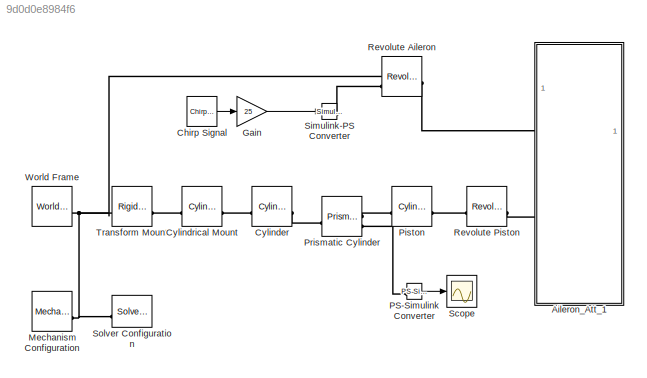
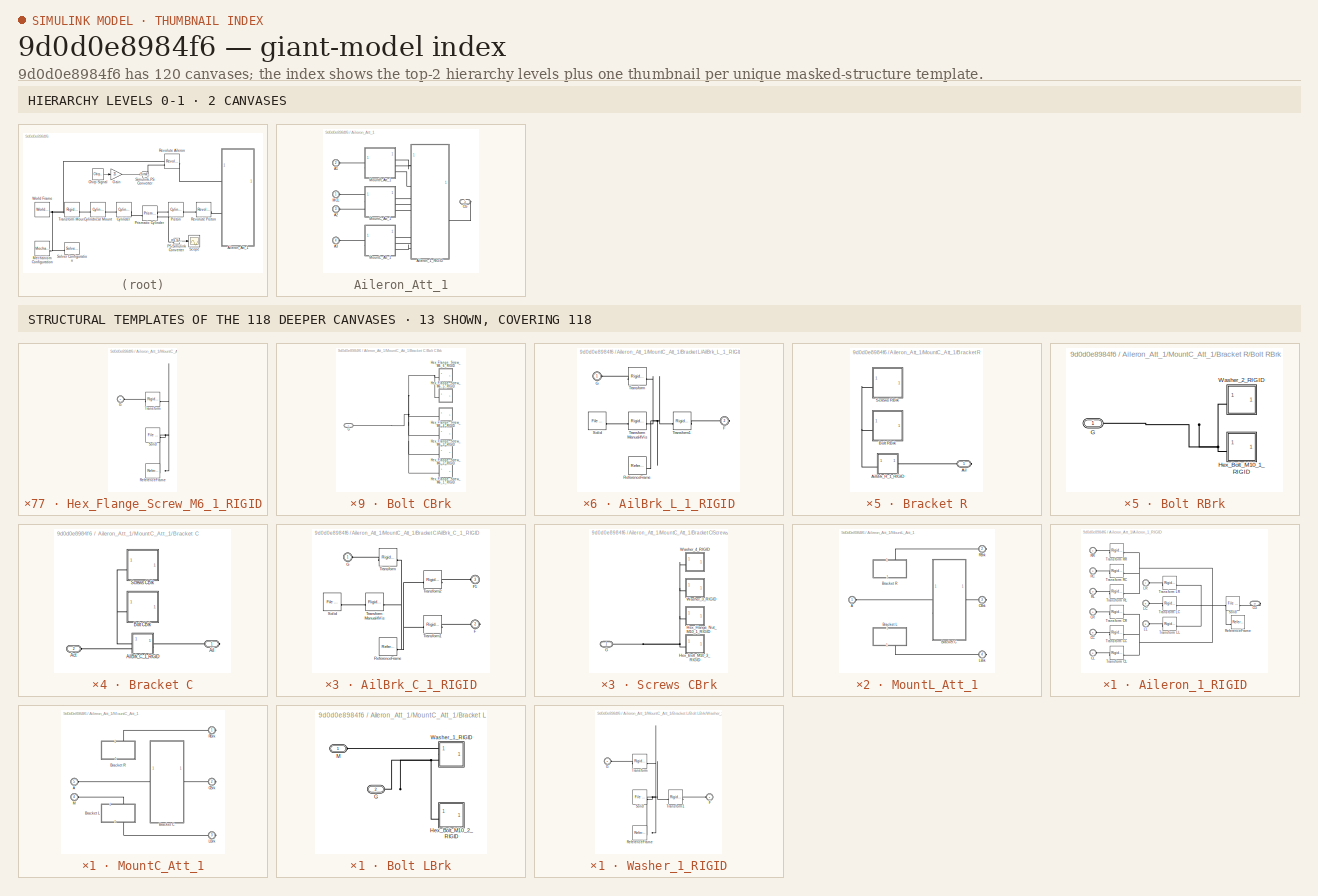
[diagram: thumbnail index - top-2 hierarchy levels (2 canvases) + 13 structural-template representatives of the remaining 118 canvases]
MODEL slx_9d0d0e8984f6
KIND model
CONFIG EnableMultiTasking = on
CONFIG PreLoadFcn = aileronAssembly_DataFile;
CONFIG SolverName = VariableStepAuto
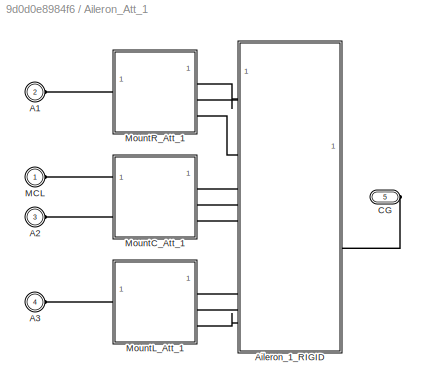
BLOCK [SubSystem] Aileron_Att_1
BLOCK [PMIOPort] Aileron_Att_1/A1
  Port = 2
  Side = Left
BLOCK [PMIOPort] Aileron_Att_1/A2
  Port = 3
  Side = Left
BLOCK [PMIOPort] Aileron_Att_1/A3
  Port = 4
  Side = Left
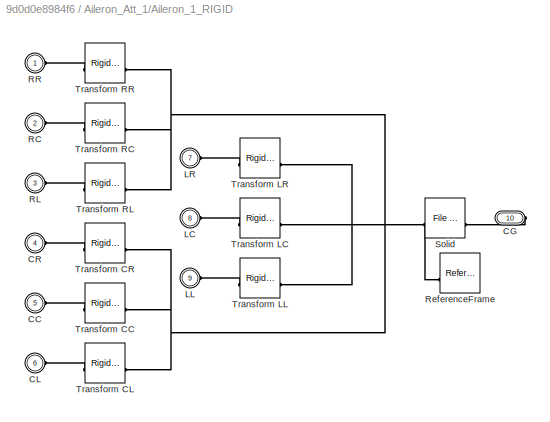
BLOCK [SubSystem] Aileron_Att_1/Aileron_1_RIGID
BLOCK [PMIOPort] Aileron_Att_1/Aileron_1_RIGID/CC
  Port = 5
  Side = Left
BLOCK [PMIOPort] Aileron_Att_1/Aileron_1_RIGID/CG
  Port = 10
  Side = Right
BLOCK [PMIOPort] Aileron_Att_1/Aileron_1_RIGID/CL
  Port = 6
  Side = Left
BLOCK [PMIOPort] Aileron_Att_1/Aileron_1_RIGID/CR
  Port = 4
  Side = Left
BLOCK [PMIOPort] Aileron_Att_1/Aileron_1_RIGID/LC
  Port = 8
  Side = Left
BLOCK [PMIOPort] Aileron_Att_1/Aileron_1_RIGID/LL
  Port = 9
  Side = Left
BLOCK [PMIOPort] Aileron_Att_1/Aileron_1_RIGID/LR
  Port = 7
  Side = Left
BLOCK [PMIOPort] Aileron_Att_1/Aileron_1_RIGID/RC
  Port = 2
  Side = Left
BLOCK [PMIOPort] Aileron_Att_1/Aileron_1_RIGID/RL
  Port = 3
  Side = Left
BLOCK [PMIOPort] Aileron_Att_1/Aileron_1_RIGID/RR
  Side = Left
BLOCK [Reference] Aileron_Att_1/Aileron_1_RIGID/ReferenceFrame  REF=sm_lib/Frames and
Transforms/Reference
Frame
  SourceBlock = sm_lib/Frames and\nTransforms/Reference\nFrame
  SourceType = Reference\nFrame
BLOCK [Reference] Aileron_Att_1/Aileron_1_RIGID/Solid  REF=sm_lib/Body Elements/File Solid
  SourceBlock = sm_lib/Body Elements/File Solid
  SourceType = File Solid
BLOCK [Reference] Aileron_Att_1/Aileron_1_RIGID/Transform CC  REF=sm_lib/Frames and
Transforms/Rigid
Transform
  SourceBlock = sm_lib/Frames and\nTransforms/Rigid\nTransform
  SourceType = Rigid\nTransform
BLOCK [Reference] Aileron_Att_1/Aileron_1_RIGID/Transform CL  REF=sm_lib/Frames and
Transforms/Rigid
Transform
  SourceBlock = sm_lib/Frames and\nTransforms/Rigid\nTransform
  SourceType = Rigid\nTransform
BLOCK [Reference] Aileron_Att_1/Aileron_1_RIGID/Transform CR  REF=sm_lib/Frames and
Transforms/Rigid
Transform
  SourceBlock = sm_lib/Frames and\nTransforms/Rigid\nTransform
  SourceType = Rigid\nTransform
BLOCK [Reference] Aileron_Att_1/Aileron_1_RIGID/Transform LC  REF=sm_lib/Frames and
Transforms/Rigid
Transform
  SourceBlock = sm_lib/Frames and\nTransforms/Rigid\nTransform
  SourceType = Rigid\nTransform
BLOCK [Reference] Aileron_Att_1/Aileron_1_RIGID/Transform LL  REF=sm_lib/Frames and
Transforms/Rigid
Transform
  SourceBlock = sm_lib/Frames and\nTransforms/Rigid\nTransform
  SourceType = Rigid\nTransform
BLOCK [Reference] Aileron_Att_1/Aileron_1_RIGID/Transform LR  REF=sm_lib/Frames and
Transforms/Rigid
Transform
  SourceBlock = sm_lib/Frames and\nTransforms/Rigid\nTransform
  SourceType = Rigid\nTransform
BLOCK [Reference] Aileron_Att_1/Aileron_1_RIGID/Transform RC  REF=sm_lib/Frames and
Transforms/Rigid
Transform
  SourceBlock = sm_lib/Frames and\nTransforms/Rigid\nTransform
  SourceType = Rigid\nTransform
BLOCK [Reference] Aileron_Att_1/Aileron_1_RIGID/Transform RL  REF=sm_lib/Frames and
Transforms/Rigid
Transform
  SourceBlock = sm_lib/Frames and\nTransforms/Rigid\nTransform
  SourceType = Rigid\nTransform
BLOCK [Reference] Aileron_Att_1/Aileron_1_RIGID/Transform RR  REF=sm_lib/Frames and
Transforms/Rigid
Transform
  SourceBlock = sm_lib/Frames and\nTransforms/Rigid\nTransform
  SourceType = Rigid\nTransform
BLOCK [PMIOPort] Aileron_Att_1/CG
  Port = 5
  Side = Right
BLOCK [PMIOPort] Aileron_Att_1/MCL
  Side = Left
BLOCK [SubSystem] Aileron_Att_1/MountC_Att_1
BLOCK [PMIOPort] Aileron_Att_1/MountC_Att_1/A
  NameLocation = top
  Port = 5
  Side = Left
BLOCK [SubSystem] Aileron_Att_1/MountC_Att_1/Bracket C
BLOCK [PMIOPort] Aileron_Att_1/MountC_Att_1/Bracket C/Act
  Port = 2
  Side = Left
BLOCK [PMIOPort] Aileron_Att_1/MountC_Att_1/Bracket C/Ail
  Side = Right
BLOCK [SubSystem] Aileron_Att_1/MountC_Att_1/Bracket C/AilBrk_C_1_RIGID
BLOCK [PMIOPort] Aileron_Att_1/MountC_Att_1/Bracket C/AilBrk_C_1_RIGID/F
  Port = 2
  Side = Right
BLOCK [PMIOPort] Aileron_Att_1/MountC_Att_1/Bracket C/AilBrk_C_1_RIGID/F1
  Port = 3
  Side = Left
BLOCK [PMIOPort] Aileron_Att_1/MountC_Att_1/Bracket C/AilBrk_C_1_RIGID/G
  Side = Left
BLOCK [Reference] Aileron_Att_1/MountC_Att_1/Bracket C/AilBrk_C_1_RIGID/ReferenceFrame  REF=sm_lib/Frames and
Transforms/Reference
Frame
  SourceBlock = sm_lib/Frames and\nTransforms/Reference\nFrame
  SourceType = Reference\nFrame
BLOCK [Reference] Aileron_Att_1/MountC_Att_1/Bracket C/AilBrk_C_1_RIGID/Solid  REF=sm_lib/Body Elements/File Solid
  SourceBlock = sm_lib/Body Elements/File Solid
  SourceType = File Solid
BLOCK [Reference] Aileron_Att_1/MountC_Att_1/Bracket C/AilBrk_C_1_RIGID/Transform  REF=sm_lib/Frames and
Transforms/Rigid
Transform
  SourceBlock = sm_lib/Frames and\nTransforms/Rigid\nTransform
  SourceType = Rigid\nTransform
BLOCK [Reference] Aileron_Att_1/MountC_Att_1/Bracket C/AilBrk_C_1_RIGID/Transform Manual4Vis  REF=sm_lib/Frames and
Transforms/Rigid
Transform
  SourceBlock = sm_lib/Frames and\nTransforms/Rigid\nTransform
  SourceType = Rigid\nTransform
BLOCK [Reference] Aileron_Att_1/MountC_Att_1/Bracket C/AilBrk_C_1_RIGID/Transform1  REF=sm_lib/Frames and
Transforms/Rigid
Transform
  SourceBlock = sm_lib/Frames and\nTransforms/Rigid\nTransform
  SourceType = Rigid\nTransform
BLOCK [Reference] Aileron_Att_1/MountC_Att_1/Bracket C/AilBrk_C_1_RIGID/Transform2  REF=sm_lib/Frames and
Transforms/Rigid
Transform
  SourceBlock = sm_lib/Frames and\nTransforms/Rigid\nTransform
  SourceType = Rigid\nTransform
BLOCK [SubSystem] Aileron_Att_1/MountC_Att_1/Bracket C/Bolt CBrk
BLOCK [PMIOPort] Aileron_Att_1/MountC_Att_1/Bracket C/Bolt CBrk/G
  Side = Left
BLOCK [SubSystem] Aileron_Att_1/MountC_Att_1/Bracket C/Bolt CBrk/Hex_Flange_Screw_M6_1_RIGID
BLOCK [PMIOPort] Aileron_Att_1/MountC_Att_1/Bracket C/Bolt CBrk/Hex_Flange_Screw_M6_1_RIGID/G
  Side = Left
BLOCK [Reference] Aileron_Att_1/MountC_Att_1/Bracket C/Bolt CBrk/Hex_Flange_Screw_M6_1_RIGID/ReferenceFrame  REF=sm_lib/Frames and
Transforms/Reference
Frame
  SourceBlock = sm_lib/Frames and\nTransforms/Reference\nFrame
  SourceType = Reference\nFrame
BLOCK [Reference] Aileron_Att_1/MountC_Att_1/Bracket C/Bolt CBrk/Hex_Flange_Screw_M6_1_RIGID/Solid  REF=sm_lib/Body Elements/File Solid
  SourceBlock = sm_lib/Body Elements/File Solid
  SourceType = File Solid
BLOCK [Reference] Aileron_Att_1/MountC_Att_1/Bracket C/Bolt CBrk/Hex_Flange_Screw_M6_1_RIGID/Transform  REF=sm_lib/Frames and
Transforms/Rigid
Transform
  SourceBlock = sm_lib/Frames and\nTransforms/Rigid\nTransform
  SourceType = Rigid\nTransform
BLOCK [SubSystem] Aileron_Att_1/MountC_Att_1/Bracket C/Bolt CBrk/Hex_Flange_Screw_M6_2_RIGID
BLOCK [PMIOPort] Aileron_Att_1/MountC_Att_1/Bracket C/Bolt CBrk/Hex_Flange_Screw_M6_2_RIGID/G
  Side = Left
BLOCK [Reference] Aileron_Att_1/MountC_Att_1/Bracket C/Bolt CBrk/Hex_Flange_Screw_M6_2_RIGID/ReferenceFrame  REF=sm_lib/Frames and
Transforms/Reference
Frame
  SourceBlock = sm_lib/Frames and\nTransforms/Reference\nFrame
  SourceType = Reference\nFrame
BLOCK [Reference] Aileron_Att_1/MountC_Att_1/Bracket C/Bolt CBrk/Hex_Flange_Screw_M6_2_RIGID/Solid  REF=sm_lib/Body Elements/File Solid
  SourceBlock = sm_lib/Body Elements/File Solid
  SourceType = File Solid
BLOCK [Reference] Aileron_Att_1/MountC_Att_1/Bracket C/Bolt CBrk/Hex_Flange_Screw_M6_2_RIGID/Transform  REF=sm_lib/Frames and
Transforms/Rigid
Transform
  SourceBlock = sm_lib/Frames and\nTransforms/Rigid\nTransform
  SourceType = Rigid\nTransform
BLOCK [SubSystem] Aileron_Att_1/MountC_Att_1/Bracket C/Bolt CBrk/Hex_Flange_Screw_M6_3_RIGID
BLOCK [PMIOPort] Aileron_Att_1/MountC_Att_1/Bracket C/Bolt CBrk/Hex_Flange_Screw_M6_3_RIGID/G
  Side = Left
BLOCK [Reference] Aileron_Att_1/MountC_Att_1/Bracket C/Bolt CBrk/Hex_Flange_Screw_M6_3_RIGID/ReferenceFrame  REF=sm_lib/Frames and
Transforms/Reference
Frame
  SourceBlock = sm_lib/Frames and\nTransforms/Reference\nFrame
  SourceType = Reference\nFrame
BLOCK [Reference] Aileron_Att_1/MountC_Att_1/Bracket C/Bolt CBrk/Hex_Flange_Screw_M6_3_RIGID/Solid  REF=sm_lib/Body Elements/File Solid
  SourceBlock = sm_lib/Body Elements/File Solid
  SourceType = File Solid
BLOCK [Reference] Aileron_Att_1/MountC_Att_1/Bracket C/Bolt CBrk/Hex_Flange_Screw_M6_3_RIGID/Transform  REF=sm_lib/Frames and
Transforms/Rigid
Transform
  SourceBlock = sm_lib/Frames and\nTransforms/Rigid\nTransform
  SourceType = Rigid\nTransform
BLOCK [SubSystem] Aileron_Att_1/MountC_Att_1/Bracket C/Bolt CBrk/Hex_Flange_Screw_M6_4_RIGID
BLOCK [PMIOPort] Aileron_Att_1/MountC_Att_1/Bracket C/Bolt CBrk/Hex_Flange_Screw_M6_4_RIGID/G
  Side = Left
BLOCK [Reference] Aileron_Att_1/MountC_Att_1/Bracket C/Bolt CBrk/Hex_Flange_Screw_M6_4_RIGID/ReferenceFrame  REF=sm_lib/Frames and
Transforms/Reference
Frame
  SourceBlock = sm_lib/Frames and\nTransforms/Reference\nFrame
  SourceType = Reference\nFrame
BLOCK [Reference] Aileron_Att_1/MountC_Att_1/Bracket C/Bolt CBrk/Hex_Flange_Screw_M6_4_RIGID/Solid  REF=sm_lib/Body Elements/File Solid
  SourceBlock = sm_lib/Body Elements/File Solid
  SourceType = File Solid
BLOCK [Reference] Aileron_Att_1/MountC_Att_1/Bracket C/Bolt CBrk/Hex_Flange_Screw_M6_4_RIGID/Transform  REF=sm_lib/Frames and
Transforms/Rigid
Transform
  SourceBlock = sm_lib/Frames and\nTransforms/Rigid\nTransform
  SourceType = Rigid\nTransform
BLOCK [SubSystem] Aileron_Att_1/MountC_Att_1/Bracket C/Bolt CBrk/Hex_Flange_Screw_M6_5_RIGID
BLOCK [PMIOPort] Aileron_Att_1/MountC_Att_1/Bracket C/Bolt CBrk/Hex_Flange_Screw_M6_5_RIGID/G
  Side = Left
BLOCK [Reference] Aileron_Att_1/MountC_Att_1/Bracket C/Bolt CBrk/Hex_Flange_Screw_M6_5_RIGID/ReferenceFrame  REF=sm_lib/Frames and
Transforms/Reference
Frame
  SourceBlock = sm_lib/Frames and\nTransforms/Reference\nFrame
  SourceType = Reference\nFrame
BLOCK [Reference] Aileron_Att_1/MountC_Att_1/Bracket C/Bolt CBrk/Hex_Flange_Screw_M6_5_RIGID/Solid  REF=sm_lib/Body Elements/File Solid
  SourceBlock = sm_lib/Body Elements/File Solid
  SourceType = File Solid
BLOCK [Reference] Aileron_Att_1/MountC_Att_1/Bracket C/Bolt CBrk/Hex_Flange_Screw_M6_5_RIGID/Transform  REF=sm_lib/Frames and
Transforms/Rigid
Transform
  SourceBlock = sm_lib/Frames and\nTransforms/Rigid\nTransform
  SourceType = Rigid\nTransform
BLOCK [SubSystem] Aileron_Att_1/MountC_Att_1/Bracket C/Bolt CBrk/Hex_Flange_Screw_M6_6_RIGID
BLOCK [PMIOPort] Aileron_Att_1/MountC_Att_1/Bracket C/Bolt CBrk/Hex_Flange_Screw_M6_6_RIGID/G
  Side = Left
BLOCK [Reference] Aileron_Att_1/MountC_Att_1/Bracket C/Bolt CBrk/Hex_Flange_Screw_M6_6_RIGID/ReferenceFrame  REF=sm_lib/Frames and
Transforms/Reference
Frame
  SourceBlock = sm_lib/Frames and\nTransforms/Reference\nFrame
  SourceType = Reference\nFrame
BLOCK [Reference] Aileron_Att_1/MountC_Att_1/Bracket C/Bolt CBrk/Hex_Flange_Screw_M6_6_RIGID/Solid  REF=sm_lib/Body Elements/File Solid
  SourceBlock = sm_lib/Body Elements/File Solid
  SourceType = File Solid
BLOCK [Reference] Aileron_Att_1/MountC_Att_1/Bracket C/Bolt CBrk/Hex_Flange_Screw_M6_6_RIGID/Transform  REF=sm_lib/Frames and
Transforms/Rigid
Transform
  SourceBlock = sm_lib/Frames and\nTransforms/Rigid\nTransform
  SourceType = Rigid\nTransform
BLOCK [SubSystem] Aileron_Att_1/MountC_Att_1/Bracket C/Screws CBrk
BLOCK [PMIOPort] Aileron_Att_1/MountC_Att_1/Bracket C/Screws CBrk/G
  Side = Left
BLOCK [SubSystem] Aileron_Att_1/MountC_Att_1/Bracket C/Screws CBrk/Hex_Bolt_M10_3_RIGID
BLOCK [PMIOPort] Aileron_Att_1/MountC_Att_1/Bracket C/Screws CBrk/Hex_Bolt_M10_3_RIGID/G
  Side = Left
BLOCK [Reference] Aileron_Att_1/MountC_Att_1/Bracket C/Screws CBrk/Hex_Bolt_M10_3_RIGID/ReferenceFrame  REF=sm_lib/Frames and
Transforms/Reference
Frame
  SourceBlock = sm_lib/Frames and\nTransforms/Reference\nFrame
  SourceType = Reference\nFrame
BLOCK [Reference] Aileron_Att_1/MountC_Att_1/Bracket C/Screws CBrk/Hex_Bolt_M10_3_RIGID/Solid  REF=sm_lib/Body Elements/File Solid
  SourceBlock = sm_lib/Body Elements/File Solid
  SourceType = File Solid
BLOCK [Reference] Aileron_Att_1/MountC_Att_1/Bracket C/Screws CBrk/Hex_Bolt_M10_3_RIGID/Transform  REF=sm_lib/Frames and
Transforms/Rigid
Transform
  SourceBlock = sm_lib/Frames and\nTransforms/Rigid\nTransform
  SourceType = Rigid\nTransform
BLOCK [SubSystem] Aileron_Att_1/MountC_Att_1/Bracket C/Screws CBrk/Hex_Flange_Nut_M10_1_RIGID
BLOCK [PMIOPort] Aileron_Att_1/MountC_Att_1/Bracket C/Screws CBrk/Hex_Flange_Nut_M10_1_RIGID/G
  Side = Left
BLOCK [Reference] Aileron_Att_1/MountC_Att_1/Bracket C/Screws CBrk/Hex_Flange_Nut_M10_1_RIGID/ReferenceFrame  REF=sm_lib/Frames and
Transforms/Reference
Frame
  SourceBlock = sm_lib/Frames and\nTransforms/Reference\nFrame
  SourceType = Reference\nFrame
BLOCK [Reference] Aileron_Att_1/MountC_Att_1/Bracket C/Screws CBrk/Hex_Flange_Nut_M10_1_RIGID/Solid  REF=sm_lib/Body Elements/File Solid
  SourceBlock = sm_lib/Body Elements/File Solid
  SourceType = File Solid
BLOCK [Reference] Aileron_Att_1/MountC_Att_1/Bracket C/Screws CBrk/Hex_Flange_Nut_M10_1_RIGID/Transform  REF=sm_lib/Frames and
Transforms/Rigid
Transform
  SourceBlock = sm_lib/Frames and\nTransforms/Rigid\nTransform
  SourceType = Rigid\nTransform
BLOCK [SubSystem] Aileron_Att_1/MountC_Att_1/Bracket C/Screws CBrk/Washer_3_RIGID
BLOCK [PMIOPort] Aileron_Att_1/MountC_Att_1/Bracket C/Screws CBrk/Washer_3_RIGID/G
  Side = Left
BLOCK [Reference] Aileron_Att_1/MountC_Att_1/Bracket C/Screws CBrk/Washer_3_RIGID/ReferenceFrame  REF=sm_lib/Frames and
Transforms/Reference
Frame
  SourceBlock = sm_lib/Frames and\nTransforms/Reference\nFrame
  SourceType = Reference\nFrame
BLOCK [Reference] Aileron_Att_1/MountC_Att_1/Bracket C/Screws CBrk/Washer_3_RIGID/Solid  REF=sm_lib/Body Elements/File Solid
  SourceBlock = sm_lib/Body Elements/File Solid
  SourceType = File Solid
BLOCK [Reference] Aileron_Att_1/MountC_Att_1/Bracket C/Screws CBrk/Washer_3_RIGID/Transform  REF=sm_lib/Frames and
Transforms/Rigid
Transform
  SourceBlock = sm_lib/Frames and\nTransforms/Rigid\nTransform
  SourceType = Rigid\nTransform
BLOCK [SubSystem] Aileron_Att_1/MountC_Att_1/Bracket C/Screws CBrk/Washer_4_RIGID
BLOCK [PMIOPort] Aileron_Att_1/MountC_Att_1/Bracket C/Screws CBrk/Washer_4_RIGID/G
  Side = Left
BLOCK [Reference] Aileron_Att_1/MountC_Att_1/Bracket C/Screws CBrk/Washer_4_RIGID/ReferenceFrame  REF=sm_lib/Frames and
Transforms/Reference
Frame
  SourceBlock = sm_lib/Frames and\nTransforms/Reference\nFrame
  SourceType = Reference\nFrame
BLOCK [Reference] Aileron_Att_1/MountC_Att_1/Bracket C/Screws CBrk/Washer_4_RIGID/Solid  REF=sm_lib/Body Elements/File Solid
  SourceBlock = sm_lib/Body Elements/File Solid
  SourceType = File Solid
BLOCK [Reference] Aileron_Att_1/MountC_Att_1/Bracket C/Screws CBrk/Washer_4_RIGID/Transform  REF=sm_lib/Frames and
Transforms/Rigid
Transform
  SourceBlock = sm_lib/Frames and\nTransforms/Rigid\nTransform
  SourceType = Rigid\nTransform
BLOCK [SubSystem] Aileron_Att_1/MountC_Att_1/Bracket L
  NameLocation = left
BLOCK [PMIOPort] Aileron_Att_1/MountC_Att_1/Bracket L/Ail
  Port = 2
  Side = Right
BLOCK [SubSystem] Aileron_Att_1/MountC_Att_1/Bracket L/AilBrk_L_1_RIGID
BLOCK [PMIOPort] Aileron_Att_1/MountC_Att_1/Bracket L/AilBrk_L_1_RIGID/F
  Port = 2
  Side = Right
BLOCK [PMIOPort] Aileron_Att_1/MountC_Att_1/Bracket L/AilBrk_L_1_RIGID/G
  Side = Left
BLOCK [Reference] Aileron_Att_1/MountC_Att_1/Bracket L/AilBrk_L_1_RIGID/ReferenceFrame  REF=sm_lib/Frames and
Transforms/Reference
Frame
  SourceBlock = sm_lib/Frames and\nTransforms/Reference\nFrame
  SourceType = Reference\nFrame
BLOCK [Reference] Aileron_Att_1/MountC_Att_1/Bracket L/AilBrk_L_1_RIGID/Solid  REF=sm_lib/Body Elements/File Solid
  SourceBlock = sm_lib/Body Elements/File Solid
  SourceType = File Solid
BLOCK [Reference] Aileron_Att_1/MountC_Att_1/Bracket L/AilBrk_L_1_RIGID/Transform  REF=sm_lib/Frames and
Transforms/Rigid
Transform
  SourceBlock = sm_lib/Frames and\nTransforms/Rigid\nTransform
  SourceType = Rigid\nTransform
BLOCK [Reference] Aileron_Att_1/MountC_Att_1/Bracket L/AilBrk_L_1_RIGID/Transform Manual4Vis  REF=sm_lib/Frames and
Transforms/Rigid
Transform
  SourceBlock = sm_lib/Frames and\nTransforms/Rigid\nTransform
  SourceType = Rigid\nTransform
BLOCK [Reference] Aileron_Att_1/MountC_Att_1/Bracket L/AilBrk_L_1_RIGID/Transform1  REF=sm_lib/Frames and
Transforms/Rigid
Transform
  SourceBlock = sm_lib/Frames and\nTransforms/Rigid\nTransform
  SourceType = Rigid\nTransform
BLOCK [SubSystem] Aileron_Att_1/MountC_Att_1/Bracket L/Bolt LBrk
BLOCK [PMIOPort] Aileron_Att_1/MountC_Att_1/Bracket L/Bolt LBrk/G
  Port = 2
  Side = Left
BLOCK [SubSystem] Aileron_Att_1/MountC_Att_1/Bracket L/Bolt LBrk/Hex_Bolt_M10_2_RIGID
BLOCK [PMIOPort] Aileron_Att_1/MountC_Att_1/Bracket L/Bolt LBrk/Hex_Bolt_M10_2_RIGID/G
  Side = Left
BLOCK [Reference] Aileron_Att_1/MountC_Att_1/Bracket L/Bolt LBrk/Hex_Bolt_M10_2_RIGID/ReferenceFrame  REF=sm_lib/Frames and
Transforms/Reference
Frame
  SourceBlock = sm_lib/Frames and\nTransforms/Reference\nFrame
  SourceType = Reference\nFrame
BLOCK [Reference] Aileron_Att_1/MountC_Att_1/Bracket L/Bolt LBrk/Hex_Bolt_M10_2_RIGID/Solid  REF=sm_lib/Body Elements/File Solid
  SourceBlock = sm_lib/Body Elements/File Solid
  SourceType = File Solid
BLOCK [Reference] Aileron_Att_1/MountC_Att_1/Bracket L/Bolt LBrk/Hex_Bolt_M10_2_RIGID/Transform  REF=sm_lib/Frames and
Transforms/Rigid
Transform
  SourceBlock = sm_lib/Frames and\nTransforms/Rigid\nTransform
  SourceType = Rigid\nTransform
BLOCK [PMIOPort] Aileron_Att_1/MountC_Att_1/Bracket L/Bolt LBrk/M
  Side = Left
BLOCK [SubSystem] Aileron_Att_1/MountC_Att_1/Bracket L/Bolt LBrk/Washer_1_RIGID
BLOCK [PMIOPort] Aileron_Att_1/MountC_Att_1/Bracket L/Bolt LBrk/Washer_1_RIGID/F
  Side = Left
BLOCK [PMIOPort] Aileron_Att_1/MountC_Att_1/Bracket L/Bolt LBrk/Washer_1_RIGID/G
  Port = 2
  Side = Left
BLOCK [Reference] Aileron_Att_1/MountC_Att_1/Bracket L/Bolt LBrk/Washer_1_RIGID/ReferenceFrame  REF=sm_lib/Frames and
Transforms/Reference
Frame
  SourceBlock = sm_lib/Frames and\nTransforms/Reference\nFrame
  SourceType = Reference\nFrame
BLOCK [Reference] Aileron_Att_1/MountC_Att_1/Bracket L/Bolt LBrk/Washer_1_RIGID/Solid  REF=sm_lib/Body Elements/File Solid
  SourceBlock = sm_lib/Body Elements/File Solid
  SourceType = File Solid
BLOCK [Reference] Aileron_Att_1/MountC_Att_1/Bracket L/Bolt LBrk/Washer_1_RIGID/Transform  REF=sm_lib/Frames and
Transforms/Rigid
Transform
  SourceBlock = sm_lib/Frames and\nTransforms/Rigid\nTransform
  SourceType = Rigid\nTransform
BLOCK [Reference] Aileron_Att_1/MountC_Att_1/Bracket L/Bolt LBrk/Washer_1_RIGID/Transform1  REF=sm_lib/Frames and
Transforms/Rigid
Transform
  SourceBlock = sm_lib/Frames and\nTransforms/Rigid\nTransform
  SourceType = Rigid\nTransform
BLOCK [PMIOPort] Aileron_Att_1/MountC_Att_1/Bracket L/M
  Side = Left
BLOCK [SubSystem] Aileron_Att_1/MountC_Att_1/Bracket L/Screws LBrk
BLOCK [PMIOPort] Aileron_Att_1/MountC_Att_1/Bracket L/Screws LBrk/G
  Side = Left
BLOCK [SubSystem] Aileron_Att_1/MountC_Att_1/Bracket L/Screws LBrk/Oval_Head_M4_12_RIGID
BLOCK [PMIOPort] Aileron_Att_1/MountC_Att_1/Bracket L/Screws LBrk/Oval_Head_M4_12_RIGID/G
  Side = Left
BLOCK [Reference] Aileron_Att_1/MountC_Att_1/Bracket L/Screws LBrk/Oval_Head_M4_12_RIGID/ReferenceFrame  REF=sm_lib/Frames and
Transforms/Reference
Frame
  SourceBlock = sm_lib/Frames and\nTransforms/Reference\nFrame
  SourceType = Reference\nFrame
BLOCK [Reference] Aileron_Att_1/MountC_Att_1/Bracket L/Screws LBrk/Oval_Head_M4_12_RIGID/Solid  REF=sm_lib/Body Elements/File Solid
  SourceBlock = sm_lib/Body Elements/File Solid
  SourceType = File Solid
BLOCK [Reference] Aileron_Att_1/MountC_Att_1/Bracket L/Screws LBrk/Oval_Head_M4_12_RIGID/Transform  REF=sm_lib/Frames and
Transforms/Rigid
Transform
  SourceBlock = sm_lib/Frames and\nTransforms/Rigid\nTransform
  SourceType = Rigid\nTransform
BLOCK [SubSystem] Aileron_Att_1/MountC_Att_1/Bracket L/Screws LBrk/Oval_Head_M4_1_RIGID
BLOCK [PMIOPort] Aileron_Att_1/MountC_Att_1/Bracket L/Screws LBrk/Oval_Head_M4_1_RIGID/G
  Side = Left
BLOCK [Reference] Aileron_Att_1/MountC_Att_1/Bracket L/Screws LBrk/Oval_Head_M4_1_RIGID/ReferenceFrame  REF=sm_lib/Frames and
Transforms/Reference
Frame
  SourceBlock = sm_lib/Frames and\nTransforms/Reference\nFrame
  SourceType = Reference\nFrame
BLOCK [Reference] Aileron_Att_1/MountC_Att_1/Bracket L/Screws LBrk/Oval_Head_M4_1_RIGID/Solid  REF=sm_lib/Body Elements/File Solid
  SourceBlock = sm_lib/Body Elements/File Solid
  SourceType = File Solid
BLOCK [Reference] Aileron_Att_1/MountC_Att_1/Bracket L/Screws LBrk/Oval_Head_M4_1_RIGID/Transform  REF=sm_lib/Frames and
Transforms/Rigid
Transform
  SourceBlock = sm_lib/Frames and\nTransforms/Rigid\nTransform
  SourceType = Rigid\nTransform
BLOCK [SubSystem] Aileron_Att_1/MountC_Att_1/Bracket L/Screws LBrk/Oval_Head_M4_4_RIGID
BLOCK [PMIOPort] Aileron_Att_1/MountC_Att_1/Bracket L/Screws LBrk/Oval_Head_M4_4_RIGID/G
  Side = Left
BLOCK [Reference] Aileron_Att_1/MountC_Att_1/Bracket L/Screws LBrk/Oval_Head_M4_4_RIGID/ReferenceFrame  REF=sm_lib/Frames and
Transforms/Reference
Frame
  SourceBlock = sm_lib/Frames and\nTransforms/Reference\nFrame
  SourceType = Reference\nFrame
BLOCK [Reference] Aileron_Att_1/MountC_Att_1/Bracket L/Screws LBrk/Oval_Head_M4_4_RIGID/Solid  REF=sm_lib/Body Elements/File Solid
  SourceBlock = sm_lib/Body Elements/File Solid
  SourceType = File Solid
BLOCK [Reference] Aileron_Att_1/MountC_Att_1/Bracket L/Screws LBrk/Oval_Head_M4_4_RIGID/Transform  REF=sm_lib/Frames and
Transforms/Rigid
Transform
  SourceBlock = sm_lib/Frames and\nTransforms/Rigid\nTransform
  SourceType = Rigid\nTransform
BLOCK [SubSystem] Aileron_Att_1/MountC_Att_1/Bracket L/Screws LBrk/Oval_Head_M4_5_RIGID
BLOCK [PMIOPort] Aileron_Att_1/MountC_Att_1/Bracket L/Screws LBrk/Oval_Head_M4_5_RIGID/G
  Side = Left
BLOCK [Reference] Aileron_Att_1/MountC_Att_1/Bracket L/Screws LBrk/Oval_Head_M4_5_RIGID/ReferenceFrame  REF=sm_lib/Frames and
Transforms/Reference
Frame
  SourceBlock = sm_lib/Frames and\nTransforms/Reference\nFrame
  SourceType = Reference\nFrame
BLOCK [Reference] Aileron_Att_1/MountC_Att_1/Bracket L/Screws LBrk/Oval_Head_M4_5_RIGID/Solid  REF=sm_lib/Body Elements/File Solid
  SourceBlock = sm_lib/Body Elements/File Solid
  SourceType = File Solid
BLOCK [Reference] Aileron_Att_1/MountC_Att_1/Bracket L/Screws LBrk/Oval_Head_M4_5_RIGID/Transform  REF=sm_lib/Frames and
Transforms/Rigid
Transform
  SourceBlock = sm_lib/Frames and\nTransforms/Rigid\nTransform
  SourceType = Rigid\nTransform
BLOCK [SubSystem] Aileron_Att_1/MountC_Att_1/Bracket L/Screws LBrk/Oval_Head_M4_6_RIGID
BLOCK [PMIOPort] Aileron_Att_1/MountC_Att_1/Bracket L/Screws LBrk/Oval_Head_M4_6_RIGID/G
  Side = Left
BLOCK [Reference] Aileron_Att_1/MountC_Att_1/Bracket L/Screws LBrk/Oval_Head_M4_6_RIGID/ReferenceFrame  REF=sm_lib/Frames and
Transforms/Reference
Frame
  SourceBlock = sm_lib/Frames and\nTransforms/Reference\nFrame
  SourceType = Reference\nFrame
BLOCK [Reference] Aileron_Att_1/MountC_Att_1/Bracket L/Screws LBrk/Oval_Head_M4_6_RIGID/Solid  REF=sm_lib/Body Elements/File Solid
  SourceBlock = sm_lib/Body Elements/File Solid
  SourceType = File Solid
BLOCK [Reference] Aileron_Att_1/MountC_Att_1/Bracket L/Screws LBrk/Oval_Head_M4_6_RIGID/Transform  REF=sm_lib/Frames and
Transforms/Rigid
Transform
  SourceBlock = sm_lib/Frames and\nTransforms/Rigid\nTransform
  SourceType = Rigid\nTransform
BLOCK [SubSystem] Aileron_Att_1/MountC_Att_1/Bracket L/Screws LBrk/Oval_Head_M4_8_RIGID
BLOCK [PMIOPort] Aileron_Att_1/MountC_Att_1/Bracket L/Screws LBrk/Oval_Head_M4_8_RIGID/G
  Side = Left
BLOCK [Reference] Aileron_Att_1/MountC_Att_1/Bracket L/Screws LBrk/Oval_Head_M4_8_RIGID/ReferenceFrame  REF=sm_lib/Frames and
Transforms/Reference
Frame
  SourceBlock = sm_lib/Frames and\nTransforms/Reference\nFrame
  SourceType = Reference\nFrame
BLOCK [Reference] Aileron_Att_1/MountC_Att_1/Bracket L/Screws LBrk/Oval_Head_M4_8_RIGID/Solid  REF=sm_lib/Body Elements/File Solid
  SourceBlock = sm_lib/Body Elements/File Solid
  SourceType = File Solid
BLOCK [Reference] Aileron_Att_1/MountC_Att_1/Bracket L/Screws LBrk/Oval_Head_M4_8_RIGID/Transform  REF=sm_lib/Frames and
Transforms/Rigid
Transform
  SourceBlock = sm_lib/Frames and\nTransforms/Rigid\nTransform
  SourceType = Rigid\nTransform
BLOCK [SubSystem] Aileron_Att_1/MountC_Att_1/Bracket R
  NameLocation = left
BLOCK [PMIOPort] Aileron_Att_1/MountC_Att_1/Bracket R/Ail
  Side = Right
BLOCK [SubSystem] Aileron_Att_1/MountC_Att_1/Bracket R/AilBrk_R_1_RIGID
BLOCK [PMIOPort] Aileron_Att_1/MountC_Att_1/Bracket R/AilBrk_R_1_RIGID/F
  Port = 2
  Side = Right
BLOCK [PMIOPort] Aileron_Att_1/MountC_Att_1/Bracket R/AilBrk_R_1_RIGID/G
  Side = Left
BLOCK [Reference] Aileron_Att_1/MountC_Att_1/Bracket R/AilBrk_R_1_RIGID/ReferenceFrame  REF=sm_lib/Frames and
Transforms/Reference
Frame
  SourceBlock = sm_lib/Frames and\nTransforms/Reference\nFrame
  SourceType = Reference\nFrame
BLOCK [Reference] Aileron_Att_1/MountC_Att_1/Bracket R/AilBrk_R_1_RIGID/Solid  REF=sm_lib/Body Elements/File Solid
  SourceBlock = sm_lib/Body Elements/File Solid
  SourceType = File Solid
BLOCK [Reference] Aileron_Att_1/MountC_Att_1/Bracket R/AilBrk_R_1_RIGID/Transform  REF=sm_lib/Frames and
Transforms/Rigid
Transform
  SourceBlock = sm_lib/Frames and\nTransforms/Rigid\nTransform
  SourceType = Rigid\nTransform
BLOCK [Reference] Aileron_Att_1/MountC_Att_1/Bracket R/AilBrk_R_1_RIGID/Transform Manual4Vis  REF=sm_lib/Frames and
Transforms/Rigid
Transform
  SourceBlock = sm_lib/Frames and\nTransforms/Rigid\nTransform
  SourceType = Rigid\nTransform
BLOCK [Reference] Aileron_Att_1/MountC_Att_1/Bracket R/AilBrk_R_1_RIGID/Transform1  REF=sm_lib/Frames and
Transforms/Rigid
Transform
  SourceBlock = sm_lib/Frames and\nTransforms/Rigid\nTransform
  SourceType = Rigid\nTransform
BLOCK [SubSystem] Aileron_Att_1/MountC_Att_1/Bracket R/Bolt RBrk
BLOCK [PMIOPort] Aileron_Att_1/MountC_Att_1/Bracket R/Bolt RBrk/G
  Side = Left
BLOCK [SubSystem] Aileron_Att_1/MountC_Att_1/Bracket R/Bolt RBrk/Hex_Bolt_M10_1_RIGID
BLOCK [PMIOPort] Aileron_Att_1/MountC_Att_1/Bracket R/Bolt RBrk/Hex_Bolt_M10_1_RIGID/G
  Side = Left
BLOCK [Reference] Aileron_Att_1/MountC_Att_1/Bracket R/Bolt RBrk/Hex_Bolt_M10_1_RIGID/ReferenceFrame  REF=sm_lib/Frames and
Transforms/Reference
Frame
  SourceBlock = sm_lib/Frames and\nTransforms/Reference\nFrame
  SourceType = Reference\nFrame
BLOCK [Reference] Aileron_Att_1/MountC_Att_1/Bracket R/Bolt RBrk/Hex_Bolt_M10_1_RIGID/Solid  REF=sm_lib/Body Elements/File Solid
  SourceBlock = sm_lib/Body Elements/File Solid
  SourceType = File Solid
BLOCK [Reference] Aileron_Att_1/MountC_Att_1/Bracket R/Bolt RBrk/Hex_Bolt_M10_1_RIGID/Transform  REF=sm_lib/Frames and
Transforms/Rigid
Transform
  SourceBlock = sm_lib/Frames and\nTransforms/Rigid\nTransform
  SourceType = Rigid\nTransform
BLOCK [SubSystem] Aileron_Att_1/MountC_Att_1/Bracket R/Bolt RBrk/Washer_2_RIGID
BLOCK [PMIOPort] Aileron_Att_1/MountC_Att_1/Bracket R/Bolt RBrk/Washer_2_RIGID/G
  Side = Left
BLOCK [Reference] Aileron_Att_1/MountC_Att_1/Bracket R/Bolt RBrk/Washer_2_RIGID/ReferenceFrame  REF=sm_lib/Frames and
Transforms/Reference
Frame
  SourceBlock = sm_lib/Frames and\nTransforms/Reference\nFrame
  SourceType = Reference\nFrame
BLOCK [Reference] Aileron_Att_1/MountC_Att_1/Bracket R/Bolt RBrk/Washer_2_RIGID/Solid  REF=sm_lib/Body Elements/File Solid
  SourceBlock = sm_lib/Body Elements/File Solid
  SourceType = File Solid
BLOCK [Reference] Aileron_Att_1/MountC_Att_1/Bracket R/Bolt RBrk/Washer_2_RIGID/Transform  REF=sm_lib/Frames and
Transforms/Rigid
Transform
  SourceBlock = sm_lib/Frames and\nTransforms/Rigid\nTransform
  SourceType = Rigid\nTransform
BLOCK [SubSystem] Aileron_Att_1/MountC_Att_1/Bracket R/Screws RBrk
BLOCK [PMIOPort] Aileron_Att_1/MountC_Att_1/Bracket R/Screws RBrk/G
  Side = Left
BLOCK [SubSystem] Aileron_Att_1/MountC_Att_1/Bracket R/Screws RBrk/Oval_Head_M4_10_RIGID
BLOCK [PMIOPort] Aileron_Att_1/MountC_Att_1/Bracket R/Screws RBrk/Oval_Head_M4_10_RIGID/G
  Side = Left
BLOCK [Reference] Aileron_Att_1/MountC_Att_1/Bracket R/Screws RBrk/Oval_Head_M4_10_RIGID/ReferenceFrame  REF=sm_lib/Frames and
Transforms/Reference
Frame
  SourceBlock = sm_lib/Frames and\nTransforms/Reference\nFrame
  SourceType = Reference\nFrame
BLOCK [Reference] Aileron_Att_1/MountC_Att_1/Bracket R/Screws RBrk/Oval_Head_M4_10_RIGID/Solid  REF=sm_lib/Body Elements/File Solid
  SourceBlock = sm_lib/Body Elements/File Solid
  SourceType = File Solid
BLOCK [Reference] Aileron_Att_1/MountC_Att_1/Bracket R/Screws RBrk/Oval_Head_M4_10_RIGID/Transform  REF=sm_lib/Frames and
Transforms/Rigid
Transform
  SourceBlock = sm_lib/Frames and\nTransforms/Rigid\nTransform
  SourceType = Rigid\nTransform
BLOCK [SubSystem] Aileron_Att_1/MountC_Att_1/Bracket R/Screws RBrk/Oval_Head_M4_11_RIGID
BLOCK [PMIOPort] Aileron_Att_1/MountC_Att_1/Bracket R/Screws RBrk/Oval_Head_M4_11_RIGID/G
  Side = Left
BLOCK [Reference] Aileron_Att_1/MountC_Att_1/Bracket R/Screws RBrk/Oval_Head_M4_11_RIGID/ReferenceFrame  REF=sm_lib/Frames and
Transforms/Reference
Frame
  SourceBlock = sm_lib/Frames and\nTransforms/Reference\nFrame
  SourceType = Reference\nFrame
BLOCK [Reference] Aileron_Att_1/MountC_Att_1/Bracket R/Screws RBrk/Oval_Head_M4_11_RIGID/Solid  REF=sm_lib/Body Elements/File Solid
  SourceBlock = sm_lib/Body Elements/File Solid
  SourceType = File Solid
BLOCK [Reference] Aileron_Att_1/MountC_Att_1/Bracket R/Screws RBrk/Oval_Head_M4_11_RIGID/Transform  REF=sm_lib/Frames and
Transforms/Rigid
Transform
  SourceBlock = sm_lib/Frames and\nTransforms/Rigid\nTransform
  SourceType = Rigid\nTransform
BLOCK [SubSystem] Aileron_Att_1/MountC_Att_1/Bracket R/Screws RBrk/Oval_Head_M4_2_RIGID
BLOCK [PMIOPort] Aileron_Att_1/MountC_Att_1/Bracket R/Screws RBrk/Oval_Head_M4_2_RIGID/G
  Side = Left
BLOCK [Reference] Aileron_Att_1/MountC_Att_1/Bracket R/Screws RBrk/Oval_Head_M4_2_RIGID/ReferenceFrame  REF=sm_lib/Frames and
Transforms/Reference
Frame
  SourceBlock = sm_lib/Frames and\nTransforms/Reference\nFrame
  SourceType = Reference\nFrame
BLOCK [Reference] Aileron_Att_1/MountC_Att_1/Bracket R/Screws RBrk/Oval_Head_M4_2_RIGID/Solid  REF=sm_lib/Body Elements/File Solid
  SourceBlock = sm_lib/Body Elements/File Solid
  SourceType = File Solid
BLOCK [Reference] Aileron_Att_1/MountC_Att_1/Bracket R/Screws RBrk/Oval_Head_M4_2_RIGID/Transform  REF=sm_lib/Frames and
Transforms/Rigid
Transform
  SourceBlock = sm_lib/Frames and\nTransforms/Rigid\nTransform
  SourceType = Rigid\nTransform
BLOCK [SubSystem] Aileron_Att_1/MountC_Att_1/Bracket R/Screws RBrk/Oval_Head_M4_3_RIGID
BLOCK [PMIOPort] Aileron_Att_1/MountC_Att_1/Bracket R/Screws RBrk/Oval_Head_M4_3_RIGID/G
  Side = Left
BLOCK [Reference] Aileron_Att_1/MountC_Att_1/Bracket R/Screws RBrk/Oval_Head_M4_3_RIGID/ReferenceFrame  REF=sm_lib/Frames and
Transforms/Reference
Frame
  SourceBlock = sm_lib/Frames and\nTransforms/Reference\nFrame
  SourceType = Reference\nFrame
BLOCK [Reference] Aileron_Att_1/MountC_Att_1/Bracket R/Screws RBrk/Oval_Head_M4_3_RIGID/Solid  REF=sm_lib/Body Elements/File Solid
  SourceBlock = sm_lib/Body Elements/File Solid
  SourceType = File Solid
BLOCK [Reference] Aileron_Att_1/MountC_Att_1/Bracket R/Screws RBrk/Oval_Head_M4_3_RIGID/Transform  REF=sm_lib/Frames and
Transforms/Rigid
Transform
  SourceBlock = sm_lib/Frames and\nTransforms/Rigid\nTransform
  SourceType = Rigid\nTransform
BLOCK [SubSystem] Aileron_Att_1/MountC_Att_1/Bracket R/Screws RBrk/Oval_Head_M4_7_RIGID
BLOCK [PMIOPort] Aileron_Att_1/MountC_Att_1/Bracket R/Screws RBrk/Oval_Head_M4_7_RIGID/G
  Side = Left
BLOCK [Reference] Aileron_Att_1/MountC_Att_1/Bracket R/Screws RBrk/Oval_Head_M4_7_RIGID/ReferenceFrame  REF=sm_lib/Frames and
Transforms/Reference
Frame
  SourceBlock = sm_lib/Frames and\nTransforms/Reference\nFrame
  SourceType = Reference\nFrame
BLOCK [Reference] Aileron_Att_1/MountC_Att_1/Bracket R/Screws RBrk/Oval_Head_M4_7_RIGID/Solid  REF=sm_lib/Body Elements/File Solid
  SourceBlock = sm_lib/Body Elements/File Solid
  SourceType = File Solid
BLOCK [Reference] Aileron_Att_1/MountC_Att_1/Bracket R/Screws RBrk/Oval_Head_M4_7_RIGID/Transform  REF=sm_lib/Frames and
Transforms/Rigid
Transform
  SourceBlock = sm_lib/Frames and\nTransforms/Rigid\nTransform
  SourceType = Rigid\nTransform
BLOCK [SubSystem] Aileron_Att_1/MountC_Att_1/Bracket R/Screws RBrk/Oval_Head_M4_9_RIGID
BLOCK [PMIOPort] Aileron_Att_1/MountC_Att_1/Bracket R/Screws RBrk/Oval_Head_M4_9_RIGID/G
  Side = Left
BLOCK [Reference] Aileron_Att_1/MountC_Att_1/Bracket R/Screws RBrk/Oval_Head_M4_9_RIGID/ReferenceFrame  REF=sm_lib/Frames and
Transforms/Reference
Frame
  SourceBlock = sm_lib/Frames and\nTransforms/Reference\nFrame
  SourceType = Reference\nFrame
BLOCK [Reference] Aileron_Att_1/MountC_Att_1/Bracket R/Screws RBrk/Oval_Head_M4_9_RIGID/Solid  REF=sm_lib/Body Elements/File Solid
  SourceBlock = sm_lib/Body Elements/File Solid
  SourceType = File Solid
BLOCK [Reference] Aileron_Att_1/MountC_Att_1/Bracket R/Screws RBrk/Oval_Head_M4_9_RIGID/Transform  REF=sm_lib/Frames and
Transforms/Rigid
Transform
  SourceBlock = sm_lib/Frames and\nTransforms/Rigid\nTransform
  SourceType = Rigid\nTransform
BLOCK [PMIOPort] Aileron_Att_1/MountC_Att_1/CBrk
  Port = 2
  Side = Right
BLOCK [PMIOPort] Aileron_Att_1/MountC_Att_1/LBrk
  Port = 3
  Side = Right
BLOCK [PMIOPort] Aileron_Att_1/MountC_Att_1/M
  Port = 4
  Side = Left
BLOCK [PMIOPort] Aileron_Att_1/MountC_Att_1/RBrk
  Side = Right
BLOCK [SubSystem] Aileron_Att_1/MountL_Att_1
BLOCK [PMIOPort] Aileron_Att_1/MountL_Att_1/A
  Side = Left
BLOCK [SubSystem] Aileron_Att_1/MountL_Att_1/Bracket C
BLOCK [PMIOPort] Aileron_Att_1/MountL_Att_1/Bracket C/Act
  Port = 2
  Side = Left
BLOCK [PMIOPort] Aileron_Att_1/MountL_Att_1/Bracket C/Ail
  Side = Right
BLOCK [SubSystem] Aileron_Att_1/MountL_Att_1/Bracket C/AilBrk_C_1_RIGID
BLOCK [PMIOPort] Aileron_Att_1/MountL_Att_1/Bracket C/AilBrk_C_1_RIGID/F
  Port = 2
  Side = Right
BLOCK [PMIOPort] Aileron_Att_1/MountL_Att_1/Bracket C/AilBrk_C_1_RIGID/F1
  Port = 3
  Side = Left
BLOCK [PMIOPort] Aileron_Att_1/MountL_Att_1/Bracket C/AilBrk_C_1_RIGID/G
  Side = Left
BLOCK [Reference] Aileron_Att_1/MountL_Att_1/Bracket C/AilBrk_C_1_RIGID/ReferenceFrame  REF=sm_lib/Frames and
Transforms/Reference
Frame
  SourceBlock = sm_lib/Frames and\nTransforms/Reference\nFrame
  SourceType = Reference\nFrame
BLOCK [Reference] Aileron_Att_1/MountL_Att_1/Bracket C/AilBrk_C_1_RIGID/Solid  REF=sm_lib/Body Elements/File Solid
  SourceBlock = sm_lib/Body Elements/File Solid
  SourceType = File Solid
BLOCK [Reference] Aileron_Att_1/MountL_Att_1/Bracket C/AilBrk_C_1_RIGID/Transform  REF=sm_lib/Frames and
Transforms/Rigid
Transform
  SourceBlock = sm_lib/Frames and\nTransforms/Rigid\nTransform
  SourceType = Rigid\nTransform
BLOCK [Reference] Aileron_Att_1/MountL_Att_1/Bracket C/AilBrk_C_1_RIGID/Transform Manual4Vis  REF=sm_lib/Frames and
Transforms/Rigid
Transform
  SourceBlock = sm_lib/Frames and\nTransforms/Rigid\nTransform
  SourceType = Rigid\nTransform
BLOCK [Reference] Aileron_Att_1/MountL_Att_1/Bracket C/AilBrk_C_1_RIGID/Transform1  REF=sm_lib/Frames and
Transforms/Rigid
Transform
  SourceBlock = sm_lib/Frames and\nTransforms/Rigid\nTransform
  SourceType = Rigid\nTransform
BLOCK [Reference] Aileron_Att_1/MountL_Att_1/Bracket C/AilBrk_C_1_RIGID/Transform2  REF=sm_lib/Frames and
Transforms/Rigid
Transform
  SourceBlock = sm_lib/Frames and\nTransforms/Rigid\nTransform
  SourceType = Rigid\nTransform
BLOCK [SubSystem] Aileron_Att_1/MountL_Att_1/Bracket C/Bolt CBrk
BLOCK [PMIOPort] Aileron_Att_1/MountL_Att_1/Bracket C/Bolt CBrk/G
  Side = Left
BLOCK [SubSystem] Aileron_Att_1/MountL_Att_1/Bracket C/Bolt CBrk/Hex_Bolt_M10_3_RIGID
BLOCK [PMIOPort] Aileron_Att_1/MountL_Att_1/Bracket C/Bolt CBrk/Hex_Bolt_M10_3_RIGID/G
  Side = Left
BLOCK [Reference] Aileron_Att_1/MountL_Att_1/Bracket C/Bolt CBrk/Hex_Bolt_M10_3_RIGID/ReferenceFrame  REF=sm_lib/Frames and
Transforms/Reference
Frame
  SourceBlock = sm_lib/Frames and\nTransforms/Reference\nFrame
  SourceType = Reference\nFrame
BLOCK [Reference] Aileron_Att_1/MountL_Att_1/Bracket C/Bolt CBrk/Hex_Bolt_M10_3_RIGID/Solid  REF=sm_lib/Body Elements/File Solid
  SourceBlock = sm_lib/Body Elements/File Solid
  SourceType = File Solid
BLOCK [Reference] Aileron_Att_1/MountL_Att_1/Bracket C/Bolt CBrk/Hex_Bolt_M10_3_RIGID/Transform  REF=sm_lib/Frames and
Transforms/Rigid
Transform
  SourceBlock = sm_lib/Frames and\nTransforms/Rigid\nTransform
  SourceType = Rigid\nTransform
BLOCK [SubSystem] Aileron_Att_1/MountL_Att_1/Bracket C/Bolt CBrk/Hex_Flange_Nut_M10_1_RIGID
BLOCK [PMIOPort] Aileron_Att_1/MountL_Att_1/Bracket C/Bolt CBrk/Hex_Flange_Nut_M10_1_RIGID/G
  Side = Left
BLOCK [Reference] Aileron_Att_1/MountL_Att_1/Bracket C/Bolt CBrk/Hex_Flange_Nut_M10_1_RIGID/ReferenceFrame  REF=sm_lib/Frames and
Transforms/Reference
Frame
  SourceBlock = sm_lib/Frames and\nTransforms/Reference\nFrame
  SourceType = Reference\nFrame
BLOCK [Reference] Aileron_Att_1/MountL_Att_1/Bracket C/Bolt CBrk/Hex_Flange_Nut_M10_1_RIGID/Solid  REF=sm_lib/Body Elements/File Solid
  SourceBlock = sm_lib/Body Elements/File Solid
  SourceType = File Solid
BLOCK [Reference] Aileron_Att_1/MountL_Att_1/Bracket C/Bolt CBrk/Hex_Flange_Nut_M10_1_RIGID/Transform  REF=sm_lib/Frames and
Transforms/Rigid
Transform
  SourceBlock = sm_lib/Frames and\nTransforms/Rigid\nTransform
  SourceType = Rigid\nTransform
BLOCK [SubSystem] Aileron_Att_1/MountL_Att_1/Bracket C/Bolt CBrk/Washer_1_RIGID
BLOCK [PMIOPort] Aileron_Att_1/MountL_Att_1/Bracket C/Bolt CBrk/Washer_1_RIGID/G
  Side = Left
BLOCK [Reference] Aileron_Att_1/MountL_Att_1/Bracket C/Bolt CBrk/Washer_1_RIGID/ReferenceFrame  REF=sm_lib/Frames and
Transforms/Reference
Frame
  SourceBlock = sm_lib/Frames and\nTransforms/Reference\nFrame
  SourceType = Reference\nFrame
BLOCK [Reference] Aileron_Att_1/MountL_Att_1/Bracket C/Bolt CBrk/Washer_1_RIGID/Solid  REF=sm_lib/Body Elements/File Solid
  SourceBlock = sm_lib/Body Elements/File Solid
  SourceType = File Solid
BLOCK [Reference] Aileron_Att_1/MountL_Att_1/Bracket C/Bolt CBrk/Washer_1_RIGID/Transform  REF=sm_lib/Frames and
Transforms/Rigid
Transform
  SourceBlock = sm_lib/Frames and\nTransforms/Rigid\nTransform
  SourceType = Rigid\nTransform
BLOCK [SubSystem] Aileron_Att_1/MountL_Att_1/Bracket C/Bolt CBrk/Washer_4_RIGID
BLOCK [PMIOPort] Aileron_Att_1/MountL_Att_1/Bracket C/Bolt CBrk/Washer_4_RIGID/G
  Side = Left
BLOCK [Reference] Aileron_Att_1/MountL_Att_1/Bracket C/Bolt CBrk/Washer_4_RIGID/ReferenceFrame  REF=sm_lib/Frames and
Transforms/Reference
Frame
  SourceBlock = sm_lib/Frames and\nTransforms/Reference\nFrame
  SourceType = Reference\nFrame
BLOCK [Reference] Aileron_Att_1/MountL_Att_1/Bracket C/Bolt CBrk/Washer_4_RIGID/Solid  REF=sm_lib/Body Elements/File Solid
  SourceBlock = sm_lib/Body Elements/File Solid
  SourceType = File Solid
BLOCK [Reference] Aileron_Att_1/MountL_Att_1/Bracket C/Bolt CBrk/Washer_4_RIGID/Transform  REF=sm_lib/Frames and
Transforms/Rigid
Transform
  SourceBlock = sm_lib/Frames and\nTransforms/Rigid\nTransform
  SourceType = Rigid\nTransform
BLOCK [SubSystem] Aileron_Att_1/MountL_Att_1/Bracket C/Screws CBrk
BLOCK [PMIOPort] Aileron_Att_1/MountL_Att_1/Bracket C/Screws CBrk/G
  Side = Left
BLOCK [SubSystem] Aileron_Att_1/MountL_Att_1/Bracket C/Screws CBrk/Hex_Flange_Screw_M6_1_RIGID
BLOCK [PMIOPort] Aileron_Att_1/MountL_Att_1/Bracket C/Screws CBrk/Hex_Flange_Screw_M6_1_RIGID/G
  Side = Left
BLOCK [Reference] Aileron_Att_1/MountL_Att_1/Bracket C/Screws CBrk/Hex_Flange_Screw_M6_1_RIGID/ReferenceFrame  REF=sm_lib/Frames and
Transforms/Reference
Frame
  SourceBlock = sm_lib/Frames and\nTransforms/Reference\nFrame
  SourceType = Reference\nFrame
BLOCK [Reference] Aileron_Att_1/MountL_Att_1/Bracket C/Screws CBrk/Hex_Flange_Screw_M6_1_RIGID/Solid  REF=sm_lib/Body Elements/File Solid
  SourceBlock = sm_lib/Body Elements/File Solid
  SourceType = File Solid
BLOCK [Reference] Aileron_Att_1/MountL_Att_1/Bracket C/Screws CBrk/Hex_Flange_Screw_M6_1_RIGID/Transform  REF=sm_lib/Frames and
Transforms/Rigid
Transform
  SourceBlock = sm_lib/Frames and\nTransforms/Rigid\nTransform
  SourceType = Rigid\nTransform
BLOCK [SubSystem] Aileron_Att_1/MountL_Att_1/Bracket C/Screws CBrk/Hex_Flange_Screw_M6_2_RIGID
BLOCK [PMIOPort] Aileron_Att_1/MountL_Att_1/Bracket C/Screws CBrk/Hex_Flange_Screw_M6_2_RIGID/G
  Side = Left
BLOCK [Reference] Aileron_Att_1/MountL_Att_1/Bracket C/Screws CBrk/Hex_Flange_Screw_M6_2_RIGID/ReferenceFrame  REF=sm_lib/Frames and
Transforms/Reference
Frame
  SourceBlock = sm_lib/Frames and\nTransforms/Reference\nFrame
  SourceType = Reference\nFrame
BLOCK [Reference] Aileron_Att_1/MountL_Att_1/Bracket C/Screws CBrk/Hex_Flange_Screw_M6_2_RIGID/Solid  REF=sm_lib/Body Elements/File Solid
  SourceBlock = sm_lib/Body Elements/File Solid
  SourceType = File Solid
BLOCK [Reference] Aileron_Att_1/MountL_Att_1/Bracket C/Screws CBrk/Hex_Flange_Screw_M6_2_RIGID/Transform  REF=sm_lib/Frames and
Transforms/Rigid
Transform
  SourceBlock = sm_lib/Frames and\nTransforms/Rigid\nTransform
  SourceType = Rigid\nTransform
BLOCK [SubSystem] Aileron_Att_1/MountL_Att_1/Bracket C/Screws CBrk/Hex_Flange_Screw_M6_3_RIGID
BLOCK [PMIOPort] Aileron_Att_1/MountL_Att_1/Bracket C/Screws CBrk/Hex_Flange_Screw_M6_3_RIGID/G
  Side = Left
BLOCK [Reference] Aileron_Att_1/MountL_Att_1/Bracket C/Screws CBrk/Hex_Flange_Screw_M6_3_RIGID/ReferenceFrame  REF=sm_lib/Frames and
Transforms/Reference
Frame
  SourceBlock = sm_lib/Frames and\nTransforms/Reference\nFrame
  SourceType = Reference\nFrame
BLOCK [Reference] Aileron_Att_1/MountL_Att_1/Bracket C/Screws CBrk/Hex_Flange_Screw_M6_3_RIGID/Solid  REF=sm_lib/Body Elements/File Solid
  SourceBlock = sm_lib/Body Elements/File Solid
  SourceType = File Solid
BLOCK [Reference] Aileron_Att_1/MountL_Att_1/Bracket C/Screws CBrk/Hex_Flange_Screw_M6_3_RIGID/Transform  REF=sm_lib/Frames and
Transforms/Rigid
Transform
  SourceBlock = sm_lib/Frames and\nTransforms/Rigid\nTransform
  SourceType = Rigid\nTransform
BLOCK [SubSystem] Aileron_Att_1/MountL_Att_1/Bracket C/Screws CBrk/Hex_Flange_Screw_M6_4_RIGID
BLOCK [PMIOPort] Aileron_Att_1/MountL_Att_1/Bracket C/Screws CBrk/Hex_Flange_Screw_M6_4_RIGID/G
  Side = Left
BLOCK [Reference] Aileron_Att_1/MountL_Att_1/Bracket C/Screws CBrk/Hex_Flange_Screw_M6_4_RIGID/ReferenceFrame  REF=sm_lib/Frames and
Transforms/Reference
Frame
  SourceBlock = sm_lib/Frames and\nTransforms/Reference\nFrame
  SourceType = Reference\nFrame
BLOCK [Reference] Aileron_Att_1/MountL_Att_1/Bracket C/Screws CBrk/Hex_Flange_Screw_M6_4_RIGID/Solid  REF=sm_lib/Body Elements/File Solid
  SourceBlock = sm_lib/Body Elements/File Solid
  SourceType = File Solid
BLOCK [Reference] Aileron_Att_1/MountL_Att_1/Bracket C/Screws CBrk/Hex_Flange_Screw_M6_4_RIGID/Transform  REF=sm_lib/Frames and
Transforms/Rigid
Transform
  SourceBlock = sm_lib/Frames and\nTransforms/Rigid\nTransform
  SourceType = Rigid\nTransform
BLOCK [SubSystem] Aileron_Att_1/MountL_Att_1/Bracket C/Screws CBrk/Hex_Flange_Screw_M6_5_RIGID
BLOCK [PMIOPort] Aileron_Att_1/MountL_Att_1/Bracket C/Screws CBrk/Hex_Flange_Screw_M6_5_RIGID/G
  Side = Left
BLOCK [Reference] Aileron_Att_1/MountL_Att_1/Bracket C/Screws CBrk/Hex_Flange_Screw_M6_5_RIGID/ReferenceFrame  REF=sm_lib/Frames and
Transforms/Reference
Frame
  SourceBlock = sm_lib/Frames and\nTransforms/Reference\nFrame
  SourceType = Reference\nFrame
BLOCK [Reference] Aileron_Att_1/MountL_Att_1/Bracket C/Screws CBrk/Hex_Flange_Screw_M6_5_RIGID/Solid  REF=sm_lib/Body Elements/File Solid
  SourceBlock = sm_lib/Body Elements/File Solid
  SourceType = File Solid
BLOCK [Reference] Aileron_Att_1/MountL_Att_1/Bracket C/Screws CBrk/Hex_Flange_Screw_M6_5_RIGID/Transform  REF=sm_lib/Frames and
Transforms/Rigid
Transform
  SourceBlock = sm_lib/Frames and\nTransforms/Rigid\nTransform
  SourceType = Rigid\nTransform
BLOCK [SubSystem] Aileron_Att_1/MountL_Att_1/Bracket C/Screws CBrk/Hex_Flange_Screw_M6_6_RIGID
BLOCK [PMIOPort] Aileron_Att_1/MountL_Att_1/Bracket C/Screws CBrk/Hex_Flange_Screw_M6_6_RIGID/G
  Side = Left
BLOCK [Reference] Aileron_Att_1/MountL_Att_1/Bracket C/Screws CBrk/Hex_Flange_Screw_M6_6_RIGID/ReferenceFrame  REF=sm_lib/Frames and
Transforms/Reference
Frame
  SourceBlock = sm_lib/Frames and\nTransforms/Reference\nFrame
  SourceType = Reference\nFrame
BLOCK [Reference] Aileron_Att_1/MountL_Att_1/Bracket C/Screws CBrk/Hex_Flange_Screw_M6_6_RIGID/Solid  REF=sm_lib/Body Elements/File Solid
  SourceBlock = sm_lib/Body Elements/File Solid
  SourceType = File Solid
BLOCK [Reference] Aileron_Att_1/MountL_Att_1/Bracket C/Screws CBrk/Hex_Flange_Screw_M6_6_RIGID/Transform  REF=sm_lib/Frames and
Transforms/Rigid
Transform
  SourceBlock = sm_lib/Frames and\nTransforms/Rigid\nTransform
  SourceType = Rigid\nTransform
BLOCK [SubSystem] Aileron_Att_1/MountL_Att_1/Bracket L
  NameLocation = left
BLOCK [PMIOPort] Aileron_Att_1/MountL_Att_1/Bracket L/Ail
  Side = Right
BLOCK [SubSystem] Aileron_Att_1/MountL_Att_1/Bracket L/AilBrk_L_1_RIGID
BLOCK [PMIOPort] Aileron_Att_1/MountL_Att_1/Bracket L/AilBrk_L_1_RIGID/F
  Port = 2
  Side = Right
BLOCK [PMIOPort] Aileron_Att_1/MountL_Att_1/Bracket L/AilBrk_L_1_RIGID/G
  Side = Left
BLOCK [Reference] Aileron_Att_1/MountL_Att_1/Bracket L/AilBrk_L_1_RIGID/ReferenceFrame  REF=sm_lib/Frames and
Transforms/Reference
Frame
  SourceBlock = sm_lib/Frames and\nTransforms/Reference\nFrame
  SourceType = Reference\nFrame
BLOCK [Reference] Aileron_Att_1/MountL_Att_1/Bracket L/AilBrk_L_1_RIGID/Solid  REF=sm_lib/Body Elements/File Solid
  SourceBlock = sm_lib/Body Elements/File Solid
  SourceType = File Solid
BLOCK [Reference] Aileron_Att_1/MountL_Att_1/Bracket L/AilBrk_L_1_RIGID/Transform  REF=sm_lib/Frames and
Transforms/Rigid
Transform
  SourceBlock = sm_lib/Frames and\nTransforms/Rigid\nTransform
  SourceType = Rigid\nTransform
BLOCK [Reference] Aileron_Att_1/MountL_Att_1/Bracket L/AilBrk_L_1_RIGID/Transform Manual4Vis  REF=sm_lib/Frames and
Transforms/Rigid
Transform
  SourceBlock = sm_lib/Frames and\nTransforms/Rigid\nTransform
  SourceType = Rigid\nTransform
BLOCK [Reference] Aileron_Att_1/MountL_Att_1/Bracket L/AilBrk_L_1_RIGID/Transform1  REF=sm_lib/Frames and
Transforms/Rigid
Transform
  SourceBlock = sm_lib/Frames and\nTransforms/Rigid\nTransform
  SourceType = Rigid\nTransform
BLOCK [SubSystem] Aileron_Att_1/MountL_Att_1/Bracket L/Bolt LBrk
BLOCK [PMIOPort] Aileron_Att_1/MountL_Att_1/Bracket L/Bolt LBrk/G
  Side = Left
BLOCK [SubSystem] Aileron_Att_1/MountL_Att_1/Bracket L/Bolt LBrk/Hex_Bolt_M10_1_RIGID
BLOCK [PMIOPort] Aileron_Att_1/MountL_Att_1/Bracket L/Bolt LBrk/Hex_Bolt_M10_1_RIGID/G
  Side = Left
BLOCK [Reference] Aileron_Att_1/MountL_Att_1/Bracket L/Bolt LBrk/Hex_Bolt_M10_1_RIGID/ReferenceFrame  REF=sm_lib/Frames and
Transforms/Reference
Frame
  SourceBlock = sm_lib/Frames and\nTransforms/Reference\nFrame
  SourceType = Reference\nFrame
BLOCK [Reference] Aileron_Att_1/MountL_Att_1/Bracket L/Bolt LBrk/Hex_Bolt_M10_1_RIGID/Solid  REF=sm_lib/Body Elements/File Solid
  SourceBlock = sm_lib/Body Elements/File Solid
  SourceType = File Solid
BLOCK [Reference] Aileron_Att_1/MountL_Att_1/Bracket L/Bolt LBrk/Hex_Bolt_M10_1_RIGID/Transform  REF=sm_lib/Frames and
Transforms/Rigid
Transform
  SourceBlock = sm_lib/Frames and\nTransforms/Rigid\nTransform
  SourceType = Rigid\nTransform
BLOCK [SubSystem] Aileron_Att_1/MountL_Att_1/Bracket L/Bolt LBrk/Washer_3_RIGID
BLOCK [PMIOPort] Aileron_Att_1/MountL_Att_1/Bracket L/Bolt LBrk/Washer_3_RIGID/G
  Side = Left
BLOCK [Reference] Aileron_Att_1/MountL_Att_1/Bracket L/Bolt LBrk/Washer_3_RIGID/ReferenceFrame  REF=sm_lib/Frames and
Transforms/Reference
Frame
  SourceBlock = sm_lib/Frames and\nTransforms/Reference\nFrame
  SourceType = Reference\nFrame
BLOCK [Reference] Aileron_Att_1/MountL_Att_1/Bracket L/Bolt LBrk/Washer_3_RIGID/Solid  REF=sm_lib/Body Elements/File Solid
  SourceBlock = sm_lib/Body Elements/File Solid
  SourceType = File Solid
BLOCK [Reference] Aileron_Att_1/MountL_Att_1/Bracket L/Bolt LBrk/Washer_3_RIGID/Transform  REF=sm_lib/Frames and
Transforms/Rigid
Transform
  SourceBlock = sm_lib/Frames and\nTransforms/Rigid\nTransform
  SourceType = Rigid\nTransform
BLOCK [SubSystem] Aileron_Att_1/MountL_Att_1/Bracket L/Screws LBrk 
BLOCK [PMIOPort] Aileron_Att_1/MountL_Att_1/Bracket L/Screws LBrk /G
  Side = Left
BLOCK [SubSystem] Aileron_Att_1/MountL_Att_1/Bracket L/Screws LBrk /Oval_Head_M4_2_RIGID
BLOCK [PMIOPort] Aileron_Att_1/MountL_Att_1/Bracket L/Screws LBrk /Oval_Head_M4_2_RIGID/G
  Side = Left
BLOCK [Reference] Aileron_Att_1/MountL_Att_1/Bracket L/Screws LBrk /Oval_Head_M4_2_RIGID/ReferenceFrame  REF=sm_lib/Frames and
Transforms/Reference
Frame
  SourceBlock = sm_lib/Frames and\nTransforms/Reference\nFrame
  SourceType = Reference\nFrame
BLOCK [Reference] Aileron_Att_1/MountL_Att_1/Bracket L/Screws LBrk /Oval_Head_M4_2_RIGID/Solid  REF=sm_lib/Body Elements/File Solid
  SourceBlock = sm_lib/Body Elements/File Solid
  SourceType = File Solid
BLOCK [Reference] Aileron_Att_1/MountL_Att_1/Bracket L/Screws LBrk /Oval_Head_M4_2_RIGID/Transform  REF=sm_lib/Frames and
Transforms/Rigid
Transform
  SourceBlock = sm_lib/Frames and\nTransforms/Rigid\nTransform
  SourceType = Rigid\nTransform
BLOCK [SubSystem] Aileron_Att_1/MountL_Att_1/Bracket L/Screws LBrk /Oval_Head_M4_3_RIGID
BLOCK [PMIOPort] Aileron_Att_1/MountL_Att_1/Bracket L/Screws LBrk /Oval_Head_M4_3_RIGID/G
  Side = Left
BLOCK [Reference] Aileron_Att_1/MountL_Att_1/Bracket L/Screws LBrk /Oval_Head_M4_3_RIGID/ReferenceFrame  REF=sm_lib/Frames and
Transforms/Reference
Frame
  SourceBlock = sm_lib/Frames and\nTransforms/Reference\nFrame
  SourceType = Reference\nFrame
BLOCK [Reference] Aileron_Att_1/MountL_Att_1/Bracket L/Screws LBrk /Oval_Head_M4_3_RIGID/Solid  REF=sm_lib/Body Elements/File Solid
  SourceBlock = sm_lib/Body Elements/File Solid
  SourceType = File Solid
BLOCK [Reference] Aileron_Att_1/MountL_Att_1/Bracket L/Screws LBrk /Oval_Head_M4_3_RIGID/Transform  REF=sm_lib/Frames and
Transforms/Rigid
Transform
  SourceBlock = sm_lib/Frames and\nTransforms/Rigid\nTransform
  SourceType = Rigid\nTransform
BLOCK [SubSystem] Aileron_Att_1/MountL_Att_1/Bracket L/Screws LBrk /Oval_Head_M4_4_RIGID
BLOCK [PMIOPort] Aileron_Att_1/MountL_Att_1/Bracket L/Screws LBrk /Oval_Head_M4_4_RIGID/G
  Side = Left
BLOCK [Reference] Aileron_Att_1/MountL_Att_1/Bracket L/Screws LBrk /Oval_Head_M4_4_RIGID/ReferenceFrame  REF=sm_lib/Frames and
Transforms/Reference
Frame
  SourceBlock = sm_lib/Frames and\nTransforms/Reference\nFrame
  SourceType = Reference\nFrame
BLOCK [Reference] Aileron_Att_1/MountL_Att_1/Bracket L/Screws LBrk /Oval_Head_M4_4_RIGID/Solid  REF=sm_lib/Body Elements/File Solid
  SourceBlock = sm_lib/Body Elements/File Solid
  SourceType = File Solid
BLOCK [Reference] Aileron_Att_1/MountL_Att_1/Bracket L/Screws LBrk /Oval_Head_M4_4_RIGID/Transform  REF=sm_lib/Frames and
Transforms/Rigid
Transform
  SourceBlock = sm_lib/Frames and\nTransforms/Rigid\nTransform
  SourceType = Rigid\nTransform
BLOCK [SubSystem] Aileron_Att_1/MountL_Att_1/Bracket L/Screws LBrk /Oval_Head_M4_5_RIGID
BLOCK [PMIOPort] Aileron_Att_1/MountL_Att_1/Bracket L/Screws LBrk /Oval_Head_M4_5_RIGID/G
  Side = Left
BLOCK [Reference] Aileron_Att_1/MountL_Att_1/Bracket L/Screws LBrk /Oval_Head_M4_5_RIGID/ReferenceFrame  REF=sm_lib/Frames and
Transforms/Reference
Frame
  SourceBlock = sm_lib/Frames and\nTransforms/Reference\nFrame
  SourceType = Reference\nFrame
BLOCK [Reference] Aileron_Att_1/MountL_Att_1/Bracket L/Screws LBrk /Oval_Head_M4_5_RIGID/Solid  REF=sm_lib/Body Elements/File Solid
  SourceBlock = sm_lib/Body Elements/File Solid
  SourceType = File Solid
BLOCK [Reference] Aileron_Att_1/MountL_Att_1/Bracket L/Screws LBrk /Oval_Head_M4_5_RIGID/Transform  REF=sm_lib/Frames and
Transforms/Rigid
Transform
  SourceBlock = sm_lib/Frames and\nTransforms/Rigid\nTransform
  SourceType = Rigid\nTransform
BLOCK [SubSystem] Aileron_Att_1/MountL_Att_1/Bracket L/Screws LBrk /Oval_Head_M4_7_RIGID
BLOCK [PMIOPort] Aileron_Att_1/MountL_Att_1/Bracket L/Screws LBrk /Oval_Head_M4_7_RIGID/G
  Side = Left
BLOCK [Reference] Aileron_Att_1/MountL_Att_1/Bracket L/Screws LBrk /Oval_Head_M4_7_RIGID/ReferenceFrame  REF=sm_lib/Frames and
Transforms/Reference
Frame
  SourceBlock = sm_lib/Frames and\nTransforms/Reference\nFrame
  SourceType = Reference\nFrame
BLOCK [Reference] Aileron_Att_1/MountL_Att_1/Bracket L/Screws LBrk /Oval_Head_M4_7_RIGID/Solid  REF=sm_lib/Body Elements/File Solid
  SourceBlock = sm_lib/Body Elements/File Solid
  SourceType = File Solid
BLOCK [Reference] Aileron_Att_1/MountL_Att_1/Bracket L/Screws LBrk /Oval_Head_M4_7_RIGID/Transform  REF=sm_lib/Frames and
Transforms/Rigid
Transform
  SourceBlock = sm_lib/Frames and\nTransforms/Rigid\nTransform
  SourceType = Rigid\nTransform
BLOCK [SubSystem] Aileron_Att_1/MountL_Att_1/Bracket L/Screws LBrk /Oval_Head_M4_9_RIGID
BLOCK [PMIOPort] Aileron_Att_1/MountL_Att_1/Bracket L/Screws LBrk /Oval_Head_M4_9_RIGID/G
  Side = Left
BLOCK [Reference] Aileron_Att_1/MountL_Att_1/Bracket L/Screws LBrk /Oval_Head_M4_9_RIGID/ReferenceFrame  REF=sm_lib/Frames and
Transforms/Reference
Frame
  SourceBlock = sm_lib/Frames and\nTransforms/Reference\nFrame
  SourceType = Reference\nFrame
BLOCK [Reference] Aileron_Att_1/MountL_Att_1/Bracket L/Screws LBrk /Oval_Head_M4_9_RIGID/Solid  REF=sm_lib/Body Elements/File Solid
  SourceBlock = sm_lib/Body Elements/File Solid
  SourceType = File Solid
BLOCK [Reference] Aileron_Att_1/MountL_Att_1/Bracket L/Screws LBrk /Oval_Head_M4_9_RIGID/Transform  REF=sm_lib/Frames and
Transforms/Rigid
Transform
  SourceBlock = sm_lib/Frames and\nTransforms/Rigid\nTransform
  SourceType = Rigid\nTransform
BLOCK [SubSystem] Aileron_Att_1/MountL_Att_1/Bracket R
  NameLocation = left
BLOCK [PMIOPort] Aileron_Att_1/MountL_Att_1/Bracket R/Ail
  Side = Right
BLOCK [SubSystem] Aileron_Att_1/MountL_Att_1/Bracket R/AilBrk_R_1_RIGID
BLOCK [PMIOPort] Aileron_Att_1/MountL_Att_1/Bracket R/AilBrk_R_1_RIGID/F
  Port = 2
  Side = Right
BLOCK [PMIOPort] Aileron_Att_1/MountL_Att_1/Bracket R/AilBrk_R_1_RIGID/G
  Side = Left
BLOCK [Reference] Aileron_Att_1/MountL_Att_1/Bracket R/AilBrk_R_1_RIGID/ReferenceFrame  REF=sm_lib/Frames and
Transforms/Reference
Frame
  SourceBlock = sm_lib/Frames and\nTransforms/Reference\nFrame
  SourceType = Reference\nFrame
BLOCK [Reference] Aileron_Att_1/MountL_Att_1/Bracket R/AilBrk_R_1_RIGID/Solid  REF=sm_lib/Body Elements/File Solid
  SourceBlock = sm_lib/Body Elements/File Solid
  SourceType = File Solid
BLOCK [Reference] Aileron_Att_1/MountL_Att_1/Bracket R/AilBrk_R_1_RIGID/Transform  REF=sm_lib/Frames and
Transforms/Rigid
Transform
  SourceBlock = sm_lib/Frames and\nTransforms/Rigid\nTransform
  SourceType = Rigid\nTransform
BLOCK [Reference] Aileron_Att_1/MountL_Att_1/Bracket R/AilBrk_R_1_RIGID/Transform Manual4Vis  REF=sm_lib/Frames and
Transforms/Rigid
Transform
  SourceBlock = sm_lib/Frames and\nTransforms/Rigid\nTransform
  SourceType = Rigid\nTransform
BLOCK [Reference] Aileron_Att_1/MountL_Att_1/Bracket R/AilBrk_R_1_RIGID/Transform1  REF=sm_lib/Frames and
Transforms/Rigid
Transform
  SourceBlock = sm_lib/Frames and\nTransforms/Rigid\nTransform
  SourceType = Rigid\nTransform
BLOCK [SubSystem] Aileron_Att_1/MountL_Att_1/Bracket R/Bolt RBrk
BLOCK [PMIOPort] Aileron_Att_1/MountL_Att_1/Bracket R/Bolt RBrk/G
  Side = Left
BLOCK [SubSystem] Aileron_Att_1/MountL_Att_1/Bracket R/Bolt RBrk/Hex_Bolt_M10_2_RIGID
BLOCK [PMIOPort] Aileron_Att_1/MountL_Att_1/Bracket R/Bolt RBrk/Hex_Bolt_M10_2_RIGID/G
  Side = Left
BLOCK [Reference] Aileron_Att_1/MountL_Att_1/Bracket R/Bolt RBrk/Hex_Bolt_M10_2_RIGID/ReferenceFrame  REF=sm_lib/Frames and
Transforms/Reference
Frame
  SourceBlock = sm_lib/Frames and\nTransforms/Reference\nFrame
  SourceType = Reference\nFrame
BLOCK [Reference] Aileron_Att_1/MountL_Att_1/Bracket R/Bolt RBrk/Hex_Bolt_M10_2_RIGID/Solid  REF=sm_lib/Body Elements/File Solid
  SourceBlock = sm_lib/Body Elements/File Solid
  SourceType = File Solid
BLOCK [Reference] Aileron_Att_1/MountL_Att_1/Bracket R/Bolt RBrk/Hex_Bolt_M10_2_RIGID/Transform  REF=sm_lib/Frames and
Transforms/Rigid
Transform
  SourceBlock = sm_lib/Frames and\nTransforms/Rigid\nTransform
  SourceType = Rigid\nTransform
BLOCK [SubSystem] Aileron_Att_1/MountL_Att_1/Bracket R/Bolt RBrk/Washer_2_RIGID
BLOCK [PMIOPort] Aileron_Att_1/MountL_Att_1/Bracket R/Bolt RBrk/Washer_2_RIGID/G
  Side = Left
BLOCK [Reference] Aileron_Att_1/MountL_Att_1/Bracket R/Bolt RBrk/Washer_2_RIGID/ReferenceFrame  REF=sm_lib/Frames and
Transforms/Reference
Frame
  SourceBlock = sm_lib/Frames and\nTransforms/Reference\nFrame
  SourceType = Reference\nFrame
BLOCK [Reference] Aileron_Att_1/MountL_Att_1/Bracket R/Bolt RBrk/Washer_2_RIGID/Solid  REF=sm_lib/Body Elements/File Solid
  SourceBlock = sm_lib/Body Elements/File Solid
  SourceType = File Solid
BLOCK [Reference] Aileron_Att_1/MountL_Att_1/Bracket R/Bolt RBrk/Washer_2_RIGID/Transform  REF=sm_lib/Frames and
Transforms/Rigid
Transform
  SourceBlock = sm_lib/Frames and\nTransforms/Rigid\nTransform
  SourceType = Rigid\nTransform
BLOCK [SubSystem] Aileron_Att_1/MountL_Att_1/Bracket R/Screws RBrk
BLOCK [PMIOPort] Aileron_Att_1/MountL_Att_1/Bracket R/Screws RBrk/G
  Side = Left
BLOCK [SubSystem] Aileron_Att_1/MountL_Att_1/Bracket R/Screws RBrk/Oval_Head_M4_10_RIGID
BLOCK [PMIOPort] Aileron_Att_1/MountL_Att_1/Bracket R/Screws RBrk/Oval_Head_M4_10_RIGID/G
  Side = Left
BLOCK [Reference] Aileron_Att_1/MountL_Att_1/Bracket R/Screws RBrk/Oval_Head_M4_10_RIGID/ReferenceFrame  REF=sm_lib/Frames and
Transforms/Reference
Frame
  SourceBlock = sm_lib/Frames and\nTransforms/Reference\nFrame
  SourceType = Reference\nFrame
BLOCK [Reference] Aileron_Att_1/MountL_Att_1/Bracket R/Screws RBrk/Oval_Head_M4_10_RIGID/Solid  REF=sm_lib/Body Elements/File Solid
  SourceBlock = sm_lib/Body Elements/File Solid
  SourceType = File Solid
BLOCK [Reference] Aileron_Att_1/MountL_Att_1/Bracket R/Screws RBrk/Oval_Head_M4_10_RIGID/Transform  REF=sm_lib/Frames and
Transforms/Rigid
Transform
  SourceBlock = sm_lib/Frames and\nTransforms/Rigid\nTransform
  SourceType = Rigid\nTransform
BLOCK [SubSystem] Aileron_Att_1/MountL_Att_1/Bracket R/Screws RBrk/Oval_Head_M4_11_RIGID
BLOCK [PMIOPort] Aileron_Att_1/MountL_Att_1/Bracket R/Screws RBrk/Oval_Head_M4_11_RIGID/G
  Side = Left
BLOCK [Reference] Aileron_Att_1/MountL_Att_1/Bracket R/Screws RBrk/Oval_Head_M4_11_RIGID/ReferenceFrame  REF=sm_lib/Frames and
Transforms/Reference
Frame
  SourceBlock = sm_lib/Frames and\nTransforms/Reference\nFrame
  SourceType = Reference\nFrame
BLOCK [Reference] Aileron_Att_1/MountL_Att_1/Bracket R/Screws RBrk/Oval_Head_M4_11_RIGID/Solid  REF=sm_lib/Body Elements/File Solid
  SourceBlock = sm_lib/Body Elements/File Solid
  SourceType = File Solid
BLOCK [Reference] Aileron_Att_1/MountL_Att_1/Bracket R/Screws RBrk/Oval_Head_M4_11_RIGID/Transform  REF=sm_lib/Frames and
Transforms/Rigid
Transform
  SourceBlock = sm_lib/Frames and\nTransforms/Rigid\nTransform
  SourceType = Rigid\nTransform
BLOCK [SubSystem] Aileron_Att_1/MountL_Att_1/Bracket R/Screws RBrk/Oval_Head_M4_12_RIGID
BLOCK [PMIOPort] Aileron_Att_1/MountL_Att_1/Bracket R/Screws RBrk/Oval_Head_M4_12_RIGID/G
  Side = Left
BLOCK [Reference] Aileron_Att_1/MountL_Att_1/Bracket R/Screws RBrk/Oval_Head_M4_12_RIGID/ReferenceFrame  REF=sm_lib/Frames and
Transforms/Reference
Frame
  SourceBlock = sm_lib/Frames and\nTransforms/Reference\nFrame
  SourceType = Reference\nFrame
BLOCK [Reference] Aileron_Att_1/MountL_Att_1/Bracket R/Screws RBrk/Oval_Head_M4_12_RIGID/Solid  REF=sm_lib/Body Elements/File Solid
  SourceBlock = sm_lib/Body Elements/File Solid
  SourceType = File Solid
BLOCK [Reference] Aileron_Att_1/MountL_Att_1/Bracket R/Screws RBrk/Oval_Head_M4_12_RIGID/Transform  REF=sm_lib/Frames and
Transforms/Rigid
Transform
  SourceBlock = sm_lib/Frames and\nTransforms/Rigid\nTransform
  SourceType = Rigid\nTransform
BLOCK [SubSystem] Aileron_Att_1/MountL_Att_1/Bracket R/Screws RBrk/Oval_Head_M4_1_RIGID
BLOCK [PMIOPort] Aileron_Att_1/MountL_Att_1/Bracket R/Screws RBrk/Oval_Head_M4_1_RIGID/G
  Side = Left
BLOCK [Reference] Aileron_Att_1/MountL_Att_1/Bracket R/Screws RBrk/Oval_Head_M4_1_RIGID/ReferenceFrame  REF=sm_lib/Frames and
Transforms/Reference
Frame
  SourceBlock = sm_lib/Frames and\nTransforms/Reference\nFrame
  SourceType = Reference\nFrame
BLOCK [Reference] Aileron_Att_1/MountL_Att_1/Bracket R/Screws RBrk/Oval_Head_M4_1_RIGID/Solid  REF=sm_lib/Body Elements/File Solid
  SourceBlock = sm_lib/Body Elements/File Solid
  SourceType = File Solid
BLOCK [Reference] Aileron_Att_1/MountL_Att_1/Bracket R/Screws RBrk/Oval_Head_M4_1_RIGID/Transform  REF=sm_lib/Frames and
Transforms/Rigid
Transform
  SourceBlock = sm_lib/Frames and\nTransforms/Rigid\nTransform
  SourceType = Rigid\nTransform
BLOCK [SubSystem] Aileron_Att_1/MountL_Att_1/Bracket R/Screws RBrk/Oval_Head_M4_6_RIGID
BLOCK [PMIOPort] Aileron_Att_1/MountL_Att_1/Bracket R/Screws RBrk/Oval_Head_M4_6_RIGID/G
  Side = Left
BLOCK [Reference] Aileron_Att_1/MountL_Att_1/Bracket R/Screws RBrk/Oval_Head_M4_6_RIGID/ReferenceFrame  REF=sm_lib/Frames and
Transforms/Reference
Frame
  SourceBlock = sm_lib/Frames and\nTransforms/Reference\nFrame
  SourceType = Reference\nFrame
BLOCK [Reference] Aileron_Att_1/MountL_Att_1/Bracket R/Screws RBrk/Oval_Head_M4_6_RIGID/Solid  REF=sm_lib/Body Elements/File Solid
  SourceBlock = sm_lib/Body Elements/File Solid
  SourceType = File Solid
BLOCK [Reference] Aileron_Att_1/MountL_Att_1/Bracket R/Screws RBrk/Oval_Head_M4_6_RIGID/Transform  REF=sm_lib/Frames and
Transforms/Rigid
Transform
  SourceBlock = sm_lib/Frames and\nTransforms/Rigid\nTransform
  SourceType = Rigid\nTransform
BLOCK [SubSystem] Aileron_Att_1/MountL_Att_1/Bracket R/Screws RBrk/Oval_Head_M4_8_RIGID
BLOCK [PMIOPort] Aileron_Att_1/MountL_Att_1/Bracket R/Screws RBrk/Oval_Head_M4_8_RIGID/G
  Side = Left
BLOCK [Reference] Aileron_Att_1/MountL_Att_1/Bracket R/Screws RBrk/Oval_Head_M4_8_RIGID/ReferenceFrame  REF=sm_lib/Frames and
Transforms/Reference
Frame
  SourceBlock = sm_lib/Frames and\nTransforms/Reference\nFrame
  SourceType = Reference\nFrame
BLOCK [Reference] Aileron_Att_1/MountL_Att_1/Bracket R/Screws RBrk/Oval_Head_M4_8_RIGID/Solid  REF=sm_lib/Body Elements/File Solid
  SourceBlock = sm_lib/Body Elements/File Solid
  SourceType = File Solid
BLOCK [Reference] Aileron_Att_1/MountL_Att_1/Bracket R/Screws RBrk/Oval_Head_M4_8_RIGID/Transform  REF=sm_lib/Frames and
Transforms/Rigid
Transform
  SourceBlock = sm_lib/Frames and\nTransforms/Rigid\nTransform
  SourceType = Rigid\nTransform
BLOCK [PMIOPort] Aileron_Att_1/MountL_Att_1/CBrk
  Port = 3
  Side = Right
BLOCK [PMIOPort] Aileron_Att_1/MountL_Att_1/LBrk
  Port = 4
  Side = Right
BLOCK [PMIOPort] Aileron_Att_1/MountL_Att_1/RBrk
  Port = 2
  Side = Right
BLOCK [SubSystem] Aileron_Att_1/MountR_Att_1
BLOCK [PMIOPort] Aileron_Att_1/MountR_Att_1/A
  Side = Left
BLOCK [SubSystem] Aileron_Att_1/MountR_Att_1/Bracket C
BLOCK [PMIOPort] Aileron_Att_1/MountR_Att_1/Bracket C/Act
  Port = 2
  Side = Left
BLOCK [PMIOPort] Aileron_Att_1/MountR_Att_1/Bracket C/Ail
  Side = Right
BLOCK [SubSystem] Aileron_Att_1/MountR_Att_1/Bracket C/AilBrk_C_1_RIGID
BLOCK [PMIOPort] Aileron_Att_1/MountR_Att_1/Bracket C/AilBrk_C_1_RIGID/F
  Port = 2
  Side = Right
BLOCK [PMIOPort] Aileron_Att_1/MountR_Att_1/Bracket C/AilBrk_C_1_RIGID/F1
  Port = 3
  Side = Left
BLOCK [PMIOPort] Aileron_Att_1/MountR_Att_1/Bracket C/AilBrk_C_1_RIGID/G
  Side = Left
BLOCK [Reference] Aileron_Att_1/MountR_Att_1/Bracket C/AilBrk_C_1_RIGID/ReferenceFrame  REF=sm_lib/Frames and
Transforms/Reference
Frame
  SourceBlock = sm_lib/Frames and\nTransforms/Reference\nFrame
  SourceType = Reference\nFrame
BLOCK [Reference] Aileron_Att_1/MountR_Att_1/Bracket C/AilBrk_C_1_RIGID/Solid  REF=sm_lib/Body Elements/File Solid
  SourceBlock = sm_lib/Body Elements/File Solid
  SourceType = File Solid
BLOCK [Reference] Aileron_Att_1/MountR_Att_1/Bracket C/AilBrk_C_1_RIGID/Transform  REF=sm_lib/Frames and
Transforms/Rigid
Transform
  SourceBlock = sm_lib/Frames and\nTransforms/Rigid\nTransform
  SourceType = Rigid\nTransform
BLOCK [Reference] Aileron_Att_1/MountR_Att_1/Bracket C/AilBrk_C_1_RIGID/Transform Manual4Vis  REF=sm_lib/Frames and
Transforms/Rigid
Transform
  SourceBlock = sm_lib/Frames and\nTransforms/Rigid\nTransform
  SourceType = Rigid\nTransform
BLOCK [Reference] Aileron_Att_1/MountR_Att_1/Bracket C/AilBrk_C_1_RIGID/Transform1  REF=sm_lib/Frames and
Transforms/Rigid
Transform
  SourceBlock = sm_lib/Frames and\nTransforms/Rigid\nTransform
  SourceType = Rigid\nTransform
BLOCK [Reference] Aileron_Att_1/MountR_Att_1/Bracket C/AilBrk_C_1_RIGID/Transform2  REF=sm_lib/Frames and
Transforms/Rigid
Transform
  SourceBlock = sm_lib/Frames and\nTransforms/Rigid\nTransform
  SourceType = Rigid\nTransform
BLOCK [SubSystem] Aileron_Att_1/MountR_Att_1/Bracket C/Bolt CBrk
BLOCK [PMIOPort] Aileron_Att_1/MountR_Att_1/Bracket C/Bolt CBrk/B
  Side = Left
BLOCK [SubSystem] Aileron_Att_1/MountR_Att_1/Bracket C/Bolt CBrk/Hex_Bolt_M10_3_RIGID
BLOCK [PMIOPort] Aileron_Att_1/MountR_Att_1/Bracket C/Bolt CBrk/Hex_Bolt_M10_3_RIGID/G
  Side = Left
BLOCK [Reference] Aileron_Att_1/MountR_Att_1/Bracket C/Bolt CBrk/Hex_Bolt_M10_3_RIGID/ReferenceFrame  REF=sm_lib/Frames and
Transforms/Reference
Frame
  SourceBlock = sm_lib/Frames and\nTransforms/Reference\nFrame
  SourceType = Reference\nFrame
BLOCK [Reference] Aileron_Att_1/MountR_Att_1/Bracket C/Bolt CBrk/Hex_Bolt_M10_3_RIGID/Solid  REF=sm_lib/Body Elements/File Solid
  SourceBlock = sm_lib/Body Elements/File Solid
  SourceType = File Solid
BLOCK [Reference] Aileron_Att_1/MountR_Att_1/Bracket C/Bolt CBrk/Hex_Bolt_M10_3_RIGID/Transform  REF=sm_lib/Frames and
Transforms/Rigid
Transform
  SourceBlock = sm_lib/Frames and\nTransforms/Rigid\nTransform
  SourceType = Rigid\nTransform
BLOCK [SubSystem] Aileron_Att_1/MountR_Att_1/Bracket C/Bolt CBrk/Hex_Flange_Nut_M10_1_RIGID
BLOCK [PMIOPort] Aileron_Att_1/MountR_Att_1/Bracket C/Bolt CBrk/Hex_Flange_Nut_M10_1_RIGID/G
  Side = Left
BLOCK [Reference] Aileron_Att_1/MountR_Att_1/Bracket C/Bolt CBrk/Hex_Flange_Nut_M10_1_RIGID/ReferenceFrame  REF=sm_lib/Frames and
Transforms/Reference
Frame
  SourceBlock = sm_lib/Frames and\nTransforms/Reference\nFrame
  SourceType = Reference\nFrame
BLOCK [Reference] Aileron_Att_1/MountR_Att_1/Bracket C/Bolt CBrk/Hex_Flange_Nut_M10_1_RIGID/Solid  REF=sm_lib/Body Elements/File Solid
  SourceBlock = sm_lib/Body Elements/File Solid
  SourceType = File Solid
BLOCK [Reference] Aileron_Att_1/MountR_Att_1/Bracket C/Bolt CBrk/Hex_Flange_Nut_M10_1_RIGID/Transform  REF=sm_lib/Frames and
Transforms/Rigid
Transform
  SourceBlock = sm_lib/Frames and\nTransforms/Rigid\nTransform
  SourceType = Rigid\nTransform
BLOCK [SubSystem] Aileron_Att_1/MountR_Att_1/Bracket C/Bolt CBrk/Washer_2_RIGID
BLOCK [PMIOPort] Aileron_Att_1/MountR_Att_1/Bracket C/Bolt CBrk/Washer_2_RIGID/G
  Side = Left
BLOCK [Reference] Aileron_Att_1/MountR_Att_1/Bracket C/Bolt CBrk/Washer_2_RIGID/ReferenceFrame  REF=sm_lib/Frames and
Transforms/Reference
Frame
  SourceBlock = sm_lib/Frames and\nTransforms/Reference\nFrame
  SourceType = Reference\nFrame
BLOCK [Reference] Aileron_Att_1/MountR_Att_1/Bracket C/Bolt CBrk/Washer_2_RIGID/Solid  REF=sm_lib/Body Elements/File Solid
  SourceBlock = sm_lib/Body Elements/File Solid
  SourceType = File Solid
BLOCK [Reference] Aileron_Att_1/MountR_Att_1/Bracket C/Bolt CBrk/Washer_2_RIGID/Transform  REF=sm_lib/Frames and
Transforms/Rigid
Transform
  SourceBlock = sm_lib/Frames and\nTransforms/Rigid\nTransform
  SourceType = Rigid\nTransform
BLOCK [SubSystem] Aileron_Att_1/MountR_Att_1/Bracket C/Bolt CBrk/Washer_4_RIGID
BLOCK [PMIOPort] Aileron_Att_1/MountR_Att_1/Bracket C/Bolt CBrk/Washer_4_RIGID/G
  Side = Left
BLOCK [Reference] Aileron_Att_1/MountR_Att_1/Bracket C/Bolt CBrk/Washer_4_RIGID/ReferenceFrame  REF=sm_lib/Frames and
Transforms/Reference
Frame
  SourceBlock = sm_lib/Frames and\nTransforms/Reference\nFrame
  SourceType = Reference\nFrame
BLOCK [Reference] Aileron_Att_1/MountR_Att_1/Bracket C/Bolt CBrk/Washer_4_RIGID/Solid  REF=sm_lib/Body Elements/File Solid
  SourceBlock = sm_lib/Body Elements/File Solid
  SourceType = File Solid
BLOCK [Reference] Aileron_Att_1/MountR_Att_1/Bracket C/Bolt CBrk/Washer_4_RIGID/Transform  REF=sm_lib/Frames and
Transforms/Rigid
Transform
  SourceBlock = sm_lib/Frames and\nTransforms/Rigid\nTransform
  SourceType = Rigid\nTransform
BLOCK [SubSystem] Aileron_Att_1/MountR_Att_1/Bracket C/Screws CBrk
BLOCK [PMIOPort] Aileron_Att_1/MountR_Att_1/Bracket C/Screws CBrk/B
  NameLocation = right
  Side = Left
BLOCK [SubSystem] Aileron_Att_1/MountR_Att_1/Bracket C/Screws CBrk/Hex_Flange_Screw_M6_1_RIGID
BLOCK [PMIOPort] Aileron_Att_1/MountR_Att_1/Bracket C/Screws CBrk/Hex_Flange_Screw_M6_1_RIGID/G
  Side = Left
BLOCK [Reference] Aileron_Att_1/MountR_Att_1/Bracket C/Screws CBrk/Hex_Flange_Screw_M6_1_RIGID/ReferenceFrame  REF=sm_lib/Frames and
Transforms/Reference
Frame
  SourceBlock = sm_lib/Frames and\nTransforms/Reference\nFrame
  SourceType = Reference\nFrame
BLOCK [Reference] Aileron_Att_1/MountR_Att_1/Bracket C/Screws CBrk/Hex_Flange_Screw_M6_1_RIGID/Solid  REF=sm_lib/Body Elements/File Solid
  SourceBlock = sm_lib/Body Elements/File Solid
  SourceType = File Solid
BLOCK [Reference] Aileron_Att_1/MountR_Att_1/Bracket C/Screws CBrk/Hex_Flange_Screw_M6_1_RIGID/Transform  REF=sm_lib/Frames and
Transforms/Rigid
Transform
  SourceBlock = sm_lib/Frames and\nTransforms/Rigid\nTransform
  SourceType = Rigid\nTransform
BLOCK [SubSystem] Aileron_Att_1/MountR_Att_1/Bracket C/Screws CBrk/Hex_Flange_Screw_M6_2_RIGID
BLOCK [PMIOPort] Aileron_Att_1/MountR_Att_1/Bracket C/Screws CBrk/Hex_Flange_Screw_M6_2_RIGID/G
  Side = Left
BLOCK [Reference] Aileron_Att_1/MountR_Att_1/Bracket C/Screws CBrk/Hex_Flange_Screw_M6_2_RIGID/ReferenceFrame  REF=sm_lib/Frames and
Transforms/Reference
Frame
  SourceBlock = sm_lib/Frames and\nTransforms/Reference\nFrame
  SourceType = Reference\nFrame
BLOCK [Reference] Aileron_Att_1/MountR_Att_1/Bracket C/Screws CBrk/Hex_Flange_Screw_M6_2_RIGID/Solid  REF=sm_lib/Body Elements/File Solid
  SourceBlock = sm_lib/Body Elements/File Solid
  SourceType = File Solid
BLOCK [Reference] Aileron_Att_1/MountR_Att_1/Bracket C/Screws CBrk/Hex_Flange_Screw_M6_2_RIGID/Transform  REF=sm_lib/Frames and
Transforms/Rigid
Transform
  SourceBlock = sm_lib/Frames and\nTransforms/Rigid\nTransform
  SourceType = Rigid\nTransform
BLOCK [SubSystem] Aileron_Att_1/MountR_Att_1/Bracket C/Screws CBrk/Hex_Flange_Screw_M6_3_RIGID
BLOCK [PMIOPort] Aileron_Att_1/MountR_Att_1/Bracket C/Screws CBrk/Hex_Flange_Screw_M6_3_RIGID/G
  Side = Left
BLOCK [Reference] Aileron_Att_1/MountR_Att_1/Bracket C/Screws CBrk/Hex_Flange_Screw_M6_3_RIGID/ReferenceFrame  REF=sm_lib/Frames and
Transforms/Reference
Frame
  SourceBlock = sm_lib/Frames and\nTransforms/Reference\nFrame
  SourceType = Reference\nFrame
BLOCK [Reference] Aileron_Att_1/MountR_Att_1/Bracket C/Screws CBrk/Hex_Flange_Screw_M6_3_RIGID/Solid  REF=sm_lib/Body Elements/File Solid
  SourceBlock = sm_lib/Body Elements/File Solid
  SourceType = File Solid
BLOCK [Reference] Aileron_Att_1/MountR_Att_1/Bracket C/Screws CBrk/Hex_Flange_Screw_M6_3_RIGID/Transform  REF=sm_lib/Frames and
Transforms/Rigid
Transform
  SourceBlock = sm_lib/Frames and\nTransforms/Rigid\nTransform
  SourceType = Rigid\nTransform
BLOCK [SubSystem] Aileron_Att_1/MountR_Att_1/Bracket C/Screws CBrk/Hex_Flange_Screw_M6_4_RIGID
BLOCK [PMIOPort] Aileron_Att_1/MountR_Att_1/Bracket C/Screws CBrk/Hex_Flange_Screw_M6_4_RIGID/G
  Side = Left
BLOCK [Reference] Aileron_Att_1/MountR_Att_1/Bracket C/Screws CBrk/Hex_Flange_Screw_M6_4_RIGID/ReferenceFrame  REF=sm_lib/Frames and
Transforms/Reference
Frame
  SourceBlock = sm_lib/Frames and\nTransforms/Reference\nFrame
  SourceType = Reference\nFrame
BLOCK [Reference] Aileron_Att_1/MountR_Att_1/Bracket C/Screws CBrk/Hex_Flange_Screw_M6_4_RIGID/Solid  REF=sm_lib/Body Elements/File Solid
  SourceBlock = sm_lib/Body Elements/File Solid
  SourceType = File Solid
BLOCK [Reference] Aileron_Att_1/MountR_Att_1/Bracket C/Screws CBrk/Hex_Flange_Screw_M6_4_RIGID/Transform  REF=sm_lib/Frames and
Transforms/Rigid
Transform
  SourceBlock = sm_lib/Frames and\nTransforms/Rigid\nTransform
  SourceType = Rigid\nTransform
BLOCK [SubSystem] Aileron_Att_1/MountR_Att_1/Bracket C/Screws CBrk/Hex_Flange_Screw_M6_5_RIGID
BLOCK [PMIOPort] Aileron_Att_1/MountR_Att_1/Bracket C/Screws CBrk/Hex_Flange_Screw_M6_5_RIGID/G
  Side = Left
BLOCK [Reference] Aileron_Att_1/MountR_Att_1/Bracket C/Screws CBrk/Hex_Flange_Screw_M6_5_RIGID/ReferenceFrame  REF=sm_lib/Frames and
Transforms/Reference
Frame
  SourceBlock = sm_lib/Frames and\nTransforms/Reference\nFrame
  SourceType = Reference\nFrame
BLOCK [Reference] Aileron_Att_1/MountR_Att_1/Bracket C/Screws CBrk/Hex_Flange_Screw_M6_5_RIGID/Solid  REF=sm_lib/Body Elements/File Solid
  SourceBlock = sm_lib/Body Elements/File Solid
  SourceType = File Solid
BLOCK [Reference] Aileron_Att_1/MountR_Att_1/Bracket C/Screws CBrk/Hex_Flange_Screw_M6_5_RIGID/Transform  REF=sm_lib/Frames and
Transforms/Rigid
Transform
  SourceBlock = sm_lib/Frames and\nTransforms/Rigid\nTransform
  SourceType = Rigid\nTransform
BLOCK [SubSystem] Aileron_Att_1/MountR_Att_1/Bracket C/Screws CBrk/Hex_Flange_Screw_M6_6_RIGID
BLOCK [PMIOPort] Aileron_Att_1/MountR_Att_1/Bracket C/Screws CBrk/Hex_Flange_Screw_M6_6_RIGID/G
  Side = Left
BLOCK [Reference] Aileron_Att_1/MountR_Att_1/Bracket C/Screws CBrk/Hex_Flange_Screw_M6_6_RIGID/ReferenceFrame  REF=sm_lib/Frames and
Transforms/Reference
Frame
  SourceBlock = sm_lib/Frames and\nTransforms/Reference\nFrame
  SourceType = Reference\nFrame
BLOCK [Reference] Aileron_Att_1/MountR_Att_1/Bracket C/Screws CBrk/Hex_Flange_Screw_M6_6_RIGID/Solid  REF=sm_lib/Body Elements/File Solid
  SourceBlock = sm_lib/Body Elements/File Solid
  SourceType = File Solid
BLOCK [Reference] Aileron_Att_1/MountR_Att_1/Bracket C/Screws CBrk/Hex_Flange_Screw_M6_6_RIGID/Transform  REF=sm_lib/Frames and
Transforms/Rigid
Transform
  SourceBlock = sm_lib/Frames and\nTransforms/Rigid\nTransform
  SourceType = Rigid\nTransform
BLOCK [SubSystem] Aileron_Att_1/MountR_Att_1/Bracket L
  NameLocation = left
BLOCK [PMIOPort] Aileron_Att_1/MountR_Att_1/Bracket L/Ail
  Side = Right
BLOCK [SubSystem] Aileron_Att_1/MountR_Att_1/Bracket L/AilBrk_L_1_RIGID
BLOCK [PMIOPort] Aileron_Att_1/MountR_Att_1/Bracket L/AilBrk_L_1_RIGID/F
  Port = 2
  Side = Right
BLOCK [PMIOPort] Aileron_Att_1/MountR_Att_1/Bracket L/AilBrk_L_1_RIGID/G
  Side = Left
BLOCK [Reference] Aileron_Att_1/MountR_Att_1/Bracket L/AilBrk_L_1_RIGID/ReferenceFrame  REF=sm_lib/Frames and
Transforms/Reference
Frame
  SourceBlock = sm_lib/Frames and\nTransforms/Reference\nFrame
  SourceType = Reference\nFrame
BLOCK [Reference] Aileron_Att_1/MountR_Att_1/Bracket L/AilBrk_L_1_RIGID/Solid  REF=sm_lib/Body Elements/File Solid
  SourceBlock = sm_lib/Body Elements/File Solid
  SourceType = File Solid
BLOCK [Reference] Aileron_Att_1/MountR_Att_1/Bracket L/AilBrk_L_1_RIGID/Transform  REF=sm_lib/Frames and
Transforms/Rigid
Transform
  SourceBlock = sm_lib/Frames and\nTransforms/Rigid\nTransform
  SourceType = Rigid\nTransform
BLOCK [Reference] Aileron_Att_1/MountR_Att_1/Bracket L/AilBrk_L_1_RIGID/Transform Manual4Vis  REF=sm_lib/Frames and
Transforms/Rigid
Transform
  SourceBlock = sm_lib/Frames and\nTransforms/Rigid\nTransform
  SourceType = Rigid\nTransform
BLOCK [Reference] Aileron_Att_1/MountR_Att_1/Bracket L/AilBrk_L_1_RIGID/Transform1  REF=sm_lib/Frames and
Transforms/Rigid
Transform
  SourceBlock = sm_lib/Frames and\nTransforms/Rigid\nTransform
  SourceType = Rigid\nTransform
BLOCK [SubSystem] Aileron_Att_1/MountR_Att_1/Bracket L/Bolt LBrk
BLOCK [PMIOPort] Aileron_Att_1/MountR_Att_1/Bracket L/Bolt LBrk/B
  Side = Left
BLOCK [SubSystem] Aileron_Att_1/MountR_Att_1/Bracket L/Bolt LBrk/Hex_Bolt_M10_1_RIGID
BLOCK [PMIOPort] Aileron_Att_1/MountR_Att_1/Bracket L/Bolt LBrk/Hex_Bolt_M10_1_RIGID/G
  Side = Left
BLOCK [Reference] Aileron_Att_1/MountR_Att_1/Bracket L/Bolt LBrk/Hex_Bolt_M10_1_RIGID/ReferenceFrame  REF=sm_lib/Frames and
Transforms/Reference
Frame
  SourceBlock = sm_lib/Frames and\nTransforms/Reference\nFrame
  SourceType = Reference\nFrame
BLOCK [Reference] Aileron_Att_1/MountR_Att_1/Bracket L/Bolt LBrk/Hex_Bolt_M10_1_RIGID/Solid  REF=sm_lib/Body Elements/File Solid
  SourceBlock = sm_lib/Body Elements/File Solid
  SourceType = File Solid
BLOCK [Reference] Aileron_Att_1/MountR_Att_1/Bracket L/Bolt LBrk/Hex_Bolt_M10_1_RIGID/Transform  REF=sm_lib/Frames and
Transforms/Rigid
Transform
  SourceBlock = sm_lib/Frames and\nTransforms/Rigid\nTransform
  SourceType = Rigid\nTransform
BLOCK [SubSystem] Aileron_Att_1/MountR_Att_1/Bracket L/Bolt LBrk/Washer_1_RIGID
BLOCK [PMIOPort] Aileron_Att_1/MountR_Att_1/Bracket L/Bolt LBrk/Washer_1_RIGID/G
  Side = Left
BLOCK [Reference] Aileron_Att_1/MountR_Att_1/Bracket L/Bolt LBrk/Washer_1_RIGID/ReferenceFrame  REF=sm_lib/Frames and
Transforms/Reference
Frame
  SourceBlock = sm_lib/Frames and\nTransforms/Reference\nFrame
  SourceType = Reference\nFrame
BLOCK [Reference] Aileron_Att_1/MountR_Att_1/Bracket L/Bolt LBrk/Washer_1_RIGID/Solid  REF=sm_lib/Body Elements/File Solid
  SourceBlock = sm_lib/Body Elements/File Solid
  SourceType = File Solid
BLOCK [Reference] Aileron_Att_1/MountR_Att_1/Bracket L/Bolt LBrk/Washer_1_RIGID/Transform  REF=sm_lib/Frames and
Transforms/Rigid
Transform
  SourceBlock = sm_lib/Frames and\nTransforms/Rigid\nTransform
  SourceType = Rigid\nTransform
BLOCK [SubSystem] Aileron_Att_1/MountR_Att_1/Bracket L/Screws LBrk
BLOCK [PMIOPort] Aileron_Att_1/MountR_Att_1/Bracket L/Screws LBrk/B
  NameLocation = right
  Side = Left
BLOCK [SubSystem] Aileron_Att_1/MountR_Att_1/Bracket L/Screws LBrk/Oval_Head_M4_10_RIGID
BLOCK [PMIOPort] Aileron_Att_1/MountR_Att_1/Bracket L/Screws LBrk/Oval_Head_M4_10_RIGID/G
  Side = Left
BLOCK [Reference] Aileron_Att_1/MountR_Att_1/Bracket L/Screws LBrk/Oval_Head_M4_10_RIGID/ReferenceFrame  REF=sm_lib/Frames and
Transforms/Reference
Frame
  SourceBlock = sm_lib/Frames and\nTransforms/Reference\nFrame
  SourceType = Reference\nFrame
BLOCK [Reference] Aileron_Att_1/MountR_Att_1/Bracket L/Screws LBrk/Oval_Head_M4_10_RIGID/Solid  REF=sm_lib/Body Elements/File Solid
  SourceBlock = sm_lib/Body Elements/File Solid
  SourceType = File Solid
BLOCK [Reference] Aileron_Att_1/MountR_Att_1/Bracket L/Screws LBrk/Oval_Head_M4_10_RIGID/Transform  REF=sm_lib/Frames and
Transforms/Rigid
Transform
  SourceBlock = sm_lib/Frames and\nTransforms/Rigid\nTransform
  SourceType = Rigid\nTransform
BLOCK [SubSystem] Aileron_Att_1/MountR_Att_1/Bracket L/Screws LBrk/Oval_Head_M4_11_RIGID
BLOCK [PMIOPort] Aileron_Att_1/MountR_Att_1/Bracket L/Screws LBrk/Oval_Head_M4_11_RIGID/G
  Side = Left
BLOCK [Reference] Aileron_Att_1/MountR_Att_1/Bracket L/Screws LBrk/Oval_Head_M4_11_RIGID/ReferenceFrame  REF=sm_lib/Frames and
Transforms/Reference
Frame
  SourceBlock = sm_lib/Frames and\nTransforms/Reference\nFrame
  SourceType = Reference\nFrame
BLOCK [Reference] Aileron_Att_1/MountR_Att_1/Bracket L/Screws LBrk/Oval_Head_M4_11_RIGID/Solid  REF=sm_lib/Body Elements/File Solid
  SourceBlock = sm_lib/Body Elements/File Solid
  SourceType = File Solid
BLOCK [Reference] Aileron_Att_1/MountR_Att_1/Bracket L/Screws LBrk/Oval_Head_M4_11_RIGID/Transform  REF=sm_lib/Frames and
Transforms/Rigid
Transform
  SourceBlock = sm_lib/Frames and\nTransforms/Rigid\nTransform
  SourceType = Rigid\nTransform
BLOCK [SubSystem] Aileron_Att_1/MountR_Att_1/Bracket L/Screws LBrk/Oval_Head_M4_12_RIGID
BLOCK [PMIOPort] Aileron_Att_1/MountR_Att_1/Bracket L/Screws LBrk/Oval_Head_M4_12_RIGID/G
  Side = Left
BLOCK [Reference] Aileron_Att_1/MountR_Att_1/Bracket L/Screws LBrk/Oval_Head_M4_12_RIGID/ReferenceFrame  REF=sm_lib/Frames and
Transforms/Reference
Frame
  SourceBlock = sm_lib/Frames and\nTransforms/Reference\nFrame
  SourceType = Reference\nFrame
BLOCK [Reference] Aileron_Att_1/MountR_Att_1/Bracket L/Screws LBrk/Oval_Head_M4_12_RIGID/Solid  REF=sm_lib/Body Elements/File Solid
  SourceBlock = sm_lib/Body Elements/File Solid
  SourceType = File Solid
BLOCK [Reference] Aileron_Att_1/MountR_Att_1/Bracket L/Screws LBrk/Oval_Head_M4_12_RIGID/Transform  REF=sm_lib/Frames and
Transforms/Rigid
Transform
  SourceBlock = sm_lib/Frames and\nTransforms/Rigid\nTransform
  SourceType = Rigid\nTransform
BLOCK [SubSystem] Aileron_Att_1/MountR_Att_1/Bracket L/Screws LBrk/Oval_Head_M4_5_RIGID
BLOCK [PMIOPort] Aileron_Att_1/MountR_Att_1/Bracket L/Screws LBrk/Oval_Head_M4_5_RIGID/G
  Side = Left
BLOCK [Reference] Aileron_Att_1/MountR_Att_1/Bracket L/Screws LBrk/Oval_Head_M4_5_RIGID/ReferenceFrame  REF=sm_lib/Frames and
Transforms/Reference
Frame
  SourceBlock = sm_lib/Frames and\nTransforms/Reference\nFrame
  SourceType = Reference\nFrame
BLOCK [Reference] Aileron_Att_1/MountR_Att_1/Bracket L/Screws LBrk/Oval_Head_M4_5_RIGID/Solid  REF=sm_lib/Body Elements/File Solid
  SourceBlock = sm_lib/Body Elements/File Solid
  SourceType = File Solid
BLOCK [Reference] Aileron_Att_1/MountR_Att_1/Bracket L/Screws LBrk/Oval_Head_M4_5_RIGID/Transform  REF=sm_lib/Frames and
Transforms/Rigid
Transform
  SourceBlock = sm_lib/Frames and\nTransforms/Rigid\nTransform
  SourceType = Rigid\nTransform
BLOCK [SubSystem] Aileron_Att_1/MountR_Att_1/Bracket L/Screws LBrk/Oval_Head_M4_6_RIGID
BLOCK [PMIOPort] Aileron_Att_1/MountR_Att_1/Bracket L/Screws LBrk/Oval_Head_M4_6_RIGID/G
  Side = Left
BLOCK [Reference] Aileron_Att_1/MountR_Att_1/Bracket L/Screws LBrk/Oval_Head_M4_6_RIGID/ReferenceFrame  REF=sm_lib/Frames and
Transforms/Reference
Frame
  SourceBlock = sm_lib/Frames and\nTransforms/Reference\nFrame
  SourceType = Reference\nFrame
BLOCK [Reference] Aileron_Att_1/MountR_Att_1/Bracket L/Screws LBrk/Oval_Head_M4_6_RIGID/Solid  REF=sm_lib/Body Elements/File Solid
  SourceBlock = sm_lib/Body Elements/File Solid
  SourceType = File Solid
BLOCK [Reference] Aileron_Att_1/MountR_Att_1/Bracket L/Screws LBrk/Oval_Head_M4_6_RIGID/Transform  REF=sm_lib/Frames and
Transforms/Rigid
Transform
  SourceBlock = sm_lib/Frames and\nTransforms/Rigid\nTransform
  SourceType = Rigid\nTransform
BLOCK [SubSystem] Aileron_Att_1/MountR_Att_1/Bracket L/Screws LBrk/Oval_Head_M4_8_RIGID
BLOCK [PMIOPort] Aileron_Att_1/MountR_Att_1/Bracket L/Screws LBrk/Oval_Head_M4_8_RIGID/G
  Side = Left
BLOCK [Reference] Aileron_Att_1/MountR_Att_1/Bracket L/Screws LBrk/Oval_Head_M4_8_RIGID/ReferenceFrame  REF=sm_lib/Frames and
Transforms/Reference
Frame
  SourceBlock = sm_lib/Frames and\nTransforms/Reference\nFrame
  SourceType = Reference\nFrame
BLOCK [Reference] Aileron_Att_1/MountR_Att_1/Bracket L/Screws LBrk/Oval_Head_M4_8_RIGID/Solid  REF=sm_lib/Body Elements/File Solid
  SourceBlock = sm_lib/Body Elements/File Solid
  SourceType = File Solid
BLOCK [Reference] Aileron_Att_1/MountR_Att_1/Bracket L/Screws LBrk/Oval_Head_M4_8_RIGID/Transform  REF=sm_lib/Frames and
Transforms/Rigid
Transform
  SourceBlock = sm_lib/Frames and\nTransforms/Rigid\nTransform
  SourceType = Rigid\nTransform
BLOCK [SubSystem] Aileron_Att_1/MountR_Att_1/Bracket R
  NameLocation = left
BLOCK [PMIOPort] Aileron_Att_1/MountR_Att_1/Bracket R/Ail
  Side = Right
BLOCK [SubSystem] Aileron_Att_1/MountR_Att_1/Bracket R/AilBrk_R_1_RIGID
BLOCK [PMIOPort] Aileron_Att_1/MountR_Att_1/Bracket R/AilBrk_R_1_RIGID/F
  Port = 2
  Side = Right
BLOCK [PMIOPort] Aileron_Att_1/MountR_Att_1/Bracket R/AilBrk_R_1_RIGID/G
  Side = Left
BLOCK [Reference] Aileron_Att_1/MountR_Att_1/Bracket R/AilBrk_R_1_RIGID/ReferenceFrame  REF=sm_lib/Frames and
Transforms/Reference
Frame
  SourceBlock = sm_lib/Frames and\nTransforms/Reference\nFrame
  SourceType = Reference\nFrame
BLOCK [Reference] Aileron_Att_1/MountR_Att_1/Bracket R/AilBrk_R_1_RIGID/Solid  REF=sm_lib/Body Elements/File Solid
  SourceBlock = sm_lib/Body Elements/File Solid
  SourceType = File Solid
BLOCK [Reference] Aileron_Att_1/MountR_Att_1/Bracket R/AilBrk_R_1_RIGID/Transform  REF=sm_lib/Frames and
Transforms/Rigid
Transform
  SourceBlock = sm_lib/Frames and\nTransforms/Rigid\nTransform
  SourceType = Rigid\nTransform
BLOCK [Reference] Aileron_Att_1/MountR_Att_1/Bracket R/AilBrk_R_1_RIGID/Transform Manual4Vis  REF=sm_lib/Frames and
Transforms/Rigid
Transform
  SourceBlock = sm_lib/Frames and\nTransforms/Rigid\nTransform
  SourceType = Rigid\nTransform
BLOCK [Reference] Aileron_Att_1/MountR_Att_1/Bracket R/AilBrk_R_1_RIGID/Transform1  REF=sm_lib/Frames and
Transforms/Rigid
Transform
  SourceBlock = sm_lib/Frames and\nTransforms/Rigid\nTransform
  SourceType = Rigid\nTransform
BLOCK [SubSystem] Aileron_Att_1/MountR_Att_1/Bracket R/Bolt RBrk
BLOCK [PMIOPort] Aileron_Att_1/MountR_Att_1/Bracket R/Bolt RBrk/G
  Side = Left
BLOCK [SubSystem] Aileron_Att_1/MountR_Att_1/Bracket R/Bolt RBrk/Hex_Bolt_M10_2_RIGID
BLOCK [PMIOPort] Aileron_Att_1/MountR_Att_1/Bracket R/Bolt RBrk/Hex_Bolt_M10_2_RIGID/G
  Side = Left
BLOCK [Reference] Aileron_Att_1/MountR_Att_1/Bracket R/Bolt RBrk/Hex_Bolt_M10_2_RIGID/ReferenceFrame  REF=sm_lib/Frames and
Transforms/Reference
Frame
  SourceBlock = sm_lib/Frames and\nTransforms/Reference\nFrame
  SourceType = Reference\nFrame
BLOCK [Reference] Aileron_Att_1/MountR_Att_1/Bracket R/Bolt RBrk/Hex_Bolt_M10_2_RIGID/Solid  REF=sm_lib/Body Elements/File Solid
  SourceBlock = sm_lib/Body Elements/File Solid
  SourceType = File Solid
BLOCK [Reference] Aileron_Att_1/MountR_Att_1/Bracket R/Bolt RBrk/Hex_Bolt_M10_2_RIGID/Transform  REF=sm_lib/Frames and
Transforms/Rigid
Transform
  SourceBlock = sm_lib/Frames and\nTransforms/Rigid\nTransform
  SourceType = Rigid\nTransform
BLOCK [SubSystem] Aileron_Att_1/MountR_Att_1/Bracket R/Bolt RBrk/Washer_3_RIGID
BLOCK [PMIOPort] Aileron_Att_1/MountR_Att_1/Bracket R/Bolt RBrk/Washer_3_RIGID/G
  Side = Left
BLOCK [Reference] Aileron_Att_1/MountR_Att_1/Bracket R/Bolt RBrk/Washer_3_RIGID/ReferenceFrame  REF=sm_lib/Frames and
Transforms/Reference
Frame
  SourceBlock = sm_lib/Frames and\nTransforms/Reference\nFrame
  SourceType = Reference\nFrame
BLOCK [Reference] Aileron_Att_1/MountR_Att_1/Bracket R/Bolt RBrk/Washer_3_RIGID/Solid  REF=sm_lib/Body Elements/File Solid
  SourceBlock = sm_lib/Body Elements/File Solid
  SourceType = File Solid
BLOCK [Reference] Aileron_Att_1/MountR_Att_1/Bracket R/Bolt RBrk/Washer_3_RIGID/Transform  REF=sm_lib/Frames and
Transforms/Rigid
Transform
  SourceBlock = sm_lib/Frames and\nTransforms/Rigid\nTransform
  SourceType = Rigid\nTransform
BLOCK [SubSystem] Aileron_Att_1/MountR_Att_1/Bracket R/Screws RBrk
BLOCK [PMIOPort] Aileron_Att_1/MountR_Att_1/Bracket R/Screws RBrk/G
  Side = Left
BLOCK [SubSystem] Aileron_Att_1/MountR_Att_1/Bracket R/Screws RBrk/Oval_Head_M4_1_RIGID
BLOCK [PMIOPort] Aileron_Att_1/MountR_Att_1/Bracket R/Screws RBrk/Oval_Head_M4_1_RIGID/G
  Side = Left
BLOCK [Reference] Aileron_Att_1/MountR_Att_1/Bracket R/Screws RBrk/Oval_Head_M4_1_RIGID/ReferenceFrame  REF=sm_lib/Frames and
Transforms/Reference
Frame
  SourceBlock = sm_lib/Frames and\nTransforms/Reference\nFrame
  SourceType = Reference\nFrame
BLOCK [Reference] Aileron_Att_1/MountR_Att_1/Bracket R/Screws RBrk/Oval_Head_M4_1_RIGID/Solid  REF=sm_lib/Body Elements/File Solid
  SourceBlock = sm_lib/Body Elements/File Solid
  SourceType = File Solid
BLOCK [Reference] Aileron_Att_1/MountR_Att_1/Bracket R/Screws RBrk/Oval_Head_M4_1_RIGID/Transform  REF=sm_lib/Frames and
Transforms/Rigid
Transform
  SourceBlock = sm_lib/Frames and\nTransforms/Rigid\nTransform
  SourceType = Rigid\nTransform
BLOCK [SubSystem] Aileron_Att_1/MountR_Att_1/Bracket R/Screws RBrk/Oval_Head_M4_2_RIGID
BLOCK [PMIOPort] Aileron_Att_1/MountR_Att_1/Bracket R/Screws RBrk/Oval_Head_M4_2_RIGID/G
  Side = Left
BLOCK [Reference] Aileron_Att_1/MountR_Att_1/Bracket R/Screws RBrk/Oval_Head_M4_2_RIGID/ReferenceFrame  REF=sm_lib/Frames and
Transforms/Reference
Frame
  SourceBlock = sm_lib/Frames and\nTransforms/Reference\nFrame
  SourceType = Reference\nFrame
BLOCK [Reference] Aileron_Att_1/MountR_Att_1/Bracket R/Screws RBrk/Oval_Head_M4_2_RIGID/Solid  REF=sm_lib/Body Elements/File Solid
  SourceBlock = sm_lib/Body Elements/File Solid
  SourceType = File Solid
BLOCK [Reference] Aileron_Att_1/MountR_Att_1/Bracket R/Screws RBrk/Oval_Head_M4_2_RIGID/Transform  REF=sm_lib/Frames and
Transforms/Rigid
Transform
  SourceBlock = sm_lib/Frames and\nTransforms/Rigid\nTransform
  SourceType = Rigid\nTransform
BLOCK [SubSystem] Aileron_Att_1/MountR_Att_1/Bracket R/Screws RBrk/Oval_Head_M4_3_RIGID
BLOCK [PMIOPort] Aileron_Att_1/MountR_Att_1/Bracket R/Screws RBrk/Oval_Head_M4_3_RIGID/G
  Side = Left
BLOCK [Reference] Aileron_Att_1/MountR_Att_1/Bracket R/Screws RBrk/Oval_Head_M4_3_RIGID/ReferenceFrame  REF=sm_lib/Frames and
Transforms/Reference
Frame
  SourceBlock = sm_lib/Frames and\nTransforms/Reference\nFrame
  SourceType = Reference\nFrame
BLOCK [Reference] Aileron_Att_1/MountR_Att_1/Bracket R/Screws RBrk/Oval_Head_M4_3_RIGID/Solid  REF=sm_lib/Body Elements/File Solid
  SourceBlock = sm_lib/Body Elements/File Solid
  SourceType = File Solid
BLOCK [Reference] Aileron_Att_1/MountR_Att_1/Bracket R/Screws RBrk/Oval_Head_M4_3_RIGID/Transform  REF=sm_lib/Frames and
Transforms/Rigid
Transform
  SourceBlock = sm_lib/Frames and\nTransforms/Rigid\nTransform
  SourceType = Rigid\nTransform
BLOCK [SubSystem] Aileron_Att_1/MountR_Att_1/Bracket R/Screws RBrk/Oval_Head_M4_4_RIGID
BLOCK [PMIOPort] Aileron_Att_1/MountR_Att_1/Bracket R/Screws RBrk/Oval_Head_M4_4_RIGID/G
  Side = Left
BLOCK [Reference] Aileron_Att_1/MountR_Att_1/Bracket R/Screws RBrk/Oval_Head_M4_4_RIGID/ReferenceFrame  REF=sm_lib/Frames and
Transforms/Reference
Frame
  SourceBlock = sm_lib/Frames and\nTransforms/Reference\nFrame
  SourceType = Reference\nFrame
BLOCK [Reference] Aileron_Att_1/MountR_Att_1/Bracket R/Screws RBrk/Oval_Head_M4_4_RIGID/Solid  REF=sm_lib/Body Elements/File Solid
  SourceBlock = sm_lib/Body Elements/File Solid
  SourceType = File Solid
BLOCK [Reference] Aileron_Att_1/MountR_Att_1/Bracket R/Screws RBrk/Oval_Head_M4_4_RIGID/Transform  REF=sm_lib/Frames and
Transforms/Rigid
Transform
  SourceBlock = sm_lib/Frames and\nTransforms/Rigid\nTransform
  SourceType = Rigid\nTransform
BLOCK [SubSystem] Aileron_Att_1/MountR_Att_1/Bracket R/Screws RBrk/Oval_Head_M4_7_RIGID
BLOCK [PMIOPort] Aileron_Att_1/MountR_Att_1/Bracket R/Screws RBrk/Oval_Head_M4_7_RIGID/G
  Side = Left
BLOCK [Reference] Aileron_Att_1/MountR_Att_1/Bracket R/Screws RBrk/Oval_Head_M4_7_RIGID/ReferenceFrame  REF=sm_lib/Frames and
Transforms/Reference
Frame
  SourceBlock = sm_lib/Frames and\nTransforms/Reference\nFrame
  SourceType = Reference\nFrame
BLOCK [Reference] Aileron_Att_1/MountR_Att_1/Bracket R/Screws RBrk/Oval_Head_M4_7_RIGID/Solid  REF=sm_lib/Body Elements/File Solid
  SourceBlock = sm_lib/Body Elements/File Solid
  SourceType = File Solid
BLOCK [Reference] Aileron_Att_1/MountR_Att_1/Bracket R/Screws RBrk/Oval_Head_M4_7_RIGID/Transform  REF=sm_lib/Frames and
Transforms/Rigid
Transform
  SourceBlock = sm_lib/Frames and\nTransforms/Rigid\nTransform
  SourceType = Rigid\nTransform
BLOCK [SubSystem] Aileron_Att_1/MountR_Att_1/Bracket R/Screws RBrk/Oval_Head_M4_9_RIGID
BLOCK [PMIOPort] Aileron_Att_1/MountR_Att_1/Bracket R/Screws RBrk/Oval_Head_M4_9_RIGID/G
  Side = Left
BLOCK [Reference] Aileron_Att_1/MountR_Att_1/Bracket R/Screws RBrk/Oval_Head_M4_9_RIGID/ReferenceFrame  REF=sm_lib/Frames and
Transforms/Reference
Frame
  SourceBlock = sm_lib/Frames and\nTransforms/Reference\nFrame
  SourceType = Reference\nFrame
BLOCK [Reference] Aileron_Att_1/MountR_Att_1/Bracket R/Screws RBrk/Oval_Head_M4_9_RIGID/Solid  REF=sm_lib/Body Elements/File Solid
  SourceBlock = sm_lib/Body Elements/File Solid
  SourceType = File Solid
BLOCK [Reference] Aileron_Att_1/MountR_Att_1/Bracket R/Screws RBrk/Oval_Head_M4_9_RIGID/Transform  REF=sm_lib/Frames and
Transforms/Rigid
Transform
  SourceBlock = sm_lib/Frames and\nTransforms/Rigid\nTransform
  SourceType = Rigid\nTransform
BLOCK [PMIOPort] Aileron_Att_1/MountR_Att_1/CBrk
  Port = 3
  Side = Right
BLOCK [PMIOPort] Aileron_Att_1/MountR_Att_1/LBrk
  Port = 4
  Side = Right
BLOCK [PMIOPort] Aileron_Att_1/MountR_Att_1/RBrk
  Port = 2
  Side = Right
BLOCK [Reference] Chirp Signal  REF=simulink/Sources/Chirp Signal
  SourceBlock = simulink/Sources/Chirp Signal
  SourceType = chirp
BLOCK [Reference] Cylinder  REF=sm_lib/Body Elements/Cylindrical Solid
  SourceBlock = sm_lib/Body Elements/Cylindrical Solid
  SourceType = Cylindrical Solid
BLOCK [Reference] Cylindrical Mount  REF=sm_lib/Joints/Cylindrical
Joint
  SourceBlock = sm_lib/Joints/Cylindrical\nJoint
  SourceType = Cylindrical\nJoint
BLOCK [Gain] Gain
  Gain = 25
BLOCK [Reference] Mechanism Configuration  REF=sm_lib/Utilities/Mechanism
Configuration
  SourceBlock = sm_lib/Utilities/Mechanism\nConfiguration
  SourceType = Mechanism\nConfiguration
BLOCK [Reference] PS-Simulink Converter  REF=nesl_utility/PS-Simulink
Converter
  SourceBlock = nesl_utility/PS-Simulink\nConverter
  SourceType = PS-Simulink\nConverter
BLOCK [Reference] Piston  REF=sm_lib/Body Elements/Cylindrical Solid
  SourceBlock = sm_lib/Body Elements/Cylindrical Solid
  SourceType = Cylindrical Solid
BLOCK [Reference] Prismatic Cylinder  REF=sm_lib/Joints/Prismatic
Joint
  SourceBlock = sm_lib/Joints/Prismatic\nJoint
  SourceType = Prismatic\nJoint
BLOCK [Reference] Revolute Aileron  REF=sm_lib/Joints/Revolute Joint
  SourceBlock = sm_lib/Joints/Revolute Joint
  SourceType = Revolute Joint
BLOCK [Reference] Revolute Piston  REF=sm_lib/Joints/Revolute Joint
  SourceBlock = sm_lib/Joints/Revolute Joint
  SourceType = Revolute Joint
BLOCK [Scope] Scope
  ActiveDisplayYMaximum = 329.4732
  ActiveDisplayYMinimum = -4618.99929
  Floating = off
  GraphicalSettings = {"GraphicalSettings":{"LegacySettings":true,"Style":{"Style":{"AxesColor":"[0 0 0]","ChannelNames":[""],"ColorOrder":"[1 1 0.0666666666666667;0.0745098039215686 0.623529411764706 1;1 0.411764705882353 0.16078431372549;0.392156862745098 0.831372549019608 0.0745098039215686;0.717647058823529 0.274509803921569 1;0.0588235294117647 1 1;1 0.0745098039215686 0.650980392156863]","CurrentConfiguration":"e...<+343ch>
  MultipleDisplayCache = [{"MaxYLimMag":4618.99929,"MaxYLimReal":329.4732,"MinYLimMag":0,"MinYLimReal":-4618.99929,"PlotAsMagnitudePhase":false,"ShowGrid":true,"ShowLegend":false,"Title":"%<SignalLabel>","YLabel":""}]
  NumInputPorts = 1
  WasSavedAsWebScope = on
  WindowPosition = [810 358 560 420]
BLOCK [Reference] Simulink-PS Converter  REF=nesl_utility/Simulink-PS
Converter
  SourceBlock = nesl_utility/Simulink-PS\nConverter
  SourceType = Simulink-PS\nConverter
BLOCK [Reference] Solver Configuration  REF=nesl_utility/Solver
Configuration
  SourceBlock = nesl_utility/Solver\nConfiguration
  SourceType = Solver\nConfiguration
BLOCK [Reference] Transform Mount  REF=sm_lib/Frames and
Transforms/Rigid
Transform
  SourceBlock = sm_lib/Frames and\nTransforms/Rigid\nTransform
  SourceType = Rigid\nTransform
BLOCK [Reference] World Frame  REF=sm_lib/Frames and
Transforms/World Frame
  SourceBlock = sm_lib/Frames and\nTransforms/World Frame
  SourceType = World Frame
LINE Chirp Signal:1 -> Gain:1
LINE Gain:1 -> Simulink-PS Converter:1
LINE PS-Simulink Converter:1 -> Scope:1
PLINE Aileron_Att_1/A1:RConn1 -- Aileron_Att_1/MountR_Att_1:LConn1
PLINE Aileron_Att_1/A2:RConn1 -- Aileron_Att_1/MountC_Att_1:LConn2
PLINE Aileron_Att_1/A3:RConn1 -- Aileron_Att_1/MountL_Att_1:LConn1
PLINE Aileron_Att_1/Aileron_1_RIGID/CC:RConn1 -- Aileron_Att_1/Aileron_1_RIGID/Transform CC:RConn1
PLINE Aileron_Att_1/Aileron_1_RIGID/CG:RConn1 -- Aileron_Att_1/Aileron_1_RIGID/Solid:LConn1
PLINE Aileron_Att_1/Aileron_1_RIGID/CL:RConn1 -- Aileron_Att_1/Aileron_1_RIGID/Transform CL:RConn1
PLINE Aileron_Att_1/Aileron_1_RIGID/CR:RConn1 -- Aileron_Att_1/Aileron_1_RIGID/Transform CR:RConn1
PLINE Aileron_Att_1/Aileron_1_RIGID/LC:RConn1 -- Aileron_Att_1/Aileron_1_RIGID/Transform LC:RConn1
PLINE Aileron_Att_1/Aileron_1_RIGID/LL:RConn1 -- Aileron_Att_1/Aileron_1_RIGID/Transform LL:RConn1
PLINE Aileron_Att_1/Aileron_1_RIGID/LR:RConn1 -- Aileron_Att_1/Aileron_1_RIGID/Transform LR:RConn1
PLINE Aileron_Att_1/Aileron_1_RIGID/RC:RConn1 -- Aileron_Att_1/Aileron_1_RIGID/Transform RC:RConn1
PLINE Aileron_Att_1/Aileron_1_RIGID/RL:RConn1 -- Aileron_Att_1/Aileron_1_RIGID/Transform RL:RConn1
PLINE Aileron_Att_1/Aileron_1_RIGID/RR:RConn1 -- Aileron_Att_1/Aileron_1_RIGID/Transform RR:RConn1
PNET net1: Aileron_Att_1/Aileron_1_RIGID/ReferenceFrame:RConn1 -- Aileron_Att_1/Aileron_1_RIGID/Solid:RConn1 -- Aileron_Att_1/Aileron_1_RIGID/Transform CC:LConn1 -- Aileron_Att_1/Aileron_1_RIGID/Transform CL:LConn1 -- Aileron_Att_1/Aileron_1_RIGID/Transform CR:LConn1 -- Aileron_Att_1/Aileron_1_RIGID/Transform LC:LConn1 -- Aileron_Att_1/Aileron_1_RIGID/Transform LL:LConn1 -- Aileron_Att_1/Aileron_1_RIGID/Transform LR:LConn1 -- Aileron_Att_1/Aileron_1_RIGID/Transform RC:LConn1 -- Aileron_Att_1/Aileron_1_RIGID/Transform RL:LConn1 -- Aileron_Att_1/Aileron_1_RIGID/Transform RR:LConn1
PLINE Aileron_Att_1/Aileron_1_RIGID:LConn1 -- Aileron_Att_1/MountR_Att_1:RConn1
PLINE Aileron_Att_1/Aileron_1_RIGID:LConn2 -- Aileron_Att_1/MountR_Att_1:RConn2
PLINE Aileron_Att_1/Aileron_1_RIGID:LConn3 -- Aileron_Att_1/MountR_Att_1:RConn3
PLINE Aileron_Att_1/Aileron_1_RIGID:LConn4 -- Aileron_Att_1/MountC_Att_1:RConn1
PLINE Aileron_Att_1/Aileron_1_RIGID:LConn5 -- Aileron_Att_1/MountC_Att_1:RConn2
PLINE Aileron_Att_1/Aileron_1_RIGID:LConn6 -- Aileron_Att_1/MountC_Att_1:RConn3
PLINE Aileron_Att_1/Aileron_1_RIGID:LConn7 -- Aileron_Att_1/MountL_Att_1:RConn1
PLINE Aileron_Att_1/Aileron_1_RIGID:LConn8 -- Aileron_Att_1/MountL_Att_1:RConn2
PLINE Aileron_Att_1/Aileron_1_RIGID:LConn9 -- Aileron_Att_1/MountL_Att_1:RConn3
PLINE Aileron_Att_1/Aileron_1_RIGID:RConn1 -- Aileron_Att_1/CG:RConn1
PLINE Aileron_Att_1/MCL:RConn1 -- Aileron_Att_1/MountC_Att_1:LConn1
PLINE Aileron_Att_1/MountC_Att_1/A:RConn1 -- Aileron_Att_1/MountC_Att_1/Bracket C:LConn1
PLINE Aileron_Att_1/MountC_Att_1/Bracket C/Act:RConn1 -- Aileron_Att_1/MountC_Att_1/Bracket C/AilBrk_C_1_RIGID:LConn2
PLINE Aileron_Att_1/MountC_Att_1/Bracket C/Ail:RConn1 -- Aileron_Att_1/MountC_Att_1/Bracket C/AilBrk_C_1_RIGID:RConn1
PLINE Aileron_Att_1/MountC_Att_1/Bracket C/AilBrk_C_1_RIGID/F1:RConn1 -- Aileron_Att_1/MountC_Att_1/Bracket C/AilBrk_C_1_RIGID/Transform2:RConn1
PLINE Aileron_Att_1/MountC_Att_1/Bracket C/AilBrk_C_1_RIGID/F:RConn1 -- Aileron_Att_1/MountC_Att_1/Bracket C/AilBrk_C_1_RIGID/Transform1:RConn1
PLINE Aileron_Att_1/MountC_Att_1/Bracket C/AilBrk_C_1_RIGID/G:RConn1 -- Aileron_Att_1/MountC_Att_1/Bracket C/AilBrk_C_1_RIGID/Transform:LConn1
PNET net2: Aileron_Att_1/MountC_Att_1/Bracket C/AilBrk_C_1_RIGID/ReferenceFrame:RConn1 -- Aileron_Att_1/MountC_Att_1/Bracket C/AilBrk_C_1_RIGID/Transform Manual4Vis:LConn1 -- Aileron_Att_1/MountC_Att_1/Bracket C/AilBrk_C_1_RIGID/Transform1:LConn1 -- Aileron_Att_1/MountC_Att_1/Bracket C/AilBrk_C_1_RIGID/Transform2:LConn1 -- Aileron_Att_1/MountC_Att_1/Bracket C/AilBrk_C_1_RIGID/Transform:RConn1
PLINE Aileron_Att_1/MountC_Att_1/Bracket C/AilBrk_C_1_RIGID/Solid:RConn1 -- Aileron_Att_1/MountC_Att_1/Bracket C/AilBrk_C_1_RIGID/Transform Manual4Vis:RConn1
PNET net3: Aileron_Att_1/MountC_Att_1/Bracket C/AilBrk_C_1_RIGID:LConn1 -- Aileron_Att_1/MountC_Att_1/Bracket C/Bolt CBrk:LConn1 -- Aileron_Att_1/MountC_Att_1/Bracket C/Screws CBrk:LConn1
PNET net4: Aileron_Att_1/MountC_Att_1/Bracket C/Bolt CBrk/G:RConn1 -- Aileron_Att_1/MountC_Att_1/Bracket C/Bolt CBrk/Hex_Flange_Screw_M6_1_RIGID:LConn1 -- Aileron_Att_1/MountC_Att_1/Bracket C/Bolt CBrk/Hex_Flange_Screw_M6_2_RIGID:LConn1 -- Aileron_Att_1/MountC_Att_1/Bracket C/Bolt CBrk/Hex_Flange_Screw_M6_3_RIGID:LConn1 -- Aileron_Att_1/MountC_Att_1/Bracket C/Bolt CBrk/Hex_Flange_Screw_M6_4_RIGID:LConn1 -- Aileron_Att_1/MountC_Att_1/Bracket C/Bolt CBrk/Hex_Flange_Screw_M6_5_RIGID:LConn1 -- Aileron_Att_1/MountC_Att_1/Bracket C/Bolt CBrk/Hex_Flange_Screw_M6_6_RIGID:LConn1
PLINE Aileron_Att_1/MountC_Att_1/Bracket C/Bolt CBrk/Hex_Flange_Screw_M6_1_RIGID/G:RConn1 -- Aileron_Att_1/MountC_Att_1/Bracket C/Bolt CBrk/Hex_Flange_Screw_M6_1_RIGID/Transform:LConn1
PNET net5: Aileron_Att_1/MountC_Att_1/Bracket C/Bolt CBrk/Hex_Flange_Screw_M6_1_RIGID/ReferenceFrame:RConn1 -- Aileron_Att_1/MountC_Att_1/Bracket C/Bolt CBrk/Hex_Flange_Screw_M6_1_RIGID/Solid:RConn1 -- Aileron_Att_1/MountC_Att_1/Bracket C/Bolt CBrk/Hex_Flange_Screw_M6_1_RIGID/Transform:RConn1
PLINE Aileron_Att_1/MountC_Att_1/Bracket C/Bolt CBrk/Hex_Flange_Screw_M6_2_RIGID/G:RConn1 -- Aileron_Att_1/MountC_Att_1/Bracket C/Bolt CBrk/Hex_Flange_Screw_M6_2_RIGID/Transform:LConn1
PNET net6: Aileron_Att_1/MountC_Att_1/Bracket C/Bolt CBrk/Hex_Flange_Screw_M6_2_RIGID/ReferenceFrame:RConn1 -- Aileron_Att_1/MountC_Att_1/Bracket C/Bolt CBrk/Hex_Flange_Screw_M6_2_RIGID/Solid:RConn1 -- Aileron_Att_1/MountC_Att_1/Bracket C/Bolt CBrk/Hex_Flange_Screw_M6_2_RIGID/Transform:RConn1
PLINE Aileron_Att_1/MountC_Att_1/Bracket C/Bolt CBrk/Hex_Flange_Screw_M6_3_RIGID/G:RConn1 -- Aileron_Att_1/MountC_Att_1/Bracket C/Bolt CBrk/Hex_Flange_Screw_M6_3_RIGID/Transform:LConn1
PNET net7: Aileron_Att_1/MountC_Att_1/Bracket C/Bolt CBrk/Hex_Flange_Screw_M6_3_RIGID/ReferenceFrame:RConn1 -- Aileron_Att_1/MountC_Att_1/Bracket C/Bolt CBrk/Hex_Flange_Screw_M6_3_RIGID/Solid:RConn1 -- Aileron_Att_1/MountC_Att_1/Bracket C/Bolt CBrk/Hex_Flange_Screw_M6_3_RIGID/Transform:RConn1
PLINE Aileron_Att_1/MountC_Att_1/Bracket C/Bolt CBrk/Hex_Flange_Screw_M6_4_RIGID/G:RConn1 -- Aileron_Att_1/MountC_Att_1/Bracket C/Bolt CBrk/Hex_Flange_Screw_M6_4_RIGID/Transform:LConn1
PNET net8: Aileron_Att_1/MountC_Att_1/Bracket C/Bolt CBrk/Hex_Flange_Screw_M6_4_RIGID/ReferenceFrame:RConn1 -- Aileron_Att_1/MountC_Att_1/Bracket C/Bolt CBrk/Hex_Flange_Screw_M6_4_RIGID/Solid:RConn1 -- Aileron_Att_1/MountC_Att_1/Bracket C/Bolt CBrk/Hex_Flange_Screw_M6_4_RIGID/Transform:RConn1
PLINE Aileron_Att_1/MountC_Att_1/Bracket C/Bolt CBrk/Hex_Flange_Screw_M6_5_RIGID/G:RConn1 -- Aileron_Att_1/MountC_Att_1/Bracket C/Bolt CBrk/Hex_Flange_Screw_M6_5_RIGID/Transform:LConn1
PNET net9: Aileron_Att_1/MountC_Att_1/Bracket C/Bolt CBrk/Hex_Flange_Screw_M6_5_RIGID/ReferenceFrame:RConn1 -- Aileron_Att_1/MountC_Att_1/Bracket C/Bolt CBrk/Hex_Flange_Screw_M6_5_RIGID/Solid:RConn1 -- Aileron_Att_1/MountC_Att_1/Bracket C/Bolt CBrk/Hex_Flange_Screw_M6_5_RIGID/Transform:RConn1
PLINE Aileron_Att_1/MountC_Att_1/Bracket C/Bolt CBrk/Hex_Flange_Screw_M6_6_RIGID/G:RConn1 -- Aileron_Att_1/MountC_Att_1/Bracket C/Bolt CBrk/Hex_Flange_Screw_M6_6_RIGID/Transform:LConn1
PNET net10: Aileron_Att_1/MountC_Att_1/Bracket C/Bolt CBrk/Hex_Flange_Screw_M6_6_RIGID/ReferenceFrame:RConn1 -- Aileron_Att_1/MountC_Att_1/Bracket C/Bolt CBrk/Hex_Flange_Screw_M6_6_RIGID/Solid:RConn1 -- Aileron_Att_1/MountC_Att_1/Bracket C/Bolt CBrk/Hex_Flange_Screw_M6_6_RIGID/Transform:RConn1
PNET net11: Aileron_Att_1/MountC_Att_1/Bracket C/Screws CBrk/G:RConn1 -- Aileron_Att_1/MountC_Att_1/Bracket C/Screws CBrk/Hex_Bolt_M10_3_RIGID:LConn1 -- Aileron_Att_1/MountC_Att_1/Bracket C/Screws CBrk/Hex_Flange_Nut_M10_1_RIGID:LConn1 -- Aileron_Att_1/MountC_Att_1/Bracket C/Screws CBrk/Washer_3_RIGID:LConn1 -- Aileron_Att_1/MountC_Att_1/Bracket C/Screws CBrk/Washer_4_RIGID:LConn1
PLINE Aileron_Att_1/MountC_Att_1/Bracket C/Screws CBrk/Hex_Bolt_M10_3_RIGID/G:RConn1 -- Aileron_Att_1/MountC_Att_1/Bracket C/Screws CBrk/Hex_Bolt_M10_3_RIGID/Transform:LConn1
PNET net12: Aileron_Att_1/MountC_Att_1/Bracket C/Screws CBrk/Hex_Bolt_M10_3_RIGID/ReferenceFrame:RConn1 -- Aileron_Att_1/MountC_Att_1/Bracket C/Screws CBrk/Hex_Bolt_M10_3_RIGID/Solid:RConn1 -- Aileron_Att_1/MountC_Att_1/Bracket C/Screws CBrk/Hex_Bolt_M10_3_RIGID/Transform:RConn1
PLINE Aileron_Att_1/MountC_Att_1/Bracket C/Screws CBrk/Hex_Flange_Nut_M10_1_RIGID/G:RConn1 -- Aileron_Att_1/MountC_Att_1/Bracket C/Screws CBrk/Hex_Flange_Nut_M10_1_RIGID/Transform:LConn1
PNET net13: Aileron_Att_1/MountC_Att_1/Bracket C/Screws CBrk/Hex_Flange_Nut_M10_1_RIGID/ReferenceFrame:RConn1 -- Aileron_Att_1/MountC_Att_1/Bracket C/Screws CBrk/Hex_Flange_Nut_M10_1_RIGID/Solid:RConn1 -- Aileron_Att_1/MountC_Att_1/Bracket C/Screws CBrk/Hex_Flange_Nut_M10_1_RIGID/Transform:RConn1
PLINE Aileron_Att_1/MountC_Att_1/Bracket C/Screws CBrk/Washer_3_RIGID/G:RConn1 -- Aileron_Att_1/MountC_Att_1/Bracket C/Screws CBrk/Washer_3_RIGID/Transform:LConn1
PNET net14: Aileron_Att_1/MountC_Att_1/Bracket C/Screws CBrk/Washer_3_RIGID/ReferenceFrame:RConn1 -- Aileron_Att_1/MountC_Att_1/Bracket C/Screws CBrk/Washer_3_RIGID/Solid:RConn1 -- Aileron_Att_1/MountC_Att_1/Bracket C/Screws CBrk/Washer_3_RIGID/Transform:RConn1
PLINE Aileron_Att_1/MountC_Att_1/Bracket C/Screws CBrk/Washer_4_RIGID/G:RConn1 -- Aileron_Att_1/MountC_Att_1/Bracket C/Screws CBrk/Washer_4_RIGID/Transform:LConn1
PNET net15: Aileron_Att_1/MountC_Att_1/Bracket C/Screws CBrk/Washer_4_RIGID/ReferenceFrame:RConn1 -- Aileron_Att_1/MountC_Att_1/Bracket C/Screws CBrk/Washer_4_RIGID/Solid:RConn1 -- Aileron_Att_1/MountC_Att_1/Bracket C/Screws CBrk/Washer_4_RIGID/Transform:RConn1
PLINE Aileron_Att_1/MountC_Att_1/Bracket C:RConn1 -- Aileron_Att_1/MountC_Att_1/CBrk:RConn1
PLINE Aileron_Att_1/MountC_Att_1/Bracket L/Ail:RConn1 -- Aileron_Att_1/MountC_Att_1/Bracket L/AilBrk_L_1_RIGID:RConn1
PLINE Aileron_Att_1/MountC_Att_1/Bracket L/AilBrk_L_1_RIGID/F:RConn1 -- Aileron_Att_1/MountC_Att_1/Bracket L/AilBrk_L_1_RIGID/Transform1:RConn1
PLINE Aileron_Att_1/MountC_Att_1/Bracket L/AilBrk_L_1_RIGID/G:RConn1 -- Aileron_Att_1/MountC_Att_1/Bracket L/AilBrk_L_1_RIGID/Transform:LConn1
PNET net16: Aileron_Att_1/MountC_Att_1/Bracket L/AilBrk_L_1_RIGID/ReferenceFrame:RConn1 -- Aileron_Att_1/MountC_Att_1/Bracket L/AilBrk_L_1_RIGID/Transform Manual4Vis:LConn1 -- Aileron_Att_1/MountC_Att_1/Bracket L/AilBrk_L_1_RIGID/Transform1:LConn1 -- Aileron_Att_1/MountC_Att_1/Bracket L/AilBrk_L_1_RIGID/Transform:RConn1
PLINE Aileron_Att_1/MountC_Att_1/Bracket L/AilBrk_L_1_RIGID/Solid:RConn1 -- Aileron_Att_1/MountC_Att_1/Bracket L/AilBrk_L_1_RIGID/Transform Manual4Vis:RConn1
PNET net17: Aileron_Att_1/MountC_Att_1/Bracket L/AilBrk_L_1_RIGID:LConn1 -- Aileron_Att_1/MountC_Att_1/Bracket L/Bolt LBrk:LConn2 -- Aileron_Att_1/MountC_Att_1/Bracket L/Screws LBrk:LConn1
PNET net18: Aileron_Att_1/MountC_Att_1/Bracket L/Bolt LBrk/G:RConn1 -- Aileron_Att_1/MountC_Att_1/Bracket L/Bolt LBrk/Hex_Bolt_M10_2_RIGID:LConn1 -- Aileron_Att_1/MountC_Att_1/Bracket L/Bolt LBrk/Washer_1_RIGID:LConn2
PLINE Aileron_Att_1/MountC_Att_1/Bracket L/Bolt LBrk/Hex_Bolt_M10_2_RIGID/G:RConn1 -- Aileron_Att_1/MountC_Att_1/Bracket L/Bolt LBrk/Hex_Bolt_M10_2_RIGID/Transform:LConn1
PNET net19: Aileron_Att_1/MountC_Att_1/Bracket L/Bolt LBrk/Hex_Bolt_M10_2_RIGID/ReferenceFrame:RConn1 -- Aileron_Att_1/MountC_Att_1/Bracket L/Bolt LBrk/Hex_Bolt_M10_2_RIGID/Solid:RConn1 -- Aileron_Att_1/MountC_Att_1/Bracket L/Bolt LBrk/Hex_Bolt_M10_2_RIGID/Transform:RConn1
PLINE Aileron_Att_1/MountC_Att_1/Bracket L/Bolt LBrk/M:RConn1 -- Aileron_Att_1/MountC_Att_1/Bracket L/Bolt LBrk/Washer_1_RIGID:LConn1
PLINE Aileron_Att_1/MountC_Att_1/Bracket L/Bolt LBrk/Washer_1_RIGID/F:RConn1 -- Aileron_Att_1/MountC_Att_1/Bracket L/Bolt LBrk/Washer_1_RIGID/Transform1:RConn1
PLINE Aileron_Att_1/MountC_Att_1/Bracket L/Bolt LBrk/Washer_1_RIGID/G:RConn1 -- Aileron_Att_1/MountC_Att_1/Bracket L/Bolt LBrk/Washer_1_RIGID/Transform:LConn1
PNET net20: Aileron_Att_1/MountC_Att_1/Bracket L/Bolt LBrk/Washer_1_RIGID/ReferenceFrame:RConn1 -- Aileron_Att_1/MountC_Att_1/Bracket L/Bolt LBrk/Washer_1_RIGID/Solid:RConn1 -- Aileron_Att_1/MountC_Att_1/Bracket L/Bolt LBrk/Washer_1_RIGID/Transform1:LConn1 -- Aileron_Att_1/MountC_Att_1/Bracket L/Bolt LBrk/Washer_1_RIGID/Transform:RConn1
PLINE Aileron_Att_1/MountC_Att_1/Bracket L/Bolt LBrk:LConn1 -- Aileron_Att_1/MountC_Att_1/Bracket L/M:RConn1
PNET net21: Aileron_Att_1/MountC_Att_1/Bracket L/Screws LBrk/G:RConn1 -- Aileron_Att_1/MountC_Att_1/Bracket L/Screws LBrk/Oval_Head_M4_12_RIGID:LConn1 -- Aileron_Att_1/MountC_Att_1/Bracket L/Screws LBrk/Oval_Head_M4_1_RIGID:LConn1 -- Aileron_Att_1/MountC_Att_1/Bracket L/Screws LBrk/Oval_Head_M4_4_RIGID:LConn1 -- Aileron_Att_1/MountC_Att_1/Bracket L/Screws LBrk/Oval_Head_M4_5_RIGID:LConn1 -- Aileron_Att_1/MountC_Att_1/Bracket L/Screws LBrk/Oval_Head_M4_6_RIGID:LConn1 -- Aileron_Att_1/MountC_Att_1/Bracket L/Screws LBrk/Oval_Head_M4_8_RIGID:LConn1
PLINE Aileron_Att_1/MountC_Att_1/Bracket L/Screws LBrk/Oval_Head_M4_12_RIGID/G:RConn1 -- Aileron_Att_1/MountC_Att_1/Bracket L/Screws LBrk/Oval_Head_M4_12_RIGID/Transform:LConn1
PNET net22: Aileron_Att_1/MountC_Att_1/Bracket L/Screws LBrk/Oval_Head_M4_12_RIGID/ReferenceFrame:RConn1 -- Aileron_Att_1/MountC_Att_1/Bracket L/Screws LBrk/Oval_Head_M4_12_RIGID/Solid:RConn1 -- Aileron_Att_1/MountC_Att_1/Bracket L/Screws LBrk/Oval_Head_M4_12_RIGID/Transform:RConn1
PLINE Aileron_Att_1/MountC_Att_1/Bracket L/Screws LBrk/Oval_Head_M4_1_RIGID/G:RConn1 -- Aileron_Att_1/MountC_Att_1/Bracket L/Screws LBrk/Oval_Head_M4_1_RIGID/Transform:LConn1
PNET net23: Aileron_Att_1/MountC_Att_1/Bracket L/Screws LBrk/Oval_Head_M4_1_RIGID/ReferenceFrame:RConn1 -- Aileron_Att_1/MountC_Att_1/Bracket L/Screws LBrk/Oval_Head_M4_1_RIGID/Solid:RConn1 -- Aileron_Att_1/MountC_Att_1/Bracket L/Screws LBrk/Oval_Head_M4_1_RIGID/Transform:RConn1
PLINE Aileron_Att_1/MountC_Att_1/Bracket L/Screws LBrk/Oval_Head_M4_4_RIGID/G:RConn1 -- Aileron_Att_1/MountC_Att_1/Bracket L/Screws LBrk/Oval_Head_M4_4_RIGID/Transform:LConn1
PNET net24: Aileron_Att_1/MountC_Att_1/Bracket L/Screws LBrk/Oval_Head_M4_4_RIGID/ReferenceFrame:RConn1 -- Aileron_Att_1/MountC_Att_1/Bracket L/Screws LBrk/Oval_Head_M4_4_RIGID/Solid:RConn1 -- Aileron_Att_1/MountC_Att_1/Bracket L/Screws LBrk/Oval_Head_M4_4_RIGID/Transform:RConn1
PLINE Aileron_Att_1/MountC_Att_1/Bracket L/Screws LBrk/Oval_Head_M4_5_RIGID/G:RConn1 -- Aileron_Att_1/MountC_Att_1/Bracket L/Screws LBrk/Oval_Head_M4_5_RIGID/Transform:LConn1
PNET net25: Aileron_Att_1/MountC_Att_1/Bracket L/Screws LBrk/Oval_Head_M4_5_RIGID/ReferenceFrame:RConn1 -- Aileron_Att_1/MountC_Att_1/Bracket L/Screws LBrk/Oval_Head_M4_5_RIGID/Solid:RConn1 -- Aileron_Att_1/MountC_Att_1/Bracket L/Screws LBrk/Oval_Head_M4_5_RIGID/Transform:RConn1
PLINE Aileron_Att_1/MountC_Att_1/Bracket L/Screws LBrk/Oval_Head_M4_6_RIGID/G:RConn1 -- Aileron_Att_1/MountC_Att_1/Bracket L/Screws LBrk/Oval_Head_M4_6_RIGID/Transform:LConn1
PNET net26: Aileron_Att_1/MountC_Att_1/Bracket L/Screws LBrk/Oval_Head_M4_6_RIGID/ReferenceFrame:RConn1 -- Aileron_Att_1/MountC_Att_1/Bracket L/Screws LBrk/Oval_Head_M4_6_RIGID/Solid:RConn1 -- Aileron_Att_1/MountC_Att_1/Bracket L/Screws LBrk/Oval_Head_M4_6_RIGID/Transform:RConn1
PLINE Aileron_Att_1/MountC_Att_1/Bracket L/Screws LBrk/Oval_Head_M4_8_RIGID/G:RConn1 -- Aileron_Att_1/MountC_Att_1/Bracket L/Screws LBrk/Oval_Head_M4_8_RIGID/Transform:LConn1
PNET net27: Aileron_Att_1/MountC_Att_1/Bracket L/Screws LBrk/Oval_Head_M4_8_RIGID/ReferenceFrame:RConn1 -- Aileron_Att_1/MountC_Att_1/Bracket L/Screws LBrk/Oval_Head_M4_8_RIGID/Solid:RConn1 -- Aileron_Att_1/MountC_Att_1/Bracket L/Screws LBrk/Oval_Head_M4_8_RIGID/Transform:RConn1
PLINE Aileron_Att_1/MountC_Att_1/Bracket L:LConn1 -- Aileron_Att_1/MountC_Att_1/M:RConn1
PLINE Aileron_Att_1/MountC_Att_1/Bracket L:RConn1 -- Aileron_Att_1/MountC_Att_1/LBrk:RConn1
PLINE Aileron_Att_1/MountC_Att_1/Bracket R/Ail:RConn1 -- Aileron_Att_1/MountC_Att_1/Bracket R/AilBrk_R_1_RIGID:RConn1
PLINE Aileron_Att_1/MountC_Att_1/Bracket R/AilBrk_R_1_RIGID/F:RConn1 -- Aileron_Att_1/MountC_Att_1/Bracket R/AilBrk_R_1_RIGID/Transform1:RConn1
PLINE Aileron_Att_1/MountC_Att_1/Bracket R/AilBrk_R_1_RIGID/G:RConn1 -- Aileron_Att_1/MountC_Att_1/Bracket R/AilBrk_R_1_RIGID/Transform:LConn1
PNET net28: Aileron_Att_1/MountC_Att_1/Bracket R/AilBrk_R_1_RIGID/ReferenceFrame:RConn1 -- Aileron_Att_1/MountC_Att_1/Bracket R/AilBrk_R_1_RIGID/Transform Manual4Vis:LConn1 -- Aileron_Att_1/MountC_Att_1/Bracket R/AilBrk_R_1_RIGID/Transform1:LConn1 -- Aileron_Att_1/MountC_Att_1/Bracket R/AilBrk_R_1_RIGID/Transform:RConn1
PLINE Aileron_Att_1/MountC_Att_1/Bracket R/AilBrk_R_1_RIGID/Solid:RConn1 -- Aileron_Att_1/MountC_Att_1/Bracket R/AilBrk_R_1_RIGID/Transform Manual4Vis:RConn1
PNET net29: Aileron_Att_1/MountC_Att_1/Bracket R/AilBrk_R_1_RIGID:LConn1 -- Aileron_Att_1/MountC_Att_1/Bracket R/Bolt RBrk:LConn1 -- Aileron_Att_1/MountC_Att_1/Bracket R/Screws RBrk:LConn1
PNET net30: Aileron_Att_1/MountC_Att_1/Bracket R/Bolt RBrk/G:RConn1 -- Aileron_Att_1/MountC_Att_1/Bracket R/Bolt RBrk/Hex_Bolt_M10_1_RIGID:LConn1 -- Aileron_Att_1/MountC_Att_1/Bracket R/Bolt RBrk/Washer_2_RIGID:LConn1
PLINE Aileron_Att_1/MountC_Att_1/Bracket R/Bolt RBrk/Hex_Bolt_M10_1_RIGID/G:RConn1 -- Aileron_Att_1/MountC_Att_1/Bracket R/Bolt RBrk/Hex_Bolt_M10_1_RIGID/Transform:LConn1
PNET net31: Aileron_Att_1/MountC_Att_1/Bracket R/Bolt RBrk/Hex_Bolt_M10_1_RIGID/ReferenceFrame:RConn1 -- Aileron_Att_1/MountC_Att_1/Bracket R/Bolt RBrk/Hex_Bolt_M10_1_RIGID/Solid:RConn1 -- Aileron_Att_1/MountC_Att_1/Bracket R/Bolt RBrk/Hex_Bolt_M10_1_RIGID/Transform:RConn1
PLINE Aileron_Att_1/MountC_Att_1/Bracket R/Bolt RBrk/Washer_2_RIGID/G:RConn1 -- Aileron_Att_1/MountC_Att_1/Bracket R/Bolt RBrk/Washer_2_RIGID/Transform:LConn1
PNET net32: Aileron_Att_1/MountC_Att_1/Bracket R/Bolt RBrk/Washer_2_RIGID/ReferenceFrame:RConn1 -- Aileron_Att_1/MountC_Att_1/Bracket R/Bolt RBrk/Washer_2_RIGID/Solid:RConn1 -- Aileron_Att_1/MountC_Att_1/Bracket R/Bolt RBrk/Washer_2_RIGID/Transform:RConn1
PNET net33: Aileron_Att_1/MountC_Att_1/Bracket R/Screws RBrk/G:RConn1 -- Aileron_Att_1/MountC_Att_1/Bracket R/Screws RBrk/Oval_Head_M4_10_RIGID:LConn1 -- Aileron_Att_1/MountC_Att_1/Bracket R/Screws RBrk/Oval_Head_M4_11_RIGID:LConn1 -- Aileron_Att_1/MountC_Att_1/Bracket R/Screws RBrk/Oval_Head_M4_2_RIGID:LConn1 -- Aileron_Att_1/MountC_Att_1/Bracket R/Screws RBrk/Oval_Head_M4_3_RIGID:LConn1 -- Aileron_Att_1/MountC_Att_1/Bracket R/Screws RBrk/Oval_Head_M4_7_RIGID:LConn1 -- Aileron_Att_1/MountC_Att_1/Bracket R/Screws RBrk/Oval_Head_M4_9_RIGID:LConn1
PLINE Aileron_Att_1/MountC_Att_1/Bracket R/Screws RBrk/Oval_Head_M4_10_RIGID/G:RConn1 -- Aileron_Att_1/MountC_Att_1/Bracket R/Screws RBrk/Oval_Head_M4_10_RIGID/Transform:LConn1
PNET net34: Aileron_Att_1/MountC_Att_1/Bracket R/Screws RBrk/Oval_Head_M4_10_RIGID/ReferenceFrame:RConn1 -- Aileron_Att_1/MountC_Att_1/Bracket R/Screws RBrk/Oval_Head_M4_10_RIGID/Solid:RConn1 -- Aileron_Att_1/MountC_Att_1/Bracket R/Screws RBrk/Oval_Head_M4_10_RIGID/Transform:RConn1
PLINE Aileron_Att_1/MountC_Att_1/Bracket R/Screws RBrk/Oval_Head_M4_11_RIGID/G:RConn1 -- Aileron_Att_1/MountC_Att_1/Bracket R/Screws RBrk/Oval_Head_M4_11_RIGID/Transform:LConn1
PNET net35: Aileron_Att_1/MountC_Att_1/Bracket R/Screws RBrk/Oval_Head_M4_11_RIGID/ReferenceFrame:RConn1 -- Aileron_Att_1/MountC_Att_1/Bracket R/Screws RBrk/Oval_Head_M4_11_RIGID/Solid:RConn1 -- Aileron_Att_1/MountC_Att_1/Bracket R/Screws RBrk/Oval_Head_M4_11_RIGID/Transform:RConn1
PLINE Aileron_Att_1/MountC_Att_1/Bracket R/Screws RBrk/Oval_Head_M4_2_RIGID/G:RConn1 -- Aileron_Att_1/MountC_Att_1/Bracket R/Screws RBrk/Oval_Head_M4_2_RIGID/Transform:LConn1
PNET net36: Aileron_Att_1/MountC_Att_1/Bracket R/Screws RBrk/Oval_Head_M4_2_RIGID/ReferenceFrame:RConn1 -- Aileron_Att_1/MountC_Att_1/Bracket R/Screws RBrk/Oval_Head_M4_2_RIGID/Solid:RConn1 -- Aileron_Att_1/MountC_Att_1/Bracket R/Screws RBrk/Oval_Head_M4_2_RIGID/Transform:RConn1
PLINE Aileron_Att_1/MountC_Att_1/Bracket R/Screws RBrk/Oval_Head_M4_3_RIGID/G:RConn1 -- Aileron_Att_1/MountC_Att_1/Bracket R/Screws RBrk/Oval_Head_M4_3_RIGID/Transform:LConn1
PNET net37: Aileron_Att_1/MountC_Att_1/Bracket R/Screws RBrk/Oval_Head_M4_3_RIGID/ReferenceFrame:RConn1 -- Aileron_Att_1/MountC_Att_1/Bracket R/Screws RBrk/Oval_Head_M4_3_RIGID/Solid:RConn1 -- Aileron_Att_1/MountC_Att_1/Bracket R/Screws RBrk/Oval_Head_M4_3_RIGID/Transform:RConn1
PLINE Aileron_Att_1/MountC_Att_1/Bracket R/Screws RBrk/Oval_Head_M4_7_RIGID/G:RConn1 -- Aileron_Att_1/MountC_Att_1/Bracket R/Screws RBrk/Oval_Head_M4_7_RIGID/Transform:LConn1
PNET net38: Aileron_Att_1/MountC_Att_1/Bracket R/Screws RBrk/Oval_Head_M4_7_RIGID/ReferenceFrame:RConn1 -- Aileron_Att_1/MountC_Att_1/Bracket R/Screws RBrk/Oval_Head_M4_7_RIGID/Solid:RConn1 -- Aileron_Att_1/MountC_Att_1/Bracket R/Screws RBrk/Oval_Head_M4_7_RIGID/Transform:RConn1
PLINE Aileron_Att_1/MountC_Att_1/Bracket R/Screws RBrk/Oval_Head_M4_9_RIGID/G:RConn1 -- Aileron_Att_1/MountC_Att_1/Bracket R/Screws RBrk/Oval_Head_M4_9_RIGID/Transform:LConn1
PNET net39: Aileron_Att_1/MountC_Att_1/Bracket R/Screws RBrk/Oval_Head_M4_9_RIGID/ReferenceFrame:RConn1 -- Aileron_Att_1/MountC_Att_1/Bracket R/Screws RBrk/Oval_Head_M4_9_RIGID/Solid:RConn1 -- Aileron_Att_1/MountC_Att_1/Bracket R/Screws RBrk/Oval_Head_M4_9_RIGID/Transform:RConn1
PLINE Aileron_Att_1/MountC_Att_1/Bracket R:RConn1 -- Aileron_Att_1/MountC_Att_1/RBrk:RConn1
PLINE Aileron_Att_1/MountL_Att_1/A:RConn1 -- Aileron_Att_1/MountL_Att_1/Bracket C:LConn1
PLINE Aileron_Att_1/MountL_Att_1/Bracket C/Act:RConn1 -- Aileron_Att_1/MountL_Att_1/Bracket C/AilBrk_C_1_RIGID:LConn2
PLINE Aileron_Att_1/MountL_Att_1/Bracket C/Ail:RConn1 -- Aileron_Att_1/MountL_Att_1/Bracket C/AilBrk_C_1_RIGID:RConn1
PLINE Aileron_Att_1/MountL_Att_1/Bracket C/AilBrk_C_1_RIGID/F1:RConn1 -- Aileron_Att_1/MountL_Att_1/Bracket C/AilBrk_C_1_RIGID/Transform2:RConn1
PLINE Aileron_Att_1/MountL_Att_1/Bracket C/AilBrk_C_1_RIGID/F:RConn1 -- Aileron_Att_1/MountL_Att_1/Bracket C/AilBrk_C_1_RIGID/Transform1:RConn1
PLINE Aileron_Att_1/MountL_Att_1/Bracket C/AilBrk_C_1_RIGID/G:RConn1 -- Aileron_Att_1/MountL_Att_1/Bracket C/AilBrk_C_1_RIGID/Transform:LConn1
PNET net40: Aileron_Att_1/MountL_Att_1/Bracket C/AilBrk_C_1_RIGID/ReferenceFrame:RConn1 -- Aileron_Att_1/MountL_Att_1/Bracket C/AilBrk_C_1_RIGID/Transform Manual4Vis:LConn1 -- Aileron_Att_1/MountL_Att_1/Bracket C/AilBrk_C_1_RIGID/Transform1:LConn1 -- Aileron_Att_1/MountL_Att_1/Bracket C/AilBrk_C_1_RIGID/Transform2:LConn1 -- Aileron_Att_1/MountL_Att_1/Bracket C/AilBrk_C_1_RIGID/Transform:RConn1
PLINE Aileron_Att_1/MountL_Att_1/Bracket C/AilBrk_C_1_RIGID/Solid:RConn1 -- Aileron_Att_1/MountL_Att_1/Bracket C/AilBrk_C_1_RIGID/Transform Manual4Vis:RConn1
PNET net41: Aileron_Att_1/MountL_Att_1/Bracket C/AilBrk_C_1_RIGID:LConn1 -- Aileron_Att_1/MountL_Att_1/Bracket C/Bolt CBrk:LConn1 -- Aileron_Att_1/MountL_Att_1/Bracket C/Screws CBrk:LConn1
PNET net42: Aileron_Att_1/MountL_Att_1/Bracket C/Bolt CBrk/G:RConn1 -- Aileron_Att_1/MountL_Att_1/Bracket C/Bolt CBrk/Hex_Bolt_M10_3_RIGID:LConn1 -- Aileron_Att_1/MountL_Att_1/Bracket C/Bolt CBrk/Hex_Flange_Nut_M10_1_RIGID:LConn1 -- Aileron_Att_1/MountL_Att_1/Bracket C/Bolt CBrk/Washer_1_RIGID:LConn1 -- Aileron_Att_1/MountL_Att_1/Bracket C/Bolt CBrk/Washer_4_RIGID:LConn1
PLINE Aileron_Att_1/MountL_Att_1/Bracket C/Bolt CBrk/Hex_Bolt_M10_3_RIGID/G:RConn1 -- Aileron_Att_1/MountL_Att_1/Bracket C/Bolt CBrk/Hex_Bolt_M10_3_RIGID/Transform:LConn1
PNET net43: Aileron_Att_1/MountL_Att_1/Bracket C/Bolt CBrk/Hex_Bolt_M10_3_RIGID/ReferenceFrame:RConn1 -- Aileron_Att_1/MountL_Att_1/Bracket C/Bolt CBrk/Hex_Bolt_M10_3_RIGID/Solid:RConn1 -- Aileron_Att_1/MountL_Att_1/Bracket C/Bolt CBrk/Hex_Bolt_M10_3_RIGID/Transform:RConn1
PLINE Aileron_Att_1/MountL_Att_1/Bracket C/Bolt CBrk/Hex_Flange_Nut_M10_1_RIGID/G:RConn1 -- Aileron_Att_1/MountL_Att_1/Bracket C/Bolt CBrk/Hex_Flange_Nut_M10_1_RIGID/Transform:LConn1
PNET net44: Aileron_Att_1/MountL_Att_1/Bracket C/Bolt CBrk/Hex_Flange_Nut_M10_1_RIGID/ReferenceFrame:RConn1 -- Aileron_Att_1/MountL_Att_1/Bracket C/Bolt CBrk/Hex_Flange_Nut_M10_1_RIGID/Solid:RConn1 -- Aileron_Att_1/MountL_Att_1/Bracket C/Bolt CBrk/Hex_Flange_Nut_M10_1_RIGID/Transform:RConn1
PLINE Aileron_Att_1/MountL_Att_1/Bracket C/Bolt CBrk/Washer_1_RIGID/G:RConn1 -- Aileron_Att_1/MountL_Att_1/Bracket C/Bolt CBrk/Washer_1_RIGID/Transform:LConn1
PNET net45: Aileron_Att_1/MountL_Att_1/Bracket C/Bolt CBrk/Washer_1_RIGID/ReferenceFrame:RConn1 -- Aileron_Att_1/MountL_Att_1/Bracket C/Bolt CBrk/Washer_1_RIGID/Solid:RConn1 -- Aileron_Att_1/MountL_Att_1/Bracket C/Bolt CBrk/Washer_1_RIGID/Transform:RConn1
PLINE Aileron_Att_1/MountL_Att_1/Bracket C/Bolt CBrk/Washer_4_RIGID/G:RConn1 -- Aileron_Att_1/MountL_Att_1/Bracket C/Bolt CBrk/Washer_4_RIGID/Transform:LConn1
PNET net46: Aileron_Att_1/MountL_Att_1/Bracket C/Bolt CBrk/Washer_4_RIGID/ReferenceFrame:RConn1 -- Aileron_Att_1/MountL_Att_1/Bracket C/Bolt CBrk/Washer_4_RIGID/Solid:RConn1 -- Aileron_Att_1/MountL_Att_1/Bracket C/Bolt CBrk/Washer_4_RIGID/Transform:RConn1
PNET net47: Aileron_Att_1/MountL_Att_1/Bracket C/Screws CBrk/G:RConn1 -- Aileron_Att_1/MountL_Att_1/Bracket C/Screws CBrk/Hex_Flange_Screw_M6_1_RIGID:LConn1 -- Aileron_Att_1/MountL_Att_1/Bracket C/Screws CBrk/Hex_Flange_Screw_M6_2_RIGID:LConn1 -- Aileron_Att_1/MountL_Att_1/Bracket C/Screws CBrk/Hex_Flange_Screw_M6_3_RIGID:LConn1 -- Aileron_Att_1/MountL_Att_1/Bracket C/Screws CBrk/Hex_Flange_Screw_M6_4_RIGID:LConn1 -- Aileron_Att_1/MountL_Att_1/Bracket C/Screws CBrk/Hex_Flange_Screw_M6_5_RIGID:LConn1 -- Aileron_Att_1/MountL_Att_1/Bracket C/Screws CBrk/Hex_Flange_Screw_M6_6_RIGID:LConn1
PLINE Aileron_Att_1/MountL_Att_1/Bracket C/Screws CBrk/Hex_Flange_Screw_M6_1_RIGID/G:RConn1 -- Aileron_Att_1/MountL_Att_1/Bracket C/Screws CBrk/Hex_Flange_Screw_M6_1_RIGID/Transform:LConn1
PNET net48: Aileron_Att_1/MountL_Att_1/Bracket C/Screws CBrk/Hex_Flange_Screw_M6_1_RIGID/ReferenceFrame:RConn1 -- Aileron_Att_1/MountL_Att_1/Bracket C/Screws CBrk/Hex_Flange_Screw_M6_1_RIGID/Solid:RConn1 -- Aileron_Att_1/MountL_Att_1/Bracket C/Screws CBrk/Hex_Flange_Screw_M6_1_RIGID/Transform:RConn1
PLINE Aileron_Att_1/MountL_Att_1/Bracket C/Screws CBrk/Hex_Flange_Screw_M6_2_RIGID/G:RConn1 -- Aileron_Att_1/MountL_Att_1/Bracket C/Screws CBrk/Hex_Flange_Screw_M6_2_RIGID/Transform:LConn1
PNET net49: Aileron_Att_1/MountL_Att_1/Bracket C/Screws CBrk/Hex_Flange_Screw_M6_2_RIGID/ReferenceFrame:RConn1 -- Aileron_Att_1/MountL_Att_1/Bracket C/Screws CBrk/Hex_Flange_Screw_M6_2_RIGID/Solid:RConn1 -- Aileron_Att_1/MountL_Att_1/Bracket C/Screws CBrk/Hex_Flange_Screw_M6_2_RIGID/Transform:RConn1
PLINE Aileron_Att_1/MountL_Att_1/Bracket C/Screws CBrk/Hex_Flange_Screw_M6_3_RIGID/G:RConn1 -- Aileron_Att_1/MountL_Att_1/Bracket C/Screws CBrk/Hex_Flange_Screw_M6_3_RIGID/Transform:LConn1
PNET net50: Aileron_Att_1/MountL_Att_1/Bracket C/Screws CBrk/Hex_Flange_Screw_M6_3_RIGID/ReferenceFrame:RConn1 -- Aileron_Att_1/MountL_Att_1/Bracket C/Screws CBrk/Hex_Flange_Screw_M6_3_RIGID/Solid:RConn1 -- Aileron_Att_1/MountL_Att_1/Bracket C/Screws CBrk/Hex_Flange_Screw_M6_3_RIGID/Transform:RConn1
PLINE Aileron_Att_1/MountL_Att_1/Bracket C/Screws CBrk/Hex_Flange_Screw_M6_4_RIGID/G:RConn1 -- Aileron_Att_1/MountL_Att_1/Bracket C/Screws CBrk/Hex_Flange_Screw_M6_4_RIGID/Transform:LConn1
PNET net51: Aileron_Att_1/MountL_Att_1/Bracket C/Screws CBrk/Hex_Flange_Screw_M6_4_RIGID/ReferenceFrame:RConn1 -- Aileron_Att_1/MountL_Att_1/Bracket C/Screws CBrk/Hex_Flange_Screw_M6_4_RIGID/Solid:RConn1 -- Aileron_Att_1/MountL_Att_1/Bracket C/Screws CBrk/Hex_Flange_Screw_M6_4_RIGID/Transform:RConn1
PLINE Aileron_Att_1/MountL_Att_1/Bracket C/Screws CBrk/Hex_Flange_Screw_M6_5_RIGID/G:RConn1 -- Aileron_Att_1/MountL_Att_1/Bracket C/Screws CBrk/Hex_Flange_Screw_M6_5_RIGID/Transform:LConn1
PNET net52: Aileron_Att_1/MountL_Att_1/Bracket C/Screws CBrk/Hex_Flange_Screw_M6_5_RIGID/ReferenceFrame:RConn1 -- Aileron_Att_1/MountL_Att_1/Bracket C/Screws CBrk/Hex_Flange_Screw_M6_5_RIGID/Solid:RConn1 -- Aileron_Att_1/MountL_Att_1/Bracket C/Screws CBrk/Hex_Flange_Screw_M6_5_RIGID/Transform:RConn1
PLINE Aileron_Att_1/MountL_Att_1/Bracket C/Screws CBrk/Hex_Flange_Screw_M6_6_RIGID/G:RConn1 -- Aileron_Att_1/MountL_Att_1/Bracket C/Screws CBrk/Hex_Flange_Screw_M6_6_RIGID/Transform:LConn1
PNET net53: Aileron_Att_1/MountL_Att_1/Bracket C/Screws CBrk/Hex_Flange_Screw_M6_6_RIGID/ReferenceFrame:RConn1 -- Aileron_Att_1/MountL_Att_1/Bracket C/Screws CBrk/Hex_Flange_Screw_M6_6_RIGID/Solid:RConn1 -- Aileron_Att_1/MountL_Att_1/Bracket C/Screws CBrk/Hex_Flange_Screw_M6_6_RIGID/Transform:RConn1
PLINE Aileron_Att_1/MountL_Att_1/Bracket C:RConn1 -- Aileron_Att_1/MountL_Att_1/CBrk:RConn1
PLINE Aileron_Att_1/MountL_Att_1/Bracket L/Ail:RConn1 -- Aileron_Att_1/MountL_Att_1/Bracket L/AilBrk_L_1_RIGID:RConn1
PLINE Aileron_Att_1/MountL_Att_1/Bracket L/AilBrk_L_1_RIGID/F:RConn1 -- Aileron_Att_1/MountL_Att_1/Bracket L/AilBrk_L_1_RIGID/Transform1:RConn1
PLINE Aileron_Att_1/MountL_Att_1/Bracket L/AilBrk_L_1_RIGID/G:RConn1 -- Aileron_Att_1/MountL_Att_1/Bracket L/AilBrk_L_1_RIGID/Transform:LConn1
PNET net54: Aileron_Att_1/MountL_Att_1/Bracket L/AilBrk_L_1_RIGID/ReferenceFrame:RConn1 -- Aileron_Att_1/MountL_Att_1/Bracket L/AilBrk_L_1_RIGID/Transform Manual4Vis:LConn1 -- Aileron_Att_1/MountL_Att_1/Bracket L/AilBrk_L_1_RIGID/Transform1:LConn1 -- Aileron_Att_1/MountL_Att_1/Bracket L/AilBrk_L_1_RIGID/Transform:RConn1
PLINE Aileron_Att_1/MountL_Att_1/Bracket L/AilBrk_L_1_RIGID/Solid:RConn1 -- Aileron_Att_1/MountL_Att_1/Bracket L/AilBrk_L_1_RIGID/Transform Manual4Vis:RConn1
PNET net55: Aileron_Att_1/MountL_Att_1/Bracket L/AilBrk_L_1_RIGID:LConn1 -- Aileron_Att_1/MountL_Att_1/Bracket L/Bolt LBrk:LConn1 -- Aileron_Att_1/MountL_Att_1/Bracket L/Screws LBrk :LConn1
PNET net56: Aileron_Att_1/MountL_Att_1/Bracket L/Bolt LBrk/G:RConn1 -- Aileron_Att_1/MountL_Att_1/Bracket L/Bolt LBrk/Hex_Bolt_M10_1_RIGID:LConn1 -- Aileron_Att_1/MountL_Att_1/Bracket L/Bolt LBrk/Washer_3_RIGID:LConn1
PLINE Aileron_Att_1/MountL_Att_1/Bracket L/Bolt LBrk/Hex_Bolt_M10_1_RIGID/G:RConn1 -- Aileron_Att_1/MountL_Att_1/Bracket L/Bolt LBrk/Hex_Bolt_M10_1_RIGID/Transform:LConn1
PNET net57: Aileron_Att_1/MountL_Att_1/Bracket L/Bolt LBrk/Hex_Bolt_M10_1_RIGID/ReferenceFrame:RConn1 -- Aileron_Att_1/MountL_Att_1/Bracket L/Bolt LBrk/Hex_Bolt_M10_1_RIGID/Solid:RConn1 -- Aileron_Att_1/MountL_Att_1/Bracket L/Bolt LBrk/Hex_Bolt_M10_1_RIGID/Transform:RConn1
PLINE Aileron_Att_1/MountL_Att_1/Bracket L/Bolt LBrk/Washer_3_RIGID/G:RConn1 -- Aileron_Att_1/MountL_Att_1/Bracket L/Bolt LBrk/Washer_3_RIGID/Transform:LConn1
PNET net58: Aileron_Att_1/MountL_Att_1/Bracket L/Bolt LBrk/Washer_3_RIGID/ReferenceFrame:RConn1 -- Aileron_Att_1/MountL_Att_1/Bracket L/Bolt LBrk/Washer_3_RIGID/Solid:RConn1 -- Aileron_Att_1/MountL_Att_1/Bracket L/Bolt LBrk/Washer_3_RIGID/Transform:RConn1
PNET net59: Aileron_Att_1/MountL_Att_1/Bracket L/Screws LBrk /G:RConn1 -- Aileron_Att_1/MountL_Att_1/Bracket L/Screws LBrk /Oval_Head_M4_2_RIGID:LConn1 -- Aileron_Att_1/MountL_Att_1/Bracket L/Screws LBrk /Oval_Head_M4_3_RIGID:LConn1 -- Aileron_Att_1/MountL_Att_1/Bracket L/Screws LBrk /Oval_Head_M4_4_RIGID:LConn1 -- Aileron_Att_1/MountL_Att_1/Bracket L/Screws LBrk /Oval_Head_M4_5_RIGID:LConn1 -- Aileron_Att_1/MountL_Att_1/Bracket L/Screws LBrk /Oval_Head_M4_7_RIGID:LConn1 -- Aileron_Att_1/MountL_Att_1/Bracket L/Screws LBrk /Oval_Head_M4_9_RIGID:LConn1
PLINE Aileron_Att_1/MountL_Att_1/Bracket L/Screws LBrk /Oval_Head_M4_2_RIGID/G:RConn1 -- Aileron_Att_1/MountL_Att_1/Bracket L/Screws LBrk /Oval_Head_M4_2_RIGID/Transform:LConn1
PNET net60: Aileron_Att_1/MountL_Att_1/Bracket L/Screws LBrk /Oval_Head_M4_2_RIGID/ReferenceFrame:RConn1 -- Aileron_Att_1/MountL_Att_1/Bracket L/Screws LBrk /Oval_Head_M4_2_RIGID/Solid:RConn1 -- Aileron_Att_1/MountL_Att_1/Bracket L/Screws LBrk /Oval_Head_M4_2_RIGID/Transform:RConn1
PLINE Aileron_Att_1/MountL_Att_1/Bracket L/Screws LBrk /Oval_Head_M4_3_RIGID/G:RConn1 -- Aileron_Att_1/MountL_Att_1/Bracket L/Screws LBrk /Oval_Head_M4_3_RIGID/Transform:LConn1
PNET net61: Aileron_Att_1/MountL_Att_1/Bracket L/Screws LBrk /Oval_Head_M4_3_RIGID/ReferenceFrame:RConn1 -- Aileron_Att_1/MountL_Att_1/Bracket L/Screws LBrk /Oval_Head_M4_3_RIGID/Solid:RConn1 -- Aileron_Att_1/MountL_Att_1/Bracket L/Screws LBrk /Oval_Head_M4_3_RIGID/Transform:RConn1
PLINE Aileron_Att_1/MountL_Att_1/Bracket L/Screws LBrk /Oval_Head_M4_4_RIGID/G:RConn1 -- Aileron_Att_1/MountL_Att_1/Bracket L/Screws LBrk /Oval_Head_M4_4_RIGID/Transform:LConn1
PNET net62: Aileron_Att_1/MountL_Att_1/Bracket L/Screws LBrk /Oval_Head_M4_4_RIGID/ReferenceFrame:RConn1 -- Aileron_Att_1/MountL_Att_1/Bracket L/Screws LBrk /Oval_Head_M4_4_RIGID/Solid:RConn1 -- Aileron_Att_1/MountL_Att_1/Bracket L/Screws LBrk /Oval_Head_M4_4_RIGID/Transform:RConn1
PLINE Aileron_Att_1/MountL_Att_1/Bracket L/Screws LBrk /Oval_Head_M4_5_RIGID/G:RConn1 -- Aileron_Att_1/MountL_Att_1/Bracket L/Screws LBrk /Oval_Head_M4_5_RIGID/Transform:LConn1
PNET net63: Aileron_Att_1/MountL_Att_1/Bracket L/Screws LBrk /Oval_Head_M4_5_RIGID/ReferenceFrame:RConn1 -- Aileron_Att_1/MountL_Att_1/Bracket L/Screws LBrk /Oval_Head_M4_5_RIGID/Solid:RConn1 -- Aileron_Att_1/MountL_Att_1/Bracket L/Screws LBrk /Oval_Head_M4_5_RIGID/Transform:RConn1
PLINE Aileron_Att_1/MountL_Att_1/Bracket L/Screws LBrk /Oval_Head_M4_7_RIGID/G:RConn1 -- Aileron_Att_1/MountL_Att_1/Bracket L/Screws LBrk /Oval_Head_M4_7_RIGID/Transform:LConn1
PNET net64: Aileron_Att_1/MountL_Att_1/Bracket L/Screws LBrk /Oval_Head_M4_7_RIGID/ReferenceFrame:RConn1 -- Aileron_Att_1/MountL_Att_1/Bracket L/Screws LBrk /Oval_Head_M4_7_RIGID/Solid:RConn1 -- Aileron_Att_1/MountL_Att_1/Bracket L/Screws LBrk /Oval_Head_M4_7_RIGID/Transform:RConn1
PLINE Aileron_Att_1/MountL_Att_1/Bracket L/Screws LBrk /Oval_Head_M4_9_RIGID/G:RConn1 -- Aileron_Att_1/MountL_Att_1/Bracket L/Screws LBrk /Oval_Head_M4_9_RIGID/Transform:LConn1
PNET net65: Aileron_Att_1/MountL_Att_1/Bracket L/Screws LBrk /Oval_Head_M4_9_RIGID/ReferenceFrame:RConn1 -- Aileron_Att_1/MountL_Att_1/Bracket L/Screws LBrk /Oval_Head_M4_9_RIGID/Solid:RConn1 -- Aileron_Att_1/MountL_Att_1/Bracket L/Screws LBrk /Oval_Head_M4_9_RIGID/Transform:RConn1
PLINE Aileron_Att_1/MountL_Att_1/Bracket L:RConn1 -- Aileron_Att_1/MountL_Att_1/LBrk:RConn1
PLINE Aileron_Att_1/MountL_Att_1/Bracket R/Ail:RConn1 -- Aileron_Att_1/MountL_Att_1/Bracket R/AilBrk_R_1_RIGID:RConn1
PLINE Aileron_Att_1/MountL_Att_1/Bracket R/AilBrk_R_1_RIGID/F:RConn1 -- Aileron_Att_1/MountL_Att_1/Bracket R/AilBrk_R_1_RIGID/Transform1:RConn1
PLINE Aileron_Att_1/MountL_Att_1/Bracket R/AilBrk_R_1_RIGID/G:RConn1 -- Aileron_Att_1/MountL_Att_1/Bracket R/AilBrk_R_1_RIGID/Transform:LConn1
PNET net66: Aileron_Att_1/MountL_Att_1/Bracket R/AilBrk_R_1_RIGID/ReferenceFrame:RConn1 -- Aileron_Att_1/MountL_Att_1/Bracket R/AilBrk_R_1_RIGID/Transform Manual4Vis:LConn1 -- Aileron_Att_1/MountL_Att_1/Bracket R/AilBrk_R_1_RIGID/Transform1:LConn1 -- Aileron_Att_1/MountL_Att_1/Bracket R/AilBrk_R_1_RIGID/Transform:RConn1
PLINE Aileron_Att_1/MountL_Att_1/Bracket R/AilBrk_R_1_RIGID/Solid:RConn1 -- Aileron_Att_1/MountL_Att_1/Bracket R/AilBrk_R_1_RIGID/Transform Manual4Vis:RConn1
PNET net67: Aileron_Att_1/MountL_Att_1/Bracket R/AilBrk_R_1_RIGID:LConn1 -- Aileron_Att_1/MountL_Att_1/Bracket R/Bolt RBrk:LConn1 -- Aileron_Att_1/MountL_Att_1/Bracket R/Screws RBrk:LConn1
PNET net68: Aileron_Att_1/MountL_Att_1/Bracket R/Bolt RBrk/G:RConn1 -- Aileron_Att_1/MountL_Att_1/Bracket R/Bolt RBrk/Hex_Bolt_M10_2_RIGID:LConn1 -- Aileron_Att_1/MountL_Att_1/Bracket R/Bolt RBrk/Washer_2_RIGID:LConn1
PLINE Aileron_Att_1/MountL_Att_1/Bracket R/Bolt RBrk/Hex_Bolt_M10_2_RIGID/G:RConn1 -- Aileron_Att_1/MountL_Att_1/Bracket R/Bolt RBrk/Hex_Bolt_M10_2_RIGID/Transform:LConn1
PNET net69: Aileron_Att_1/MountL_Att_1/Bracket R/Bolt RBrk/Hex_Bolt_M10_2_RIGID/ReferenceFrame:RConn1 -- Aileron_Att_1/MountL_Att_1/Bracket R/Bolt RBrk/Hex_Bolt_M10_2_RIGID/Solid:RConn1 -- Aileron_Att_1/MountL_Att_1/Bracket R/Bolt RBrk/Hex_Bolt_M10_2_RIGID/Transform:RConn1
PLINE Aileron_Att_1/MountL_Att_1/Bracket R/Bolt RBrk/Washer_2_RIGID/G:RConn1 -- Aileron_Att_1/MountL_Att_1/Bracket R/Bolt RBrk/Washer_2_RIGID/Transform:LConn1
PNET net70: Aileron_Att_1/MountL_Att_1/Bracket R/Bolt RBrk/Washer_2_RIGID/ReferenceFrame:RConn1 -- Aileron_Att_1/MountL_Att_1/Bracket R/Bolt RBrk/Washer_2_RIGID/Solid:RConn1 -- Aileron_Att_1/MountL_Att_1/Bracket R/Bolt RBrk/Washer_2_RIGID/Transform:RConn1
PNET net71: Aileron_Att_1/MountL_Att_1/Bracket R/Screws RBrk/G:RConn1 -- Aileron_Att_1/MountL_Att_1/Bracket R/Screws RBrk/Oval_Head_M4_10_RIGID:LConn1 -- Aileron_Att_1/MountL_Att_1/Bracket R/Screws RBrk/Oval_Head_M4_11_RIGID:LConn1 -- Aileron_Att_1/MountL_Att_1/Bracket R/Screws RBrk/Oval_Head_M4_12_RIGID:LConn1 -- Aileron_Att_1/MountL_Att_1/Bracket R/Screws RBrk/Oval_Head_M4_1_RIGID:LConn1 -- Aileron_Att_1/MountL_Att_1/Bracket R/Screws RBrk/Oval_Head_M4_6_RIGID:LConn1 -- Aileron_Att_1/MountL_Att_1/Bracket R/Screws RBrk/Oval_Head_M4_8_RIGID:LConn1
PLINE Aileron_Att_1/MountL_Att_1/Bracket R/Screws RBrk/Oval_Head_M4_10_RIGID/G:RConn1 -- Aileron_Att_1/MountL_Att_1/Bracket R/Screws RBrk/Oval_Head_M4_10_RIGID/Transform:LConn1
PNET net72: Aileron_Att_1/MountL_Att_1/Bracket R/Screws RBrk/Oval_Head_M4_10_RIGID/ReferenceFrame:RConn1 -- Aileron_Att_1/MountL_Att_1/Bracket R/Screws RBrk/Oval_Head_M4_10_RIGID/Solid:RConn1 -- Aileron_Att_1/MountL_Att_1/Bracket R/Screws RBrk/Oval_Head_M4_10_RIGID/Transform:RConn1
PLINE Aileron_Att_1/MountL_Att_1/Bracket R/Screws RBrk/Oval_Head_M4_11_RIGID/G:RConn1 -- Aileron_Att_1/MountL_Att_1/Bracket R/Screws RBrk/Oval_Head_M4_11_RIGID/Transform:LConn1
PNET net73: Aileron_Att_1/MountL_Att_1/Bracket R/Screws RBrk/Oval_Head_M4_11_RIGID/ReferenceFrame:RConn1 -- Aileron_Att_1/MountL_Att_1/Bracket R/Screws RBrk/Oval_Head_M4_11_RIGID/Solid:RConn1 -- Aileron_Att_1/MountL_Att_1/Bracket R/Screws RBrk/Oval_Head_M4_11_RIGID/Transform:RConn1
PLINE Aileron_Att_1/MountL_Att_1/Bracket R/Screws RBrk/Oval_Head_M4_12_RIGID/G:RConn1 -- Aileron_Att_1/MountL_Att_1/Bracket R/Screws RBrk/Oval_Head_M4_12_RIGID/Transform:LConn1
PNET net74: Aileron_Att_1/MountL_Att_1/Bracket R/Screws RBrk/Oval_Head_M4_12_RIGID/ReferenceFrame:RConn1 -- Aileron_Att_1/MountL_Att_1/Bracket R/Screws RBrk/Oval_Head_M4_12_RIGID/Solid:RConn1 -- Aileron_Att_1/MountL_Att_1/Bracket R/Screws RBrk/Oval_Head_M4_12_RIGID/Transform:RConn1
PLINE Aileron_Att_1/MountL_Att_1/Bracket R/Screws RBrk/Oval_Head_M4_1_RIGID/G:RConn1 -- Aileron_Att_1/MountL_Att_1/Bracket R/Screws RBrk/Oval_Head_M4_1_RIGID/Transform:LConn1
PNET net75: Aileron_Att_1/MountL_Att_1/Bracket R/Screws RBrk/Oval_Head_M4_1_RIGID/ReferenceFrame:RConn1 -- Aileron_Att_1/MountL_Att_1/Bracket R/Screws RBrk/Oval_Head_M4_1_RIGID/Solid:RConn1 -- Aileron_Att_1/MountL_Att_1/Bracket R/Screws RBrk/Oval_Head_M4_1_RIGID/Transform:RConn1
PLINE Aileron_Att_1/MountL_Att_1/Bracket R/Screws RBrk/Oval_Head_M4_6_RIGID/G:RConn1 -- Aileron_Att_1/MountL_Att_1/Bracket R/Screws RBrk/Oval_Head_M4_6_RIGID/Transform:LConn1
PNET net76: Aileron_Att_1/MountL_Att_1/Bracket R/Screws RBrk/Oval_Head_M4_6_RIGID/ReferenceFrame:RConn1 -- Aileron_Att_1/MountL_Att_1/Bracket R/Screws RBrk/Oval_Head_M4_6_RIGID/Solid:RConn1 -- Aileron_Att_1/MountL_Att_1/Bracket R/Screws RBrk/Oval_Head_M4_6_RIGID/Transform:RConn1
PLINE Aileron_Att_1/MountL_Att_1/Bracket R/Screws RBrk/Oval_Head_M4_8_RIGID/G:RConn1 -- Aileron_Att_1/MountL_Att_1/Bracket R/Screws RBrk/Oval_Head_M4_8_RIGID/Transform:LConn1
PNET net77: Aileron_Att_1/MountL_Att_1/Bracket R/Screws RBrk/Oval_Head_M4_8_RIGID/ReferenceFrame:RConn1 -- Aileron_Att_1/MountL_Att_1/Bracket R/Screws RBrk/Oval_Head_M4_8_RIGID/Solid:RConn1 -- Aileron_Att_1/MountL_Att_1/Bracket R/Screws RBrk/Oval_Head_M4_8_RIGID/Transform:RConn1
PLINE Aileron_Att_1/MountL_Att_1/Bracket R:RConn1 -- Aileron_Att_1/MountL_Att_1/RBrk:RConn1
PLINE Aileron_Att_1/MountR_Att_1/A:RConn1 -- Aileron_Att_1/MountR_Att_1/Bracket C:LConn1
PLINE Aileron_Att_1/MountR_Att_1/Bracket C/Act:RConn1 -- Aileron_Att_1/MountR_Att_1/Bracket C/AilBrk_C_1_RIGID:LConn2
PLINE Aileron_Att_1/MountR_Att_1/Bracket C/Ail:RConn1 -- Aileron_Att_1/MountR_Att_1/Bracket C/AilBrk_C_1_RIGID:RConn1
PLINE Aileron_Att_1/MountR_Att_1/Bracket C/AilBrk_C_1_RIGID/F1:RConn1 -- Aileron_Att_1/MountR_Att_1/Bracket C/AilBrk_C_1_RIGID/Transform2:RConn1
PLINE Aileron_Att_1/MountR_Att_1/Bracket C/AilBrk_C_1_RIGID/F:RConn1 -- Aileron_Att_1/MountR_Att_1/Bracket C/AilBrk_C_1_RIGID/Transform1:RConn1
PLINE Aileron_Att_1/MountR_Att_1/Bracket C/AilBrk_C_1_RIGID/G:RConn1 -- Aileron_Att_1/MountR_Att_1/Bracket C/AilBrk_C_1_RIGID/Transform:LConn1
PNET net78: Aileron_Att_1/MountR_Att_1/Bracket C/AilBrk_C_1_RIGID/ReferenceFrame:RConn1 -- Aileron_Att_1/MountR_Att_1/Bracket C/AilBrk_C_1_RIGID/Transform Manual4Vis:LConn1 -- Aileron_Att_1/MountR_Att_1/Bracket C/AilBrk_C_1_RIGID/Transform1:LConn1 -- Aileron_Att_1/MountR_Att_1/Bracket C/AilBrk_C_1_RIGID/Transform2:LConn1 -- Aileron_Att_1/MountR_Att_1/Bracket C/AilBrk_C_1_RIGID/Transform:RConn1
PLINE Aileron_Att_1/MountR_Att_1/Bracket C/AilBrk_C_1_RIGID/Solid:RConn1 -- Aileron_Att_1/MountR_Att_1/Bracket C/AilBrk_C_1_RIGID/Transform Manual4Vis:RConn1
PNET net79: Aileron_Att_1/MountR_Att_1/Bracket C/AilBrk_C_1_RIGID:LConn1 -- Aileron_Att_1/MountR_Att_1/Bracket C/Bolt CBrk:LConn1 -- Aileron_Att_1/MountR_Att_1/Bracket C/Screws CBrk:LConn1
PNET net80: Aileron_Att_1/MountR_Att_1/Bracket C/Bolt CBrk/B:RConn1 -- Aileron_Att_1/MountR_Att_1/Bracket C/Bolt CBrk/Hex_Bolt_M10_3_RIGID:LConn1 -- Aileron_Att_1/MountR_Att_1/Bracket C/Bolt CBrk/Hex_Flange_Nut_M10_1_RIGID:LConn1 -- Aileron_Att_1/MountR_Att_1/Bracket C/Bolt CBrk/Washer_2_RIGID:LConn1 -- Aileron_Att_1/MountR_Att_1/Bracket C/Bolt CBrk/Washer_4_RIGID:LConn1
PLINE Aileron_Att_1/MountR_Att_1/Bracket C/Bolt CBrk/Hex_Bolt_M10_3_RIGID/G:RConn1 -- Aileron_Att_1/MountR_Att_1/Bracket C/Bolt CBrk/Hex_Bolt_M10_3_RIGID/Transform:LConn1
PNET net81: Aileron_Att_1/MountR_Att_1/Bracket C/Bolt CBrk/Hex_Bolt_M10_3_RIGID/ReferenceFrame:RConn1 -- Aileron_Att_1/MountR_Att_1/Bracket C/Bolt CBrk/Hex_Bolt_M10_3_RIGID/Solid:RConn1 -- Aileron_Att_1/MountR_Att_1/Bracket C/Bolt CBrk/Hex_Bolt_M10_3_RIGID/Transform:RConn1
PLINE Aileron_Att_1/MountR_Att_1/Bracket C/Bolt CBrk/Hex_Flange_Nut_M10_1_RIGID/G:RConn1 -- Aileron_Att_1/MountR_Att_1/Bracket C/Bolt CBrk/Hex_Flange_Nut_M10_1_RIGID/Transform:LConn1
PNET net82: Aileron_Att_1/MountR_Att_1/Bracket C/Bolt CBrk/Hex_Flange_Nut_M10_1_RIGID/ReferenceFrame:RConn1 -- Aileron_Att_1/MountR_Att_1/Bracket C/Bolt CBrk/Hex_Flange_Nut_M10_1_RIGID/Solid:RConn1 -- Aileron_Att_1/MountR_Att_1/Bracket C/Bolt CBrk/Hex_Flange_Nut_M10_1_RIGID/Transform:RConn1
PLINE Aileron_Att_1/MountR_Att_1/Bracket C/Bolt CBrk/Washer_2_RIGID/G:RConn1 -- Aileron_Att_1/MountR_Att_1/Bracket C/Bolt CBrk/Washer_2_RIGID/Transform:LConn1
PNET net83: Aileron_Att_1/MountR_Att_1/Bracket C/Bolt CBrk/Washer_2_RIGID/ReferenceFrame:RConn1 -- Aileron_Att_1/MountR_Att_1/Bracket C/Bolt CBrk/Washer_2_RIGID/Solid:RConn1 -- Aileron_Att_1/MountR_Att_1/Bracket C/Bolt CBrk/Washer_2_RIGID/Transform:RConn1
PLINE Aileron_Att_1/MountR_Att_1/Bracket C/Bolt CBrk/Washer_4_RIGID/G:RConn1 -- Aileron_Att_1/MountR_Att_1/Bracket C/Bolt CBrk/Washer_4_RIGID/Transform:LConn1
PNET net84: Aileron_Att_1/MountR_Att_1/Bracket C/Bolt CBrk/Washer_4_RIGID/ReferenceFrame:RConn1 -- Aileron_Att_1/MountR_Att_1/Bracket C/Bolt CBrk/Washer_4_RIGID/Solid:RConn1 -- Aileron_Att_1/MountR_Att_1/Bracket C/Bolt CBrk/Washer_4_RIGID/Transform:RConn1
PNET net85: Aileron_Att_1/MountR_Att_1/Bracket C/Screws CBrk/B:RConn1 -- Aileron_Att_1/MountR_Att_1/Bracket C/Screws CBrk/Hex_Flange_Screw_M6_1_RIGID:LConn1 -- Aileron_Att_1/MountR_Att_1/Bracket C/Screws CBrk/Hex_Flange_Screw_M6_2_RIGID:LConn1 -- Aileron_Att_1/MountR_Att_1/Bracket C/Screws CBrk/Hex_Flange_Screw_M6_3_RIGID:LConn1 -- Aileron_Att_1/MountR_Att_1/Bracket C/Screws CBrk/Hex_Flange_Screw_M6_4_RIGID:LConn1 -- Aileron_Att_1/MountR_Att_1/Bracket C/Screws CBrk/Hex_Flange_Screw_M6_5_RIGID:LConn1 -- Aileron_Att_1/MountR_Att_1/Bracket C/Screws CBrk/Hex_Flange_Screw_M6_6_RIGID:LConn1
PLINE Aileron_Att_1/MountR_Att_1/Bracket C/Screws CBrk/Hex_Flange_Screw_M6_1_RIGID/G:RConn1 -- Aileron_Att_1/MountR_Att_1/Bracket C/Screws CBrk/Hex_Flange_Screw_M6_1_RIGID/Transform:LConn1
PNET net86: Aileron_Att_1/MountR_Att_1/Bracket C/Screws CBrk/Hex_Flange_Screw_M6_1_RIGID/ReferenceFrame:RConn1 -- Aileron_Att_1/MountR_Att_1/Bracket C/Screws CBrk/Hex_Flange_Screw_M6_1_RIGID/Solid:RConn1 -- Aileron_Att_1/MountR_Att_1/Bracket C/Screws CBrk/Hex_Flange_Screw_M6_1_RIGID/Transform:RConn1
PLINE Aileron_Att_1/MountR_Att_1/Bracket C/Screws CBrk/Hex_Flange_Screw_M6_2_RIGID/G:RConn1 -- Aileron_Att_1/MountR_Att_1/Bracket C/Screws CBrk/Hex_Flange_Screw_M6_2_RIGID/Transform:LConn1
PNET net87: Aileron_Att_1/MountR_Att_1/Bracket C/Screws CBrk/Hex_Flange_Screw_M6_2_RIGID/ReferenceFrame:RConn1 -- Aileron_Att_1/MountR_Att_1/Bracket C/Screws CBrk/Hex_Flange_Screw_M6_2_RIGID/Solid:RConn1 -- Aileron_Att_1/MountR_Att_1/Bracket C/Screws CBrk/Hex_Flange_Screw_M6_2_RIGID/Transform:RConn1
PLINE Aileron_Att_1/MountR_Att_1/Bracket C/Screws CBrk/Hex_Flange_Screw_M6_3_RIGID/G:RConn1 -- Aileron_Att_1/MountR_Att_1/Bracket C/Screws CBrk/Hex_Flange_Screw_M6_3_RIGID/Transform:LConn1
PNET net88: Aileron_Att_1/MountR_Att_1/Bracket C/Screws CBrk/Hex_Flange_Screw_M6_3_RIGID/ReferenceFrame:RConn1 -- Aileron_Att_1/MountR_Att_1/Bracket C/Screws CBrk/Hex_Flange_Screw_M6_3_RIGID/Solid:RConn1 -- Aileron_Att_1/MountR_Att_1/Bracket C/Screws CBrk/Hex_Flange_Screw_M6_3_RIGID/Transform:RConn1
PLINE Aileron_Att_1/MountR_Att_1/Bracket C/Screws CBrk/Hex_Flange_Screw_M6_4_RIGID/G:RConn1 -- Aileron_Att_1/MountR_Att_1/Bracket C/Screws CBrk/Hex_Flange_Screw_M6_4_RIGID/Transform:LConn1
PNET net89: Aileron_Att_1/MountR_Att_1/Bracket C/Screws CBrk/Hex_Flange_Screw_M6_4_RIGID/ReferenceFrame:RConn1 -- Aileron_Att_1/MountR_Att_1/Bracket C/Screws CBrk/Hex_Flange_Screw_M6_4_RIGID/Solid:RConn1 -- Aileron_Att_1/MountR_Att_1/Bracket C/Screws CBrk/Hex_Flange_Screw_M6_4_RIGID/Transform:RConn1
PLINE Aileron_Att_1/MountR_Att_1/Bracket C/Screws CBrk/Hex_Flange_Screw_M6_5_RIGID/G:RConn1 -- Aileron_Att_1/MountR_Att_1/Bracket C/Screws CBrk/Hex_Flange_Screw_M6_5_RIGID/Transform:LConn1
PNET net90: Aileron_Att_1/MountR_Att_1/Bracket C/Screws CBrk/Hex_Flange_Screw_M6_5_RIGID/ReferenceFrame:RConn1 -- Aileron_Att_1/MountR_Att_1/Bracket C/Screws CBrk/Hex_Flange_Screw_M6_5_RIGID/Solid:RConn1 -- Aileron_Att_1/MountR_Att_1/Bracket C/Screws CBrk/Hex_Flange_Screw_M6_5_RIGID/Transform:RConn1
PLINE Aileron_Att_1/MountR_Att_1/Bracket C/Screws CBrk/Hex_Flange_Screw_M6_6_RIGID/G:RConn1 -- Aileron_Att_1/MountR_Att_1/Bracket C/Screws CBrk/Hex_Flange_Screw_M6_6_RIGID/Transform:LConn1
PNET net91: Aileron_Att_1/MountR_Att_1/Bracket C/Screws CBrk/Hex_Flange_Screw_M6_6_RIGID/ReferenceFrame:RConn1 -- Aileron_Att_1/MountR_Att_1/Bracket C/Screws CBrk/Hex_Flange_Screw_M6_6_RIGID/Solid:RConn1 -- Aileron_Att_1/MountR_Att_1/Bracket C/Screws CBrk/Hex_Flange_Screw_M6_6_RIGID/Transform:RConn1
PLINE Aileron_Att_1/MountR_Att_1/Bracket C:RConn1 -- Aileron_Att_1/MountR_Att_1/CBrk:RConn1
PLINE Aileron_Att_1/MountR_Att_1/Bracket L/Ail:RConn1 -- Aileron_Att_1/MountR_Att_1/Bracket L/AilBrk_L_1_RIGID:RConn1
PLINE Aileron_Att_1/MountR_Att_1/Bracket L/AilBrk_L_1_RIGID/F:RConn1 -- Aileron_Att_1/MountR_Att_1/Bracket L/AilBrk_L_1_RIGID/Transform1:RConn1
PLINE Aileron_Att_1/MountR_Att_1/Bracket L/AilBrk_L_1_RIGID/G:RConn1 -- Aileron_Att_1/MountR_Att_1/Bracket L/AilBrk_L_1_RIGID/Transform:LConn1
PNET net92: Aileron_Att_1/MountR_Att_1/Bracket L/AilBrk_L_1_RIGID/ReferenceFrame:RConn1 -- Aileron_Att_1/MountR_Att_1/Bracket L/AilBrk_L_1_RIGID/Transform Manual4Vis:LConn1 -- Aileron_Att_1/MountR_Att_1/Bracket L/AilBrk_L_1_RIGID/Transform1:LConn1 -- Aileron_Att_1/MountR_Att_1/Bracket L/AilBrk_L_1_RIGID/Transform:RConn1
PLINE Aileron_Att_1/MountR_Att_1/Bracket L/AilBrk_L_1_RIGID/Solid:RConn1 -- Aileron_Att_1/MountR_Att_1/Bracket L/AilBrk_L_1_RIGID/Transform Manual4Vis:RConn1
PNET net93: Aileron_Att_1/MountR_Att_1/Bracket L/AilBrk_L_1_RIGID:LConn1 -- Aileron_Att_1/MountR_Att_1/Bracket L/Bolt LBrk:LConn1 -- Aileron_Att_1/MountR_Att_1/Bracket L/Screws LBrk:LConn1
PNET net94: Aileron_Att_1/MountR_Att_1/Bracket L/Bolt LBrk/B:RConn1 -- Aileron_Att_1/MountR_Att_1/Bracket L/Bolt LBrk/Hex_Bolt_M10_1_RIGID:LConn1 -- Aileron_Att_1/MountR_Att_1/Bracket L/Bolt LBrk/Washer_1_RIGID:LConn1
PLINE Aileron_Att_1/MountR_Att_1/Bracket L/Bolt LBrk/Hex_Bolt_M10_1_RIGID/G:RConn1 -- Aileron_Att_1/MountR_Att_1/Bracket L/Bolt LBrk/Hex_Bolt_M10_1_RIGID/Transform:LConn1
PNET net95: Aileron_Att_1/MountR_Att_1/Bracket L/Bolt LBrk/Hex_Bolt_M10_1_RIGID/ReferenceFrame:RConn1 -- Aileron_Att_1/MountR_Att_1/Bracket L/Bolt LBrk/Hex_Bolt_M10_1_RIGID/Solid:RConn1 -- Aileron_Att_1/MountR_Att_1/Bracket L/Bolt LBrk/Hex_Bolt_M10_1_RIGID/Transform:RConn1
PLINE Aileron_Att_1/MountR_Att_1/Bracket L/Bolt LBrk/Washer_1_RIGID/G:RConn1 -- Aileron_Att_1/MountR_Att_1/Bracket L/Bolt LBrk/Washer_1_RIGID/Transform:LConn1
PNET net96: Aileron_Att_1/MountR_Att_1/Bracket L/Bolt LBrk/Washer_1_RIGID/ReferenceFrame:RConn1 -- Aileron_Att_1/MountR_Att_1/Bracket L/Bolt LBrk/Washer_1_RIGID/Solid:RConn1 -- Aileron_Att_1/MountR_Att_1/Bracket L/Bolt LBrk/Washer_1_RIGID/Transform:RConn1
PNET net97: Aileron_Att_1/MountR_Att_1/Bracket L/Screws LBrk/B:RConn1 -- Aileron_Att_1/MountR_Att_1/Bracket L/Screws LBrk/Oval_Head_M4_10_RIGID:LConn1 -- Aileron_Att_1/MountR_Att_1/Bracket L/Screws LBrk/Oval_Head_M4_11_RIGID:LConn1 -- Aileron_Att_1/MountR_Att_1/Bracket L/Screws LBrk/Oval_Head_M4_12_RIGID:LConn1 -- Aileron_Att_1/MountR_Att_1/Bracket L/Screws LBrk/Oval_Head_M4_5_RIGID:LConn1 -- Aileron_Att_1/MountR_Att_1/Bracket L/Screws LBrk/Oval_Head_M4_6_RIGID:LConn1 -- Aileron_Att_1/MountR_Att_1/Bracket L/Screws LBrk/Oval_Head_M4_8_RIGID:LConn1
PLINE Aileron_Att_1/MountR_Att_1/Bracket L/Screws LBrk/Oval_Head_M4_10_RIGID/G:RConn1 -- Aileron_Att_1/MountR_Att_1/Bracket L/Screws LBrk/Oval_Head_M4_10_RIGID/Transform:LConn1
PNET net98: Aileron_Att_1/MountR_Att_1/Bracket L/Screws LBrk/Oval_Head_M4_10_RIGID/ReferenceFrame:RConn1 -- Aileron_Att_1/MountR_Att_1/Bracket L/Screws LBrk/Oval_Head_M4_10_RIGID/Solid:RConn1 -- Aileron_Att_1/MountR_Att_1/Bracket L/Screws LBrk/Oval_Head_M4_10_RIGID/Transform:RConn1
PLINE Aileron_Att_1/MountR_Att_1/Bracket L/Screws LBrk/Oval_Head_M4_11_RIGID/G:RConn1 -- Aileron_Att_1/MountR_Att_1/Bracket L/Screws LBrk/Oval_Head_M4_11_RIGID/Transform:LConn1
PNET net99: Aileron_Att_1/MountR_Att_1/Bracket L/Screws LBrk/Oval_Head_M4_11_RIGID/ReferenceFrame:RConn1 -- Aileron_Att_1/MountR_Att_1/Bracket L/Screws LBrk/Oval_Head_M4_11_RIGID/Solid:RConn1 -- Aileron_Att_1/MountR_Att_1/Bracket L/Screws LBrk/Oval_Head_M4_11_RIGID/Transform:RConn1
PLINE Aileron_Att_1/MountR_Att_1/Bracket L/Screws LBrk/Oval_Head_M4_12_RIGID/G:RConn1 -- Aileron_Att_1/MountR_Att_1/Bracket L/Screws LBrk/Oval_Head_M4_12_RIGID/Transform:LConn1
PNET net100: Aileron_Att_1/MountR_Att_1/Bracket L/Screws LBrk/Oval_Head_M4_12_RIGID/ReferenceFrame:RConn1 -- Aileron_Att_1/MountR_Att_1/Bracket L/Screws LBrk/Oval_Head_M4_12_RIGID/Solid:RConn1 -- Aileron_Att_1/MountR_Att_1/Bracket L/Screws LBrk/Oval_Head_M4_12_RIGID/Transform:RConn1
PLINE Aileron_Att_1/MountR_Att_1/Bracket L/Screws LBrk/Oval_Head_M4_5_RIGID/G:RConn1 -- Aileron_Att_1/MountR_Att_1/Bracket L/Screws LBrk/Oval_Head_M4_5_RIGID/Transform:LConn1
PNET net101: Aileron_Att_1/MountR_Att_1/Bracket L/Screws LBrk/Oval_Head_M4_5_RIGID/ReferenceFrame:RConn1 -- Aileron_Att_1/MountR_Att_1/Bracket L/Screws LBrk/Oval_Head_M4_5_RIGID/Solid:RConn1 -- Aileron_Att_1/MountR_Att_1/Bracket L/Screws LBrk/Oval_Head_M4_5_RIGID/Transform:RConn1
PLINE Aileron_Att_1/MountR_Att_1/Bracket L/Screws LBrk/Oval_Head_M4_6_RIGID/G:RConn1 -- Aileron_Att_1/MountR_Att_1/Bracket L/Screws LBrk/Oval_Head_M4_6_RIGID/Transform:LConn1
PNET net102: Aileron_Att_1/MountR_Att_1/Bracket L/Screws LBrk/Oval_Head_M4_6_RIGID/ReferenceFrame:RConn1 -- Aileron_Att_1/MountR_Att_1/Bracket L/Screws LBrk/Oval_Head_M4_6_RIGID/Solid:RConn1 -- Aileron_Att_1/MountR_Att_1/Bracket L/Screws LBrk/Oval_Head_M4_6_RIGID/Transform:RConn1
PLINE Aileron_Att_1/MountR_Att_1/Bracket L/Screws LBrk/Oval_Head_M4_8_RIGID/G:RConn1 -- Aileron_Att_1/MountR_Att_1/Bracket L/Screws LBrk/Oval_Head_M4_8_RIGID/Transform:LConn1
PNET net103: Aileron_Att_1/MountR_Att_1/Bracket L/Screws LBrk/Oval_Head_M4_8_RIGID/ReferenceFrame:RConn1 -- Aileron_Att_1/MountR_Att_1/Bracket L/Screws LBrk/Oval_Head_M4_8_RIGID/Solid:RConn1 -- Aileron_Att_1/MountR_Att_1/Bracket L/Screws LBrk/Oval_Head_M4_8_RIGID/Transform:RConn1
PLINE Aileron_Att_1/MountR_Att_1/Bracket L:RConn1 -- Aileron_Att_1/MountR_Att_1/LBrk:RConn1
PLINE Aileron_Att_1/MountR_Att_1/Bracket R/Ail:RConn1 -- Aileron_Att_1/MountR_Att_1/Bracket R/AilBrk_R_1_RIGID:RConn1
PLINE Aileron_Att_1/MountR_Att_1/Bracket R/AilBrk_R_1_RIGID/F:RConn1 -- Aileron_Att_1/MountR_Att_1/Bracket R/AilBrk_R_1_RIGID/Transform1:RConn1
PLINE Aileron_Att_1/MountR_Att_1/Bracket R/AilBrk_R_1_RIGID/G:RConn1 -- Aileron_Att_1/MountR_Att_1/Bracket R/AilBrk_R_1_RIGID/Transform:LConn1
PNET net104: Aileron_Att_1/MountR_Att_1/Bracket R/AilBrk_R_1_RIGID/ReferenceFrame:RConn1 -- Aileron_Att_1/MountR_Att_1/Bracket R/AilBrk_R_1_RIGID/Transform Manual4Vis:LConn1 -- Aileron_Att_1/MountR_Att_1/Bracket R/AilBrk_R_1_RIGID/Transform1:LConn1 -- Aileron_Att_1/MountR_Att_1/Bracket R/AilBrk_R_1_RIGID/Transform:RConn1
PLINE Aileron_Att_1/MountR_Att_1/Bracket R/AilBrk_R_1_RIGID/Solid:RConn1 -- Aileron_Att_1/MountR_Att_1/Bracket R/AilBrk_R_1_RIGID/Transform Manual4Vis:RConn1
PNET net105: Aileron_Att_1/MountR_Att_1/Bracket R/AilBrk_R_1_RIGID:LConn1 -- Aileron_Att_1/MountR_Att_1/Bracket R/Bolt RBrk:LConn1 -- Aileron_Att_1/MountR_Att_1/Bracket R/Screws RBrk:LConn1
PNET net106: Aileron_Att_1/MountR_Att_1/Bracket R/Bolt RBrk/G:RConn1 -- Aileron_Att_1/MountR_Att_1/Bracket R/Bolt RBrk/Hex_Bolt_M10_2_RIGID:LConn1 -- Aileron_Att_1/MountR_Att_1/Bracket R/Bolt RBrk/Washer_3_RIGID:LConn1
PLINE Aileron_Att_1/MountR_Att_1/Bracket R/Bolt RBrk/Hex_Bolt_M10_2_RIGID/G:RConn1 -- Aileron_Att_1/MountR_Att_1/Bracket R/Bolt RBrk/Hex_Bolt_M10_2_RIGID/Transform:LConn1
PNET net107: Aileron_Att_1/MountR_Att_1/Bracket R/Bolt RBrk/Hex_Bolt_M10_2_RIGID/ReferenceFrame:RConn1 -- Aileron_Att_1/MountR_Att_1/Bracket R/Bolt RBrk/Hex_Bolt_M10_2_RIGID/Solid:RConn1 -- Aileron_Att_1/MountR_Att_1/Bracket R/Bolt RBrk/Hex_Bolt_M10_2_RIGID/Transform:RConn1
PLINE Aileron_Att_1/MountR_Att_1/Bracket R/Bolt RBrk/Washer_3_RIGID/G:RConn1 -- Aileron_Att_1/MountR_Att_1/Bracket R/Bolt RBrk/Washer_3_RIGID/Transform:LConn1
PNET net108: Aileron_Att_1/MountR_Att_1/Bracket R/Bolt RBrk/Washer_3_RIGID/ReferenceFrame:RConn1 -- Aileron_Att_1/MountR_Att_1/Bracket R/Bolt RBrk/Washer_3_RIGID/Solid:RConn1 -- Aileron_Att_1/MountR_Att_1/Bracket R/Bolt RBrk/Washer_3_RIGID/Transform:RConn1
PNET net109: Aileron_Att_1/MountR_Att_1/Bracket R/Screws RBrk/G:RConn1 -- Aileron_Att_1/MountR_Att_1/Bracket R/Screws RBrk/Oval_Head_M4_1_RIGID:LConn1 -- Aileron_Att_1/MountR_Att_1/Bracket R/Screws RBrk/Oval_Head_M4_2_RIGID:LConn1 -- Aileron_Att_1/MountR_Att_1/Bracket R/Screws RBrk/Oval_Head_M4_3_RIGID:LConn1 -- Aileron_Att_1/MountR_Att_1/Bracket R/Screws RBrk/Oval_Head_M4_4_RIGID:LConn1 -- Aileron_Att_1/MountR_Att_1/Bracket R/Screws RBrk/Oval_Head_M4_7_RIGID:LConn1 -- Aileron_Att_1/MountR_Att_1/Bracket R/Screws RBrk/Oval_Head_M4_9_RIGID:LConn1
PLINE Aileron_Att_1/MountR_Att_1/Bracket R/Screws RBrk/Oval_Head_M4_1_RIGID/G:RConn1 -- Aileron_Att_1/MountR_Att_1/Bracket R/Screws RBrk/Oval_Head_M4_1_RIGID/Transform:LConn1
PNET net110: Aileron_Att_1/MountR_Att_1/Bracket R/Screws RBrk/Oval_Head_M4_1_RIGID/ReferenceFrame:RConn1 -- Aileron_Att_1/MountR_Att_1/Bracket R/Screws RBrk/Oval_Head_M4_1_RIGID/Solid:RConn1 -- Aileron_Att_1/MountR_Att_1/Bracket R/Screws RBrk/Oval_Head_M4_1_RIGID/Transform:RConn1
PLINE Aileron_Att_1/MountR_Att_1/Bracket R/Screws RBrk/Oval_Head_M4_2_RIGID/G:RConn1 -- Aileron_Att_1/MountR_Att_1/Bracket R/Screws RBrk/Oval_Head_M4_2_RIGID/Transform:LConn1
PNET net111: Aileron_Att_1/MountR_Att_1/Bracket R/Screws RBrk/Oval_Head_M4_2_RIGID/ReferenceFrame:RConn1 -- Aileron_Att_1/MountR_Att_1/Bracket R/Screws RBrk/Oval_Head_M4_2_RIGID/Solid:RConn1 -- Aileron_Att_1/MountR_Att_1/Bracket R/Screws RBrk/Oval_Head_M4_2_RIGID/Transform:RConn1
PLINE Aileron_Att_1/MountR_Att_1/Bracket R/Screws RBrk/Oval_Head_M4_3_RIGID/G:RConn1 -- Aileron_Att_1/MountR_Att_1/Bracket R/Screws RBrk/Oval_Head_M4_3_RIGID/Transform:LConn1
PNET net112: Aileron_Att_1/MountR_Att_1/Bracket R/Screws RBrk/Oval_Head_M4_3_RIGID/ReferenceFrame:RConn1 -- Aileron_Att_1/MountR_Att_1/Bracket R/Screws RBrk/Oval_Head_M4_3_RIGID/Solid:RConn1 -- Aileron_Att_1/MountR_Att_1/Bracket R/Screws RBrk/Oval_Head_M4_3_RIGID/Transform:RConn1
PLINE Aileron_Att_1/MountR_Att_1/Bracket R/Screws RBrk/Oval_Head_M4_4_RIGID/G:RConn1 -- Aileron_Att_1/MountR_Att_1/Bracket R/Screws RBrk/Oval_Head_M4_4_RIGID/Transform:LConn1
PNET net113: Aileron_Att_1/MountR_Att_1/Bracket R/Screws RBrk/Oval_Head_M4_4_RIGID/ReferenceFrame:RConn1 -- Aileron_Att_1/MountR_Att_1/Bracket R/Screws RBrk/Oval_Head_M4_4_RIGID/Solid:RConn1 -- Aileron_Att_1/MountR_Att_1/Bracket R/Screws RBrk/Oval_Head_M4_4_RIGID/Transform:RConn1
PLINE Aileron_Att_1/MountR_Att_1/Bracket R/Screws RBrk/Oval_Head_M4_7_RIGID/G:RConn1 -- Aileron_Att_1/MountR_Att_1/Bracket R/Screws RBrk/Oval_Head_M4_7_RIGID/Transform:LConn1
PNET net114: Aileron_Att_1/MountR_Att_1/Bracket R/Screws RBrk/Oval_Head_M4_7_RIGID/ReferenceFrame:RConn1 -- Aileron_Att_1/MountR_Att_1/Bracket R/Screws RBrk/Oval_Head_M4_7_RIGID/Solid:RConn1 -- Aileron_Att_1/MountR_Att_1/Bracket R/Screws RBrk/Oval_Head_M4_7_RIGID/Transform:RConn1
PLINE Aileron_Att_1/MountR_Att_1/Bracket R/Screws RBrk/Oval_Head_M4_9_RIGID/G:RConn1 -- Aileron_Att_1/MountR_Att_1/Bracket R/Screws RBrk/Oval_Head_M4_9_RIGID/Transform:LConn1
PNET net115: Aileron_Att_1/MountR_Att_1/Bracket R/Screws RBrk/Oval_Head_M4_9_RIGID/ReferenceFrame:RConn1 -- Aileron_Att_1/MountR_Att_1/Bracket R/Screws RBrk/Oval_Head_M4_9_RIGID/Solid:RConn1 -- Aileron_Att_1/MountR_Att_1/Bracket R/Screws RBrk/Oval_Head_M4_9_RIGID/Transform:RConn1
PLINE Aileron_Att_1/MountR_Att_1/Bracket R:RConn1 -- Aileron_Att_1/MountR_Att_1/RBrk:RConn1
PLINE Aileron_Att_1:LConn1 -- Revolute Aileron:RConn1
PLINE Aileron_Att_1:LConn3 -- Revolute Piston:RConn1
PLINE Cylinder:LConn1 -- Prismatic Cylinder:LConn1
PLINE Cylinder:RConn1 -- Cylindrical Mount:RConn1
PLINE Cylindrical Mount:LConn1 -- Transform Mount:RConn1
PNET net116: Mechanism Configuration:RConn1 -- Revolute Aileron:LConn1 -- Solver Configuration:RConn1 -- Transform Mount:LConn1 -- World Frame:RConn1
PLINE PS-Simulink Converter:LConn1 -- Prismatic Cylinder:RConn2
PLINE Piston:LConn1 -- Revolute Piston:LConn1
PLINE Piston:RConn1 -- Prismatic Cylinder:RConn1
PLINE Revolute Aileron:LConn2 -- Simulink-PS Converter:RConn1
note: PNET lines group multi-terminal physical nets as a canonical sorted terminal list (undirected conserving connections); 2-terminal nets keep the pairwise PLINE form
